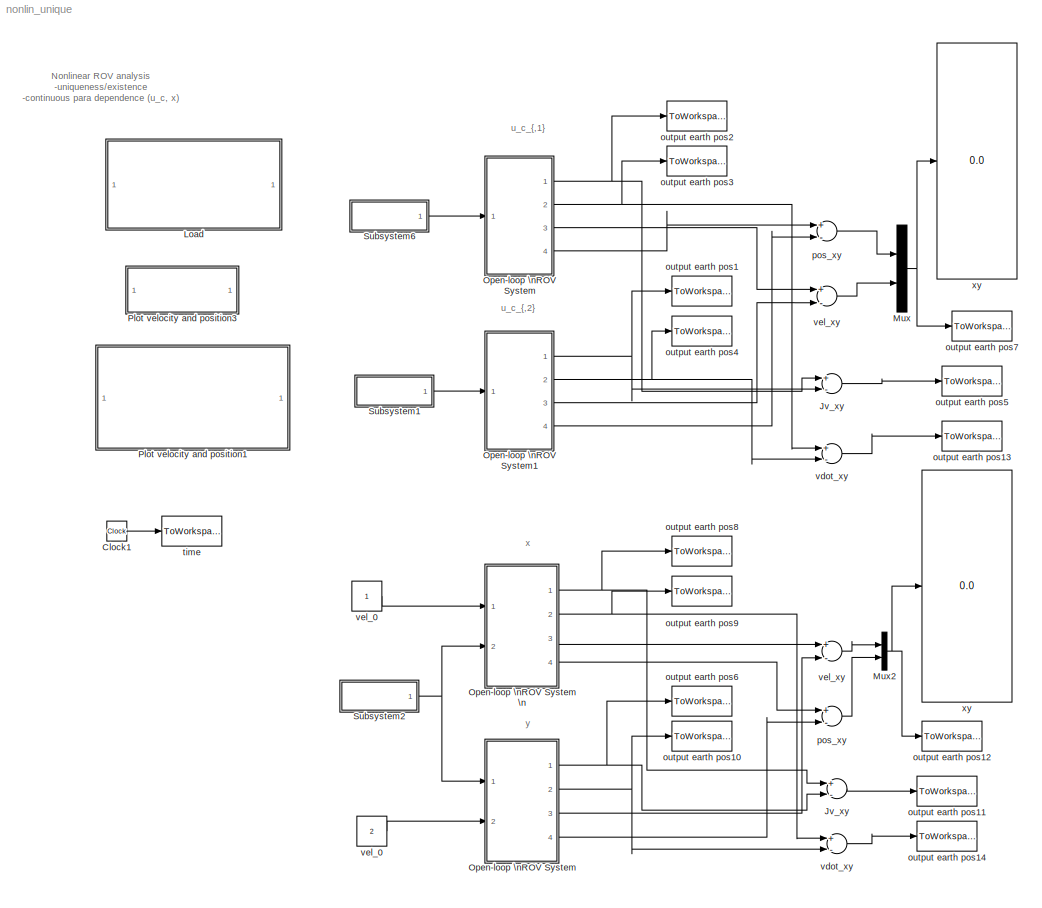
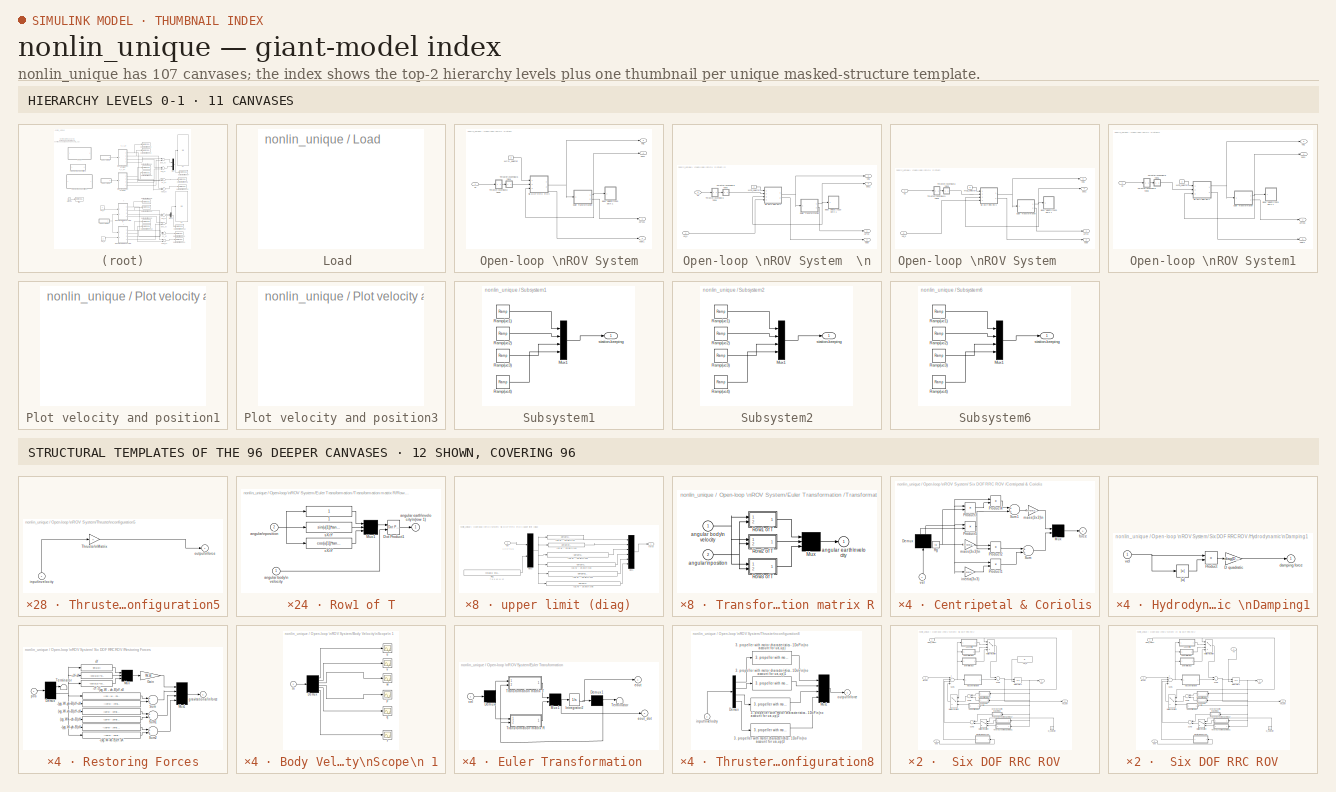
[diagram: thumbnail index - top-2 hierarchy levels (11 canvases) + 12 structural-template representatives of the remaining 96 canvases]
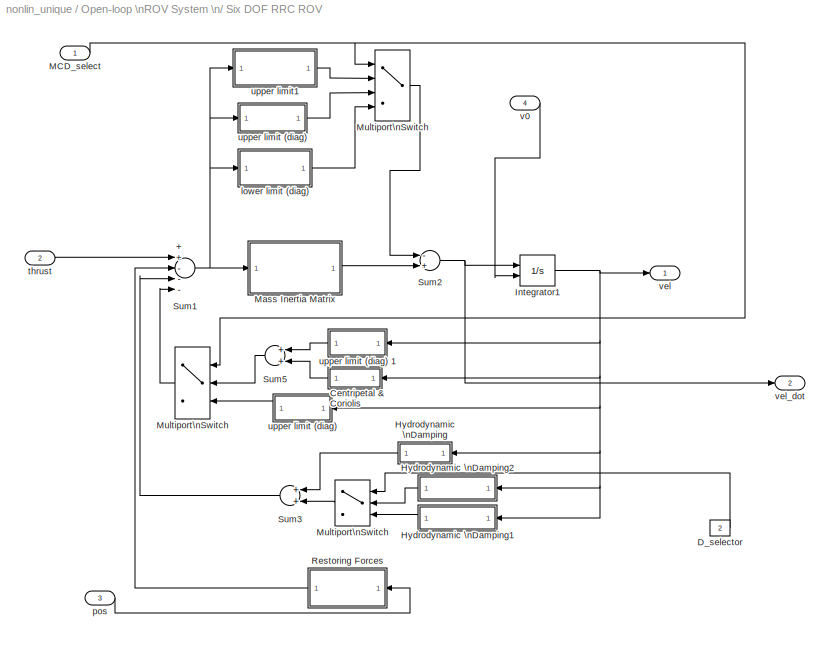
MODEL nonlin_unique
KIND model
BLOCK [SubSystem]  Load  
  AncestorBlock = rov_design_analysis/ROV Controller\nDesign\nApplications/ Load RRCROV2 parameters
  MaskDisplay = disp('Double-click \\n to \\n Load the\\n RRCROV2\\n parameters')
  MaskIconFrame = on
  MaskIconOpaque = on
  MaskIconRotate = none
  MaskIconUnits = autoscale
  MinAlgLoopOccurrences = off
  OpenFcn = clc                                                  \ncd <path> ;\nload rrcrovf;                                        \ncd <path> ;
  Ports = []
  RTWSystemCode = Auto
  TreatAsAtomicUnit = off
BLOCK [Clock] Clock1
  Decimation = 10
BLOCK [Sum] Jv_xy
  Inputs = +-
  Ports = [2, 1]
BLOCK [Sum] Jv_xy 
  Inputs = +-
  Ports = [2, 1]
BLOCK [Mux] Mux
  DisplayOption = bar
  Inputs = 2
  Ports = [2, 1]
BLOCK [Mux] Mux2
  DisplayOption = bar
  Inputs = 2
  Ports = [2, 1]
BLOCK [SubSystem] Open-loop \nROV System
  MinAlgLoopOccurrences = off
  Ports = [1, 4]
  RTWSystemCode = Auto
  TreatAsAtomicUnit = off
BLOCK [SubSystem] Open-loop \nROV System     
  MinAlgLoopOccurrences = off
  Ports = [2, 4]
  RTWSystemCode = Auto
  TreatAsAtomicUnit = off
BLOCK [SubSystem] Open-loop \nROV System     / Six DOF RRC ROV   
  MaskDisplay = disp('ROV')\nimage(imread('/rov_design_analysis/fig/ROVRRC2.jpg'));\ncolor('white');port_label('input',2,'thrust')\ncolor('white');port_label('input',1,'MCD_select')\ncolor('white');port_label('input',3,'pos')\ncolor('white');port_label('output',1,'vel')\ncolor('white');port_label('output',2,'vel_dot')  <repeated x4 — deduplicated; at blocks: Six DOF RRC ROV>
  MaskIconFrame = on
  MaskIconOpaque = off
  MaskIconRotate = none
  MaskIconUnits = autoscale
  MinAlgLoopOccurrences = off
  Ports = [4, 2]
  RTWSystemCode = Auto
  TreatAsAtomicUnit = off
BLOCK [SubSystem] Open-loop \nROV System     / Six DOF RRC ROV   /Centripetal & Coriolis
  AncestorBlock = rov_design_analysis/ROV\nModels/1. Six DOF RRC ROV II/Centripetal & Coriolis
  MaskDisplay = disp('C')
  MaskIconFrame = on
  MaskIconOpaque = on
  MaskIconRotate = none
  MaskIconUnits = autoscale
  MinAlgLoopOccurrences = off
  Ports = [1, 1]
  RTWSystemCode = Auto
  TreatAsAtomicUnit = off
BLOCK [Demux] Open-loop \nROV System     / Six DOF RRC ROV   /Centripetal & Coriolis/Demux
  Outputs = 2
  Ports = [1, 2]
BLOCK [Mux] Open-loop \nROV System     / Six DOF RRC ROV   /Centripetal & Coriolis/Mux
  Inputs = 2
  Ports = [2, 1]
BLOCK [Product] Open-loop \nROV System     / Six DOF RRC ROV   /Centripetal & Coriolis/Product1
  Ports = [2, 1]
BLOCK [Product] Open-loop \nROV System     / Six DOF RRC ROV   /Centripetal & Coriolis/Product2
  Ports = [2, 1]
BLOCK [Product] Open-loop \nROV System     / Six DOF RRC ROV   /Centripetal & Coriolis/Product3
  Ports = [2, 1]
BLOCK [Product] Open-loop \nROV System     / Six DOF RRC ROV   /Centripetal & Coriolis/Product4
  Ports = [2, 1]
BLOCK [Product] Open-loop \nROV System     / Six DOF RRC ROV   /Centripetal & Coriolis/Product5
  Ports = [2, 1]
BLOCK [Constant] Open-loop \nROV System     / Six DOF RRC ROV   /Centripetal & Coriolis/Rg
  Value = rg
BLOCK [Sum] Open-loop \nROV System     / Six DOF RRC ROV   /Centripetal & Coriolis/Sum
  Ports = [2, 1]
BLOCK [Sum] Open-loop \nROV System     / Six DOF RRC ROV   /Centripetal & Coriolis/Sum1
  Ports = [2, 1]
BLOCK [Outport] Open-loop \nROV System     / Six DOF RRC ROV   /Centripetal & Coriolis/force
  BusOutputAsStruct = off
  IconDisplay = Port number
  InitialOutput = 0
BLOCK [Gain] Open-loop \nROV System     / Six DOF RRC ROV   /Centripetal & Coriolis/inertia(3x3)
  Gain = I*eye(3)+[Xudot 0 0;0 Yvdot 0;0 0 Zwdot]
  Multiplication = Matrix(K*u)
BLOCK [Gain] Open-loop \nROV System     / Six DOF RRC ROV   /Centripetal & Coriolis/mass(3x3)\n
  Gain = m*eye(3)+[Xudot 0 0;0 Yvdot 0;0 0 Zwdot]
  Multiplication = Matrix(K*u)
BLOCK [Gain] Open-loop \nROV System     / Six DOF RRC ROV   /Centripetal & Coriolis/mass(3x3)\n  
  Gain = m*eye(3)+[Xudot 0 0;0 Yvdot 0;0 0 Zwdot]
  Multiplication = Matrix(K*u)
BLOCK [Inport] Open-loop \nROV System     / Six DOF RRC ROV   /Centripetal & Coriolis/vel
  IconDisplay = Port number
  LatchInput = off
  Port = 1
BLOCK [Constant] Open-loop \nROV System     / Six DOF RRC ROV   /D_selector
  Value = 2
BLOCK [SubSystem] Open-loop \nROV System     / Six DOF RRC ROV   /Hydrodynamic \nDamping
  MaskDisplay = disp('D')
  MaskIconFrame = on
  MaskIconOpaque = on
  MaskIconRotate = none
  MaskIconUnits = autoscale
  MinAlgLoopOccurrences = off
  Ports = [1, 1]
  RTWSystemCode = Auto
  TreatAsAtomicUnit = off
BLOCK [Gain] Open-loop \nROV System     / Six DOF RRC ROV   /Hydrodynamic \nDamping/D linear
  Gain = -diag(DQL)
BLOCK [Outport] Open-loop \nROV System     / Six DOF RRC ROV   /Hydrodynamic \nDamping/damping force
  BusOutputAsStruct = off
  IconDisplay = Port number
  InitialOutput = 0
BLOCK [Inport] Open-loop \nROV System     / Six DOF RRC ROV   /Hydrodynamic \nDamping/vel
  IconDisplay = Port number
  LatchInput = off
  Port = 1
BLOCK [SubSystem] Open-loop \nROV System     / Six DOF RRC ROV   /Hydrodynamic \nDamping1
  MaskDisplay = disp('perturb \\nDamping')
  MaskIconFrame = on
  MaskIconOpaque = on
  MaskIconRotate = none
  MaskIconUnits = autoscale
  MinAlgLoopOccurrences = off
  Ports = [1, 1]
  RTWSystemCode = Auto
  TreatAsAtomicUnit = off
BLOCK [Gain] Open-loop \nROV System     / Six DOF RRC ROV   /Hydrodynamic \nDamping1/D quadratic
  Gain = -diag(DQ)
BLOCK [Product] Open-loop \nROV System     / Six DOF RRC ROV   /Hydrodynamic \nDamping1/Product
  Ports = [2, 1]
BLOCK [Outport] Open-loop \nROV System     / Six DOF RRC ROV   /Hydrodynamic \nDamping1/damping force
  BusOutputAsStruct = off
  IconDisplay = Port number
  InitialOutput = 0
BLOCK [Inport] Open-loop \nROV System     / Six DOF RRC ROV   /Hydrodynamic \nDamping1/vel
  IconDisplay = Port number
  LatchInput = off
  Port = 1
BLOCK [Abs] Open-loop \nROV System     / Six DOF RRC ROV   /Hydrodynamic \nDamping1/|u|
BLOCK [SubSystem] Open-loop \nROV System     / Six DOF RRC ROV   /Hydrodynamic \nDamping2
  MaskDisplay = disp('Zero Perturb')
  MaskIconFrame = on
  MaskIconOpaque = on
  MaskIconRotate = none
  MaskIconUnits = autoscale
  MinAlgLoopOccurrences = off
  Ports = [1, 1]
  RTWSystemCode = Auto
  TreatAsAtomicUnit = off
BLOCK [Gain] Open-loop \nROV System     / Six DOF RRC ROV   /Hydrodynamic \nDamping2/D quadratic
  Gain = 0
BLOCK [Outport] Open-loop \nROV System     / Six DOF RRC ROV   /Hydrodynamic \nDamping2/damping force
  BusOutputAsStruct = off
  IconDisplay = Port number
  InitialOutput = 0
BLOCK [Inport] Open-loop \nROV System     / Six DOF RRC ROV   /Hydrodynamic \nDamping2/vel
  IconDisplay = Port number
  LatchInput = off
  Port = 1
BLOCK [Integrator] Open-loop \nROV System     / Six DOF RRC ROV   /Integrator1
  InitialConditionSource = external
  Ports = [2, 1]
BLOCK [Inport] Open-loop \nROV System     / Six DOF RRC ROV   /MCD_select
  IconDisplay = Port number
  LatchInput = off
  Port = 1
BLOCK [SubSystem] Open-loop \nROV System     / Six DOF RRC ROV   /Mass Inertia Matrix
  MaskDisplay = disp('inv(MRB+MA)')
  MaskIconFrame = on
  MaskIconOpaque = on
  MaskIconRotate = none
  MaskIconUnits = autoscale
  MinAlgLoopOccurrences = off
  Ports = [1, 1]
  RTWSystemCode = Auto
  TreatAsAtomicUnit = off
BLOCK [Inport] Open-loop \nROV System     / Six DOF RRC ROV   /Mass Inertia Matrix/In
  IconDisplay = Port number
  LatchInput = off
  Port = 1
BLOCK [Outport] Open-loop \nROV System     / Six DOF RRC ROV   /Mass Inertia Matrix/Out
  BusOutputAsStruct = off
  IconDisplay = Port number
BLOCK [Gain] Open-loop \nROV System     / Six DOF RRC ROV   /Mass Inertia Matrix/inverse M
  Gain = inv(M-Ma)
  Multiplication = Matrix(K*u)
BLOCK [MultiPortSwitch] Open-loop \nROV System     / Six DOF RRC ROV   /Multiport\nSwitch
  InputSameDT = off
  Inputs = 3
  Ports = [4, 1]
  SaturateOnIntegerOverflow = off
BLOCK [MultiPortSwitch] Open-loop \nROV System     / Six DOF RRC ROV   /Multiport\nSwitch  
  InputSameDT = off
  Inputs = 2
  Ports = [3, 1]
  SaturateOnIntegerOverflow = off
BLOCK [MultiPortSwitch] Open-loop \nROV System     / Six DOF RRC ROV   /Multiport\nSwitch    
  InputSameDT = off
  Inputs = 2
  Ports = [3, 1]
  SaturateOnIntegerOverflow = off
BLOCK [SubSystem] Open-loop \nROV System     / Six DOF RRC ROV   /Restoring Forces
  MaskDisplay = disp('Restoring\\nForce')
  MaskIconFrame = on
  MaskIconOpaque = on
  MaskIconRotate = none
  MaskIconUnits = autoscale
  MinAlgLoopOccurrences = off
  Ports = [1, 1]
  RTWSystemCode = Auto
  TreatAsAtomicUnit = off
BLOCK [Fcn] Open-loop \nROV System     / Six DOF RRC ROV   /Restoring Forces/(xg.W-xb.B)cY.cX
  Expr = (xg*W - xb*B)*cos(u[2])*cos(u[1])
BLOCK [Fcn] Open-loop \nROV System     / Six DOF RRC ROV   /Restoring Forces/(zg.W - zb.B)cY.sX
  Expr = ((zg * W - zb * B) * cos(u[2])) * sin(u[1])
BLOCK [Fcn] Open-loop \nROV System     / Six DOF RRC ROV   /Restoring Forces/(zg.W - zb.B)sY
  Expr = (zg*W - zb*B)*sin(u[2])
BLOCK [Fcn] Open-loop \nROV System     / Six DOF RRC ROV   /Restoring Forces/-(xg.W-xb.B)cY.sX
  Expr = -(xg*W - xb*B)*cos(u[2])*sin(u[1])
BLOCK [Fcn] Open-loop \nROV System     / Six DOF RRC ROV   /Restoring Forces/-(yg.W-yb.B)cY.cX
  Expr = -(yg*W - yb*B)*cos(u[2])*cos(u[1])
BLOCK [Fcn] Open-loop \nROV System     / Six DOF RRC ROV   /Restoring Forces/-(yg.W-yb.B)sY
  Expr = -(yg*W - yb*B)*sin(u[2])
BLOCK [Fcn] Open-loop \nROV System     / Six DOF RRC ROV   /Restoring Forces/-cY.cX
  Expr = -cos(u[2])*cos(u[1])
BLOCK [Fcn] Open-loop \nROV System     / Six DOF RRC ROV   /Restoring Forces/-cY.sX
  Expr = -cos(u[2])*sin(u[1])
BLOCK [Demux] Open-loop \nROV System     / Six DOF RRC ROV   /Restoring Forces/Demux
  Outputs = 2
  Ports = [1, 2]
BLOCK [Gain] Open-loop \nROV System     / Six DOF RRC ROV   /Restoring Forces/Gain
  Gain = W-B
BLOCK [Mux] Open-loop \nROV System     / Six DOF RRC ROV   /Restoring Forces/Mux
  Inputs = 3
  Ports = [3, 1]
BLOCK [Mux] Open-loop \nROV System     / Six DOF RRC ROV   /Restoring Forces/Mux1
  Ports = [4, 1]
BLOCK [Sum] Open-loop \nROV System     / Six DOF RRC ROV   /Restoring Forces/Sum
  Ports = [2, 1]
BLOCK [Sum] Open-loop \nROV System     / Six DOF RRC ROV   /Restoring Forces/Sum1
  Ports = [2, 1]
BLOCK [Sum] Open-loop \nROV System     / Six DOF RRC ROV   /Restoring Forces/Sum2
  Ports = [2, 1]
BLOCK [Terminator] Open-loop \nROV System     / Six DOF RRC ROV   /Restoring Forces/Terminator
BLOCK [Outport] Open-loop \nROV System     / Six DOF RRC ROV   /Restoring Forces/gravitational\nforce
  BusOutputAsStruct = off
  IconDisplay = Port number
  InitialOutput = 0
BLOCK [Inport] Open-loop \nROV System     / Six DOF RRC ROV   /Restoring Forces/pos
  IconDisplay = Port number
  LatchInput = off
  Port = 1
BLOCK [Fcn] Open-loop \nROV System     / Six DOF RRC ROV   /Restoring Forces/sY
  Expr = sin(u[2])
BLOCK [Sum] Open-loop \nROV System     / Six DOF RRC ROV   /Sum1
  Inputs = ++---
  Ports = [5, 1]
BLOCK [Sum] Open-loop \nROV System     / Six DOF RRC ROV   /Sum2
  Inputs = -+
  Ports = [2, 1]
BLOCK [Sum] Open-loop \nROV System     / Six DOF RRC ROV   /Sum3
  Ports = [2, 1]
BLOCK [Sum] Open-loop \nROV System     / Six DOF RRC ROV   /Sum5
  Ports = [2, 1]
BLOCK [SubSystem] Open-loop \nROV System     / Six DOF RRC ROV   /lower limit (diag)
  MaskDisplay = disp('Perturb MA')
  MaskIconFrame = on
  MaskIconOpaque = on
  MaskIconRotate = none
  MaskIconUnits = autoscale
  MinAlgLoopOccurrences = off
  Ports = [1, 1]
  RTWSystemCode = Auto
  TreatAsAtomicUnit = off
BLOCK [Inport] Open-loop \nROV System     / Six DOF RRC ROV   /lower limit (diag)/In
  IconDisplay = Port number
  LatchInput = off
  Port = 1
BLOCK [Outport] Open-loop \nROV System     / Six DOF RRC ROV   /lower limit (diag)/Out
  BusOutputAsStruct = off
  IconDisplay = Port number
BLOCK [Gain] Open-loop \nROV System     / Six DOF RRC ROV   /lower limit (diag)/inverse M
  Gain = -diag([21.1403-21.0981 51.7012-51.0026 92.451-91.837 3.6191-3.576 2.6427-2.7687 2.3033-2.3493])
  Multiplication = Matrix(K*u)
BLOCK [Inport] Open-loop \nROV System     / Six DOF RRC ROV   /pos 
  IconDisplay = Port number
  LatchInput = off
  Port = 3
BLOCK [Inport] Open-loop \nROV System     / Six DOF RRC ROV   /thrust 
  IconDisplay = Port number
  LatchInput = off
  Port = 2
BLOCK [SubSystem] Open-loop \nROV System     / Six DOF RRC ROV   /upper limit (diag)
  MaskDisplay = disp('Perturb MA')
  MaskIconFrame = on
  MaskIconOpaque = on
  MaskIconRotate = none
  MaskIconUnits = autoscale
  MinAlgLoopOccurrences = off
  Ports = [1, 1]
  RTWSystemCode = Auto
  TreatAsAtomicUnit = off
BLOCK [SubSystem] Open-loop \nROV System     / Six DOF RRC ROV   /upper limit (diag)   
  MaskDisplay = disp('Perturb CA')
  MaskIconFrame = on
  MaskIconOpaque = on
  MaskIconRotate = none
  MaskIconUnits = autoscale
  MinAlgLoopOccurrences = off
  Ports = [1, 1]
  RTWSystemCode = Auto
  TreatAsAtomicUnit = off
BLOCK [Fcn] Open-loop \nROV System     / Six DOF RRC ROV   /upper limit (diag)   /(zg.W - zb.B)cY.sX
  Expr = -u[9]*u[3]*u[5]+u[8]*u[2]*u[6]
BLOCK [Fcn] Open-loop \nROV System     / Six DOF RRC ROV   /upper limit (diag)   /(zg.W - zb.B)cY.sX1
  Expr = u[9]*u[3]*u[4]-u[7]*u[1]*u[6]
BLOCK [Fcn] Open-loop \nROV System     / Six DOF RRC ROV   /upper limit (diag)   /(zg.W - zb.B)cY.sX2
  Expr = -u[8]*u[2]*u[4]+u[7]*u[1]*u[5]
BLOCK [Fcn] Open-loop \nROV System     / Six DOF RRC ROV   /upper limit (diag)   /(zg.W - zb.B)cY.sX3
  Expr = -u[9]*u[3]*u[2]+u[8]*u[2]*u[3]-u[12]*u[6]*u[5]+u[11]*u[5]*u[6]
BLOCK [Fcn] Open-loop \nROV System     / Six DOF RRC ROV   /upper limit (diag)   /(zg.W - zb.B)cY.sX4
  Expr = u[9]*u[3]*u[1]-u[7]*u[1]*u[3]+u[6]*u[12]*u[4]-u[4]*u[10]*u[6]
BLOCK [Fcn] Open-loop \nROV System     / Six DOF RRC ROV   /upper limit (diag)   /(zg.W - zb.B)cY.sX5
  Expr = -u[8]*u[2]*u[1]+u[7]*u[1]*u[2]-u[11]*u[5]*u[4]+u[10]*u[4]*u[5]
BLOCK [Mux] Open-loop \nROV System     / Six DOF RRC ROV   /upper limit (diag)   /Mux1
  Inputs = 6
  Ports = [6, 1]
BLOCK [Mux] Open-loop \nROV System     / Six DOF RRC ROV   /upper limit (diag)   /Mux3
  Inputs = 2
  Ports = [2, 1]
BLOCK [Constant] Open-loop \nROV System     / Six DOF RRC ROV   /upper limit (diag)   /Rg1
  Value = [MaU(1)  MaU(2)  MaU(3)  MaU(4)  MaU(5)  MaU(6) ]'
BLOCK [Outport] Open-loop \nROV System     / Six DOF RRC ROV   /upper limit (diag)   /force
  BusOutputAsStruct = off
  IconDisplay = Port number
BLOCK [Inport] Open-loop \nROV System     / Six DOF RRC ROV   /upper limit (diag)   /vel
  IconDisplay = Port number
  LatchInput = off
  Port = 1
BLOCK [SubSystem] Open-loop \nROV System     / Six DOF RRC ROV   /upper limit (diag)   1
  MaskDisplay = disp('CA')
  MaskIconFrame = on
  MaskIconOpaque = on
  MaskIconRotate = none
  MaskIconUnits = autoscale
  MinAlgLoopOccurrences = off
  Ports = [1, 1]
  RTWSystemCode = Auto
  TreatAsAtomicUnit = off
BLOCK [Fcn] Open-loop \nROV System     / Six DOF RRC ROV   /upper limit (diag)   1/(zg.W - zb.B)cY.sX
  Expr = -u[9]*u[3]*u[5]+u[8]*u[2]*u[6]
BLOCK [Fcn] Open-loop \nROV System     / Six DOF RRC ROV   /upper limit (diag)   1/(zg.W - zb.B)cY.sX1
  Expr = u[9]*u[3]*u[4]-u[7]*u[1]*u[6]
BLOCK [Fcn] Open-loop \nROV System     / Six DOF RRC ROV   /upper limit (diag)   1/(zg.W - zb.B)cY.sX2
  Expr = -u[8]*u[2]*u[4]+u[7]*u[1]*u[5]
BLOCK [Fcn] Open-loop \nROV System     / Six DOF RRC ROV   /upper limit (diag)   1/(zg.W - zb.B)cY.sX3
  Expr = -u[9]*u[3]*u[2]+u[8]*u[2]*u[3]-u[12]*u[6]*u[5]+u[11]*u[5]*u[6]
BLOCK [Fcn] Open-loop \nROV System     / Six DOF RRC ROV   /upper limit (diag)   1/(zg.W - zb.B)cY.sX4
  Expr = u[9]*u[3]*u[1]-u[7]*u[1]*u[3]+u[6]*u[12]*u[4]-u[4]*u[10]*u[6]
BLOCK [Fcn] Open-loop \nROV System     / Six DOF RRC ROV   /upper limit (diag)   1/(zg.W - zb.B)cY.sX5
  Expr = -u[8]*u[2]*u[1]+u[7]*u[1]*u[2]-u[11]*u[5]*u[4]+u[10]*u[4]*u[5]
BLOCK [Mux] Open-loop \nROV System     / Six DOF RRC ROV   /upper limit (diag)   1/Mux1
  Inputs = 6
  Ports = [6, 1]
BLOCK [Mux] Open-loop \nROV System     / Six DOF RRC ROV   /upper limit (diag)   1/Mux3
  Inputs = 2
  Ports = [2, 1]
BLOCK [Constant] Open-loop \nROV System     / Six DOF RRC ROV   /upper limit (diag)   1/Rg1
  Value = [Ma(1)  Ma(2)  Ma(3)  Ma(4)  Ma(5)  Ma(6) ]'
BLOCK [Outport] Open-loop \nROV System     / Six DOF RRC ROV   /upper limit (diag)   1/force
  BusOutputAsStruct = off
  IconDisplay = Port number
BLOCK [Inport] Open-loop \nROV System     / Six DOF RRC ROV   /upper limit (diag)   1/vel
  IconDisplay = Port number
  LatchInput = off
  Port = 1
BLOCK [Inport] Open-loop \nROV System     / Six DOF RRC ROV   /upper limit (diag)/In
  IconDisplay = Port number
  LatchInput = off
  Port = 1
BLOCK [Outport] Open-loop \nROV System     / Six DOF RRC ROV   /upper limit (diag)/Out
  BusOutputAsStruct = off
  IconDisplay = Port number
BLOCK [Gain] Open-loop \nROV System     / Six DOF RRC ROV   /upper limit (diag)/inverse M
  Gain = -diag([21.724-21.1403 51.7013-51.7012 94.3-92.451 4.2176-3.6191 7.1148-2.6427 4.7673-2.3033])
  Multiplication = Matrix(K*u)
BLOCK [SubSystem] Open-loop \nROV System     / Six DOF RRC ROV   /upper limit1
  MaskDisplay = disp('Zero Perturb')
  MaskIconFrame = on
  MaskIconOpaque = on
  MaskIconRotate = none
  MaskIconUnits = autoscale
  MinAlgLoopOccurrences = off
  Ports = [1, 1]
  RTWSystemCode = Auto
  TreatAsAtomicUnit = off
BLOCK [Inport] Open-loop \nROV System     / Six DOF RRC ROV   /upper limit1/In
  IconDisplay = Port number
  LatchInput = off
  Port = 1
BLOCK [Outport] Open-loop \nROV System     / Six DOF RRC ROV   /upper limit1/Out
  BusOutputAsStruct = off
  IconDisplay = Port number
BLOCK [Gain] Open-loop \nROV System     / Six DOF RRC ROV   /upper limit1/inverse M
  Gain = 0
  Multiplication = Matrix(K*u)
BLOCK [Inport] Open-loop \nROV System     / Six DOF RRC ROV   /v0
  IconDisplay = Port number
  LatchInput = off
  Port = 4
BLOCK [Outport] Open-loop \nROV System     / Six DOF RRC ROV   /vel
  BusOutputAsStruct = off
  IconDisplay = Port number
BLOCK [Outport] Open-loop \nROV System     / Six DOF RRC ROV   /vel_dot
  BusOutputAsStruct = off
  IconDisplay = Port number
  Port = 2
BLOCK [SubSystem] Open-loop \nROV System     /Body Velocity\nScope\n 1
  AncestorBlock = rov_design_analysis/Scope\nUtilities/Body Velocity\nScope\n
  MaskDisplay = disp('Body\\nVelocity\\nScope')
  MaskIconFrame = on
  MaskIconOpaque = on
  MaskIconRotate = none
  MaskIconUnits = autoscale
  MinAlgLoopOccurrences = off
  Ports = [1]
  RTWSystemCode = Auto
  TreatAsAtomicUnit = off
BLOCK [Demux] Open-loop \nROV System     /Body Velocity\nScope\n 1/Demux
  Outputs = 6
  Ports = [1, 6]
BLOCK [Inport] Open-loop \nROV System     /Body Velocity\nScope\n 1/In
  IconDisplay = Port number
  LatchInput = off
  Port = 1
BLOCK [Scope] Open-loop \nROV System     /Body Velocity\nScope\n 1/p
  DataFormat = Array
  NumInputPorts = 1
  Ports = [1]
  TickLabels = on
  YMax = 0.2
  YMin = -0.125
BLOCK [Scope] Open-loop \nROV System     /Body Velocity\nScope\n 1/q
  DataFormat = Array
  NumInputPorts = 1
  Ports = [1]
  TickLabels = on
  TimeRange = 200
  YMax = 0.15
  YMin = -0.05
BLOCK [Scope] Open-loop \nROV System     /Body Velocity\nScope\n 1/r
  DataFormat = Array
  NumInputPorts = 1
  Ports = [1]
  TickLabels = on
  TimeRange = 200
  YMax = 0.15
  YMin = -0.05
BLOCK [Scope] Open-loop \nROV System     /Body Velocity\nScope\n 1/u
  DataFormat = Array
  NumInputPorts = 1
  Ports = [1]
  TickLabels = on
  TimeRange = 50
  YMax = 0.375
  YMin = -0.025
BLOCK [Scope] Open-loop \nROV System     /Body Velocity\nScope\n 1/v
  DataFormat = Array
  NumInputPorts = 1
  Ports = [1]
  TickLabels = on
  YMax = 0.1
  YMin = -0.02
BLOCK [Scope] Open-loop \nROV System     /Body Velocity\nScope\n 1/w
  DataFormat = Array
  NumInputPorts = 1
  Ports = [1]
  TickLabels = on
  TimeRange = 50
  YMax = 0.0375
  YMin = -0.0025
  ZoomMode = yonly
BLOCK [SubSystem] Open-loop \nROV System     /Euler Transformation  
  AncestorBlock = rov_design_analysis/Scope\nUtilities/Euler Transformation
  MinAlgLoopOccurrences = off
  Ports = [1, 2]
  RTWSystemCode = Auto
  TreatAsAtomicUnit = off
BLOCK [Demux] Open-loop \nROV System     /Euler Transformation  /Demux
  Outputs = 2
  Ports = [1, 2]
BLOCK [Demux] Open-loop \nROV System     /Euler Transformation  /Demux1
  Outputs = 2
  Ports = [1, 2]
BLOCK [Integrator] Open-loop \nROV System     /Euler Transformation  /Intregrator2
  Ports = [1, 1]
BLOCK [Outport] Open-loop \nROV System     /Euler Transformation  /Ja*va
  BusOutputAsStruct = off
  IconDisplay = Port number
  InitialOutput = 0
  Port = 2
BLOCK [Mux] Open-loop \nROV System     /Euler Transformation  /Mux1
  Inputs = 2
  Ports = [2, 1]
BLOCK [Terminator] Open-loop \nROV System     /Euler Transformation  /Terminator
BLOCK [SubSystem] Open-loop \nROV System     /Euler Transformation  /Transformation matrix R
  MaskDisplay = disp('Transformation R')
  MaskIconFrame = on
  MaskIconOpaque = on
  MaskIconRotate = none
  MaskIconUnits = autoscale
  MinAlgLoopOccurrences = off
  Ports = [2, 1]
  RTWSystemCode = Auto
  TreatAsAtomicUnit = off
BLOCK [Mux] Open-loop \nROV System     /Euler Transformation  /Transformation matrix R/Mux
  Inputs = 3
  Ports = [3, 1]
BLOCK [SubSystem] Open-loop \nROV System     /Euler Transformation  /Transformation matrix R/Row1 of T
  MaskDisplay = disp('Row 1')
  MaskIconFrame = on
  MaskIconOpaque = on
  MaskIconRotate = none
  MaskIconUnits = autoscale
  MinAlgLoopOccurrences = off
  Ports = [2, 1]
  RTWSystemCode = Auto
  TreatAsAtomicUnit = off
BLOCK [Fcn] Open-loop \nROV System     /Euler Transformation  /Transformation matrix R/Row1 of T/1
  Expr = 1
BLOCK [Reference] Open-loop \nROV System     /Euler Transformation  /Transformation matrix R/Row1 of T/Dot Product1  REF=simulink/Math\nOperations/Dot Product
  DoSatur = off
  InputSameDT = on
  LockScale = off
  OutDataType = sfix(16)
  OutScaling = 2^-10
  OutputDataTypeScalingMode = Inherit via internal rule
  Ports = [2, 1]
  RndMeth = Floor
  SourceBlock = simulink/Math\nOperations/Dot Product
  SourceType = Dot Product
BLOCK [Mux] Open-loop \nROV System     /Euler Transformation  /Transformation matrix R/Row1 of T/Mux1
  Inputs = 3
  Ports = [3, 1]
BLOCK [Inport] Open-loop \nROV System     /Euler Transformation  /Transformation matrix R/Row1 of T/angular body\n velocity
  IconDisplay = Port number
  LatchInput = off
  Port = 1
BLOCK [Outport] Open-loop \nROV System     /Euler Transformation  /Transformation matrix R/Row1 of T/angular earth\nvelocity\n(row 1)
  BusOutputAsStruct = off
  IconDisplay = Port number
BLOCK [Inport] Open-loop \nROV System     /Euler Transformation  /Transformation matrix R/Row1 of T/angular\nposition
  IconDisplay = Port number
  LatchInput = off
  Port = 2
BLOCK [Fcn] Open-loop \nROV System     /Euler Transformation  /Transformation matrix R/Row1 of T/cX.tY
  Expr = cos(u[1])*tan(u[2])
BLOCK [Fcn] Open-loop \nROV System     /Euler Transformation  /Transformation matrix R/Row1 of T/sX.tY
  Expr = sin(u[1])*tan(u[2])
BLOCK [SubSystem] Open-loop \nROV System     /Euler Transformation  /Transformation matrix R/Row2 of T
  MaskDisplay = disp('Row 2')
  MaskIconFrame = on
  MaskIconOpaque = on
  MaskIconRotate = none
  MaskIconUnits = autoscale
  MinAlgLoopOccurrences = off
  Ports = [2, 1]
  RTWSystemCode = Auto
  TreatAsAtomicUnit = off
BLOCK [Fcn] Open-loop \nROV System     /Euler Transformation  /Transformation matrix R/Row2 of T/-sX
  Expr = -sin(u[1])
BLOCK [Fcn] Open-loop \nROV System     /Euler Transformation  /Transformation matrix R/Row2 of T/0
  Expr = 0
BLOCK [Reference] Open-loop \nROV System     /Euler Transformation  /Transformation matrix R/Row2 of T/Dot Product1  REF=simulink/Math\nOperations/Dot Product
  DoSatur = off
  InputSameDT = on
  LockScale = off
  OutDataType = sfix(16)
  OutScaling = 2^-10
  OutputDataTypeScalingMode = Inherit via internal rule
  Ports = [2, 1]
  RndMeth = Floor
  SourceBlock = simulink/Math\nOperations/Dot Product
  SourceType = Dot Product
BLOCK [Mux] Open-loop \nROV System     /Euler Transformation  /Transformation matrix R/Row2 of T/Mux1
  Inputs = 3
  Ports = [3, 1]
BLOCK [Inport] Open-loop \nROV System     /Euler Transformation  /Transformation matrix R/Row2 of T/angular body\nvelocity\n
  IconDisplay = Port number
  LatchInput = off
  Port = 1
BLOCK [Outport] Open-loop \nROV System     /Euler Transformation  /Transformation matrix R/Row2 of T/angular earth\nvelocity\n(row 2)
  BusOutputAsStruct = off
  IconDisplay = Port number
BLOCK [Inport] Open-loop \nROV System     /Euler Transformation  /Transformation matrix R/Row2 of T/angular\nposition
  IconDisplay = Port number
  LatchInput = off
  Port = 2
BLOCK [Fcn] Open-loop \nROV System     /Euler Transformation  /Transformation matrix R/Row2 of T/cX
  Expr = cos(u[1])
BLOCK [SubSystem] Open-loop \nROV System     /Euler Transformation  /Transformation matrix R/Row3 of T
  MaskDisplay = disp('Row 3')
  MaskIconFrame = on
  MaskIconOpaque = on
  MaskIconRotate = none
  MaskIconUnits = autoscale
  MinAlgLoopOccurrences = off
  Ports = [2, 1]
  RTWSystemCode = Auto
  TreatAsAtomicUnit = off
BLOCK [Fcn] Open-loop \nROV System     /Euler Transformation  /Transformation matrix R/Row3 of T/1
  Expr = 0
BLOCK [Reference] Open-loop \nROV System     /Euler Transformation  /Transformation matrix R/Row3 of T/Dot Product1  REF=simulink/Math\nOperations/Dot Product
  DoSatur = off
  InputSameDT = on
  LockScale = off
  OutDataType = sfix(16)
  OutScaling = 2^-10
  OutputDataTypeScalingMode = Inherit via internal rule
  Ports = [2, 1]
  RndMeth = Floor
  SourceBlock = simulink/Math\nOperations/Dot Product
  SourceType = Dot Product
BLOCK [Mux] Open-loop \nROV System     /Euler Transformation  /Transformation matrix R/Row3 of T/Mux1
  Inputs = 3
  Ports = [3, 1]
BLOCK [Inport] Open-loop \nROV System     /Euler Transformation  /Transformation matrix R/Row3 of T/angular body\nvelocity\n
  IconDisplay = Port number
  LatchInput = off
  Port = 1
BLOCK [Outport] Open-loop \nROV System     /Euler Transformation  /Transformation matrix R/Row3 of T/angular earth\nvelocity\n(row 3)
  BusOutputAsStruct = off
  IconDisplay = Port number
BLOCK [Inport] Open-loop \nROV System     /Euler Transformation  /Transformation matrix R/Row3 of T/angular\nposition
  IconDisplay = Port number
  LatchInput = off
  Port = 2
BLOCK [Fcn] Open-loop \nROV System     /Euler Transformation  /Transformation matrix R/Row3 of T/cX//cY
  Expr = cos(u[1])/cos(u[2])
BLOCK [Fcn] Open-loop \nROV System     /Euler Transformation  /Transformation matrix R/Row3 of T/sX//cY
  Expr = sin(u[1])/cos(u[2])
BLOCK [Inport] Open-loop \nROV System     /Euler Transformation  /Transformation matrix R/angular body\n velocity
  IconDisplay = Port number
  LatchInput = off
  Port = 1
BLOCK [Outport] Open-loop \nROV System     /Euler Transformation  /Transformation matrix R/angular earth\nvelocity
  BusOutputAsStruct = off
  IconDisplay = Port number
BLOCK [Inport] Open-loop \nROV System     /Euler Transformation  /Transformation matrix R/angular\nposition
  IconDisplay = Port number
  LatchInput = off
  Port = 2
BLOCK [SubSystem] Open-loop \nROV System     /Euler Transformation  /Transformation matrix T
  MaskDisplay = disp('Transformation T')
  MaskIconFrame = on
  MaskIconOpaque = on
  MaskIconRotate = none
  MaskIconUnits = autoscale
  MinAlgLoopOccurrences = off
  Ports = [2, 1]
  RTWSystemCode = Auto
  TreatAsAtomicUnit = off
BLOCK [Mux] Open-loop \nROV System     /Euler Transformation  /Transformation matrix T/Mux
  Inputs = 3
  Ports = [3, 1]
BLOCK [SubSystem] Open-loop \nROV System     /Euler Transformation  /Transformation matrix T/Row1 of R
  MaskDisplay = disp('Row 1')
  MaskIconFrame = on
  MaskIconOpaque = on
  MaskIconRotate = none
  MaskIconUnits = autoscale
  MinAlgLoopOccurrences = off
  Ports = [2, 1]
  RTWSystemCode = Auto
  TreatAsAtomicUnit = off
BLOCK [Fcn] Open-loop \nROV System     /Euler Transformation  /Transformation matrix T/Row1 of R/-sZ.cX+cZ.sY.sX
  Expr = -sin(u[3])*cos(u[1]) + cos(u[3])*sin(u[2])*sin(u[1])
BLOCK [Reference] Open-loop \nROV System     /Euler Transformation  /Transformation matrix T/Row1 of R/Dot Product  REF=simulink/Math\nOperations/Dot Product
  DoSatur = off
  InputSameDT = on
  LockScale = off
  OutDataType = sfix(16)
  OutScaling = 2^-10
  OutputDataTypeScalingMode = Inherit via internal rule
  Ports = [2, 1]
  RndMeth = Floor
  SourceBlock = simulink/Math\nOperations/Dot Product
  SourceType = Dot Product
BLOCK [Mux] Open-loop \nROV System     /Euler Transformation  /Transformation matrix T/Row1 of R/Mux
  Inputs = 3
  Ports = [3, 1]
BLOCK [Inport] Open-loop \nROV System     /Euler Transformation  /Transformation matrix T/Row1 of R/angular\nposition
  IconDisplay = Port number
  LatchInput = off
  Port = 2
BLOCK [Fcn] Open-loop \nROV System     /Euler Transformation  /Transformation matrix T/Row1 of R/cY.cZ
  Expr = cos(u[3]) * cos(u[2])
BLOCK [Fcn] Open-loop \nROV System     /Euler Transformation  /Transformation matrix T/Row1 of R/sZ.sX+cZ.cX.sY
  Expr = sin(u[3])*sin(u[1]) + cos(u[3])*cos(u[1])*sin(u[2])
BLOCK [Inport] Open-loop \nROV System     /Euler Transformation  /Transformation matrix T/Row1 of R/translational\nbody velocity
  IconDisplay = Port number
  LatchInput = off
  Port = 1
BLOCK [Outport] Open-loop \nROV System     /Euler Transformation  /Transformation matrix T/Row1 of R/translational\nearth velocity\n(row 1)
  BusOutputAsStruct = off
  IconDisplay = Port number
BLOCK [SubSystem] Open-loop \nROV System     /Euler Transformation  /Transformation matrix T/Row2 of R
  MaskDisplay = disp('Row 2')
  MaskIconFrame = on
  MaskIconOpaque = on
  MaskIconRotate = none
  MaskIconUnits = autoscale
  MinAlgLoopOccurrences = off
  Ports = [2, 1]
  RTWSystemCode = Auto
  TreatAsAtomicUnit = off
BLOCK [Fcn] Open-loop \nROV System     /Euler Transformation  /Transformation matrix T/Row2 of R/-cZ.sX+sY.sZ.cX
  Expr = -cos(u[3])*sin(u[1]) + sin(u[2])*sin(u[3])*cos(u[1])
BLOCK [Reference] Open-loop \nROV System     /Euler Transformation  /Transformation matrix T/Row2 of R/Dot Product1  REF=simulink/Math\nOperations/Dot Product
  DoSatur = off
  InputSameDT = on
  LockScale = off
  OutDataType = sfix(16)
  OutScaling = 2^-10
  OutputDataTypeScalingMode = Inherit via internal rule
  Ports = [2, 1]
  RndMeth = Floor
  SourceBlock = simulink/Math\nOperations/Dot Product
  SourceType = Dot Product
BLOCK [Mux] Open-loop \nROV System     /Euler Transformation  /Transformation matrix T/Row2 of R/Mux1
  Inputs = 3
  Ports = [3, 1]
BLOCK [Inport] Open-loop \nROV System     /Euler Transformation  /Transformation matrix T/Row2 of R/angular\nposition
  IconDisplay = Port number
  LatchInput = off
  Port = 2
BLOCK [Fcn] Open-loop \nROV System     /Euler Transformation  /Transformation matrix T/Row2 of R/cY.sZ
  Expr = sin(u[3]) * cos(u[2])
BLOCK [Fcn] Open-loop \nROV System     /Euler Transformation  /Transformation matrix T/Row2 of R/cZ.cX+sX.sY.sZ
  Expr = cos(u[3])*cos(u[1]) + sin(u[1])*sin(u[2])*sin(u[3])
BLOCK [Inport] Open-loop \nROV System     /Euler Transformation  /Transformation matrix T/Row2 of R/translational\nbody velocity
  IconDisplay = Port number
  LatchInput = off
  Port = 1
BLOCK [Outport] Open-loop \nROV System     /Euler Transformation  /Transformation matrix T/Row2 of R/translational\nearth velocity\n(row 2)
  BusOutputAsStruct = off
  IconDisplay = Port number
BLOCK [SubSystem] Open-loop \nROV System     /Euler Transformation  /Transformation matrix T/Row3 of R
  MaskDisplay = disp('Row 3')
  MaskIconFrame = on
  MaskIconOpaque = on
  MaskIconRotate = none
  MaskIconUnits = autoscale
  MinAlgLoopOccurrences = off
  Ports = [2, 1]
  RTWSystemCode = Auto
  TreatAsAtomicUnit = off
BLOCK [Fcn] Open-loop \nROV System     /Euler Transformation  /Transformation matrix T/Row3 of R/-sY
  Expr = -sin(u[2])
BLOCK [Reference] Open-loop \nROV System     /Euler Transformation  /Transformation matrix T/Row3 of R/Dot Product1  REF=simulink/Math\nOperations/Dot Product
  DoSatur = off
  InputSameDT = on
  LockScale = off
  OutDataType = sfix(16)
  OutScaling = 2^-10
  OutputDataTypeScalingMode = Inherit via internal rule
  Ports = [2, 1]
  RndMeth = Floor
  SourceBlock = simulink/Math\nOperations/Dot Product
  SourceType = Dot Product
BLOCK [Mux] Open-loop \nROV System     /Euler Transformation  /Transformation matrix T/Row3 of R/Mux1
  Inputs = 3
  Ports = [3, 1]
BLOCK [Inport] Open-loop \nROV System     /Euler Transformation  /Transformation matrix T/Row3 of R/angular\nposition
  IconDisplay = Port number
  LatchInput = off
  Port = 2
BLOCK [Fcn] Open-loop \nROV System     /Euler Transformation  /Transformation matrix T/Row3 of R/cY.cX
  Expr = cos(u[2])*cos(u[1])
BLOCK [Fcn] Open-loop \nROV System     /Euler Transformation  /Transformation matrix T/Row3 of R/cY.sX
  Expr = cos(u[2])*sin(u[1])
BLOCK [Inport] Open-loop \nROV System     /Euler Transformation  /Transformation matrix T/Row3 of R/translational\nbody velocity
  IconDisplay = Port number
  LatchInput = off
  Port = 1
BLOCK [Outport] Open-loop \nROV System     /Euler Transformation  /Transformation matrix T/Row3 of R/translational\nearth velocity\n(row 3)
  BusOutputAsStruct = off
  IconDisplay = Port number
  InitialOutput = 0
BLOCK [Inport] Open-loop \nROV System     /Euler Transformation  /Transformation matrix T/angular\nposition
  IconDisplay = Port number
  LatchInput = off
  Port = 2
BLOCK [Inport] Open-loop \nROV System     /Euler Transformation  /Transformation matrix T/translational\nbody velocity
  IconDisplay = Port number
  LatchInput = off
  Port = 1
BLOCK [Outport] Open-loop \nROV System     /Euler Transformation  /Transformation matrix T/translational\nearth velocity
  BusOutputAsStruct = off
  IconDisplay = Port number
  InitialOutput = 0
BLOCK [Outport] Open-loop \nROV System     /Euler Transformation  /eout
  BusOutputAsStruct = off
  IconDisplay = Port number
  InitialOutput = 0
BLOCK [Inport] Open-loop \nROV System     /Euler Transformation  /vel
  IconDisplay = Port number
  LatchInput = off
  Port = 1
BLOCK [Outport] Open-loop \nROV System     /Ja*va
  BusOutputAsStruct = off
  IconDisplay = Port number
BLOCK [Constant] Open-loop \nROV System     /MCD_selector
  Value = 2
BLOCK [SubSystem] Open-loop \nROV System     /Thruster\nconfiguration5
  MaskDisplay = disp('T')
  MaskIconFrame = on
  MaskIconOpaque = on
  MaskIconRotate = none
  MaskIconUnits = autoscale
  MinAlgLoopOccurrences = off
  Ports = [1, 1]
  RTWSystemCode = Auto
  TreatAsAtomicUnit = off
BLOCK [Gain] Open-loop \nROV System     /Thruster\nconfiguration5/Thruster\nMatrix
  Gain = T
  Multiplication = Matrix(K*u)
BLOCK [Inport] Open-loop \nROV System     /Thruster\nconfiguration5/input\nvelocity
  IconDisplay = Port number
  LatchInput = off
  Port = 1
BLOCK [Outport] Open-loop \nROV System     /Thruster\nconfiguration5/output\nforce
  BusOutputAsStruct = off
  IconDisplay = Port number
  InitialOutput = 0
BLOCK [SubSystem] Open-loop \nROV System     /Thruster\nconfiguration8
  AncestorBlock = rov_design_analysis/ROV Controller\nDesign\nApplications/1. Heading autopilot/Thruster\nconfiguration
  MaskDisplay = disp('F_T')
  MaskIconFrame = on
  MaskIconOpaque = on
  MaskIconRotate = none
  MaskIconUnits = autoscale
  MinAlgLoopOccurrences = off
  Ports = [1, 1]
  RTWSystemCode = Auto
  TreatAsAtomicUnit = off
BLOCK [Reference] Open-loop \nROV System     /Thruster\nconfiguration8/3. propeller with motor characteristics - 1DoF\n(no account for ua,up)  REF=rov_design_analysis/Propeller\nModels/3. propeller with motor characteristics - 1DoF\n(no account for ua,up)
  Ports = [1, 2]
  ShowPortLabels = on
  SourceBlock = rov_design_analysis/Propeller\nModels/3. propeller with motor characteristics - 1DoF\n(no account for ua,up)
  SourceType = Propeller dynamic without considering axial velocity
BLOCK [Reference] Open-loop \nROV System     /Thruster\nconfiguration8/3. propeller with motor characteristics - 1DoF\n(no account for ua,up)1  REF=rov_design_analysis/Propeller\nModels/3. propeller with motor characteristics - 1DoF\n(no account for ua,up)
  Ports = [1, 2]
  ShowPortLabels = on
  SourceBlock = rov_design_analysis/Propeller\nModels/3. propeller with motor characteristics - 1DoF\n(no account for ua,up)
  SourceType = Propeller dynamic without considering axial velocity
BLOCK [Reference] Open-loop \nROV System     /Thruster\nconfiguration8/3. propeller with motor characteristics - 1DoF\n(no account for ua,up)2  REF=rov_design_analysis/Propeller\nModels/3. propeller with motor characteristics - 1DoF\n(no account for ua,up)
  Ports = [1, 2]
  ShowPortLabels = on
  SourceBlock = rov_design_analysis/Propeller\nModels/3. propeller with motor characteristics - 1DoF\n(no account for ua,up)
  SourceType = Propeller dynamic without considering axial velocity
BLOCK [Reference] Open-loop \nROV System     /Thruster\nconfiguration8/3. propeller with motor characteristics - 1DoF\n(no account for ua,up)3  REF=rov_design_analysis/Propeller\nModels/3. propeller with motor characteristics - 1DoF\n(no account for ua,up)
  Ports = [1, 2]
  ShowPortLabels = on
  SourceBlock = rov_design_analysis/Propeller\nModels/3. propeller with motor characteristics - 1DoF\n(no account for ua,up)
  SourceType = Propeller dynamic without considering axial velocity
BLOCK [Demux] Open-loop \nROV System     /Thruster\nconfiguration8/Demux
  DisplayOption = bar
  Ports = [1, 4]
BLOCK [Mux] Open-loop \nROV System     /Thruster\nconfiguration8/Mux1
  Ports = [4, 1]
BLOCK [Inport] Open-loop \nROV System     /Thruster\nconfiguration8/input\nvelocity
  IconDisplay = Port number
  LatchInput = off
  Port = 1
BLOCK [Outport] Open-loop \nROV System     /Thruster\nconfiguration8/output\nforce
  BusOutputAsStruct = off
  IconDisplay = Port number
  InitialOutput = 0
BLOCK [Outport] Open-loop \nROV System     /pos1
  BusOutputAsStruct = off
  IconDisplay = Port number
  Port = 4
BLOCK [Inport] Open-loop \nROV System     /uc
  IconDisplay = Port number
  LatchInput = off
  Port = 1
BLOCK [Outport] Open-loop \nROV System     /vdot
  BusOutputAsStruct = off
  IconDisplay = Port number
  Port = 2
BLOCK [Outport] Open-loop \nROV System     /vel1
  BusOutputAsStruct = off
  IconDisplay = Port number
  Port = 3
BLOCK [Inport] Open-loop \nROV System     /vel_o
  IconDisplay = Port number
  LatchInput = off
  Port = 2
BLOCK [SubSystem] Open-loop \nROV System  \n
  MinAlgLoopOccurrences = off
  Ports = [2, 4]
  RTWSystemCode = Auto
  TreatAsAtomicUnit = off
BLOCK [SubSystem] Open-loop \nROV System  \n/ Six DOF RRC ROV   
  MaskIconFrame = on
  MaskIconOpaque = off
  MaskIconRotate = none
  MaskIconUnits = autoscale
  MinAlgLoopOccurrences = off
  Ports = [4, 2]
  RTWSystemCode = Auto
  TreatAsAtomicUnit = off
BLOCK [SubSystem] Open-loop \nROV System  \n/ Six DOF RRC ROV   /Centripetal & Coriolis
  AncestorBlock = rov_design_analysis/ROV\nModels/1. Six DOF RRC ROV II/Centripetal & Coriolis
  MaskDisplay = disp('C')
  MaskIconFrame = on
  MaskIconOpaque = on
  MaskIconRotate = none
  MaskIconUnits = autoscale
  MinAlgLoopOccurrences = off
  Ports = [1, 1]
  RTWSystemCode = Auto
  TreatAsAtomicUnit = off
BLOCK [Demux] Open-loop \nROV System  \n/ Six DOF RRC ROV   /Centripetal & Coriolis/Demux
  Outputs = 2
  Ports = [1, 2]
BLOCK [Mux] Open-loop \nROV System  \n/ Six DOF RRC ROV   /Centripetal & Coriolis/Mux
  Inputs = 2
  Ports = [2, 1]
BLOCK [Product] Open-loop \nROV System  \n/ Six DOF RRC ROV   /Centripetal & Coriolis/Product1
  Ports = [2, 1]
BLOCK [Product] Open-loop \nROV System  \n/ Six DOF RRC ROV   /Centripetal & Coriolis/Product2
  Ports = [2, 1]
BLOCK [Product] Open-loop \nROV System  \n/ Six DOF RRC ROV   /Centripetal & Coriolis/Product3
  Ports = [2, 1]
BLOCK [Product] Open-loop \nROV System  \n/ Six DOF RRC ROV   /Centripetal & Coriolis/Product4
  Ports = [2, 1]
BLOCK [Product] Open-loop \nROV System  \n/ Six DOF RRC ROV   /Centripetal & Coriolis/Product5
  Ports = [2, 1]
BLOCK [Constant] Open-loop \nROV System  \n/ Six DOF RRC ROV   /Centripetal & Coriolis/Rg
  Value = rg
BLOCK [Sum] Open-loop \nROV System  \n/ Six DOF RRC ROV   /Centripetal & Coriolis/Sum
  Ports = [2, 1]
BLOCK [Sum] Open-loop \nROV System  \n/ Six DOF RRC ROV   /Centripetal & Coriolis/Sum1
  Ports = [2, 1]
BLOCK [Outport] Open-loop \nROV System  \n/ Six DOF RRC ROV   /Centripetal & Coriolis/force
  BusOutputAsStruct = off
  IconDisplay = Port number
  InitialOutput = 0
BLOCK [Gain] Open-loop \nROV System  \n/ Six DOF RRC ROV   /Centripetal & Coriolis/inertia(3x3)
  Gain = I*eye(3)+[Xudot 0 0;0 Yvdot 0;0 0 Zwdot]
  Multiplication = Matrix(K*u)
BLOCK [Gain] Open-loop \nROV System  \n/ Six DOF RRC ROV   /Centripetal & Coriolis/mass(3x3)\n
  Gain = m*eye(3)+[Xudot 0 0;0 Yvdot 0;0 0 Zwdot]
  Multiplication = Matrix(K*u)
BLOCK [Gain] Open-loop \nROV System  \n/ Six DOF RRC ROV   /Centripetal & Coriolis/mass(3x3)\n  
  Gain = m*eye(3)+[Xudot 0 0;0 Yvdot 0;0 0 Zwdot]
  Multiplication = Matrix(K*u)
BLOCK [Inport] Open-loop \nROV System  \n/ Six DOF RRC ROV   /Centripetal & Coriolis/vel
  IconDisplay = Port number
  LatchInput = off
  Port = 1
BLOCK [Constant] Open-loop \nROV System  \n/ Six DOF RRC ROV   /D_selector
  Value = 2
BLOCK [SubSystem] Open-loop \nROV System  \n/ Six DOF RRC ROV   /Hydrodynamic \nDamping
  MaskDisplay = disp('D')
  MaskIconFrame = on
  MaskIconOpaque = on
  MaskIconRotate = none
  MaskIconUnits = autoscale
  MinAlgLoopOccurrences = off
  Ports = [1, 1]
  RTWSystemCode = Auto
  TreatAsAtomicUnit = off
BLOCK [Gain] Open-loop \nROV System  \n/ Six DOF RRC ROV   /Hydrodynamic \nDamping/D linear
  Gain = -diag(DQL)
BLOCK [Outport] Open-loop \nROV System  \n/ Six DOF RRC ROV   /Hydrodynamic \nDamping/damping force
  BusOutputAsStruct = off
  IconDisplay = Port number
  InitialOutput = 0
BLOCK [Inport] Open-loop \nROV System  \n/ Six DOF RRC ROV   /Hydrodynamic \nDamping/vel
  IconDisplay = Port number
  LatchInput = off
  Port = 1
BLOCK [SubSystem] Open-loop \nROV System  \n/ Six DOF RRC ROV   /Hydrodynamic \nDamping1
  MaskDisplay = disp('perturb \\nDamping')
  MaskIconFrame = on
  MaskIconOpaque = on
  MaskIconRotate = none
  MaskIconUnits = autoscale
  MinAlgLoopOccurrences = off
  Ports = [1, 1]
  RTWSystemCode = Auto
  TreatAsAtomicUnit = off
BLOCK [Gain] Open-loop \nROV System  \n/ Six DOF RRC ROV   /Hydrodynamic \nDamping1/D quadratic
  Gain = -diag(DQ)
BLOCK [Product] Open-loop \nROV System  \n/ Six DOF RRC ROV   /Hydrodynamic \nDamping1/Product
  Ports = [2, 1]
BLOCK [Outport] Open-loop \nROV System  \n/ Six DOF RRC ROV   /Hydrodynamic \nDamping1/damping force
  BusOutputAsStruct = off
  IconDisplay = Port number
  InitialOutput = 0
BLOCK [Inport] Open-loop \nROV System  \n/ Six DOF RRC ROV   /Hydrodynamic \nDamping1/vel
  IconDisplay = Port number
  LatchInput = off
  Port = 1
BLOCK [Abs] Open-loop \nROV System  \n/ Six DOF RRC ROV   /Hydrodynamic \nDamping1/|u|
BLOCK [SubSystem] Open-loop \nROV System  \n/ Six DOF RRC ROV   /Hydrodynamic \nDamping2
  MaskDisplay = disp('Zero Perturb')
  MaskIconFrame = on
  MaskIconOpaque = on
  MaskIconRotate = none
  MaskIconUnits = autoscale
  MinAlgLoopOccurrences = off
  Ports = [1, 1]
  RTWSystemCode = Auto
  TreatAsAtomicUnit = off
BLOCK [Gain] Open-loop \nROV System  \n/ Six DOF RRC ROV   /Hydrodynamic \nDamping2/D quadratic
  Gain = 0
BLOCK [Outport] Open-loop \nROV System  \n/ Six DOF RRC ROV   /Hydrodynamic \nDamping2/damping force
  BusOutputAsStruct = off
  IconDisplay = Port number
  InitialOutput = 0
BLOCK [Inport] Open-loop \nROV System  \n/ Six DOF RRC ROV   /Hydrodynamic \nDamping2/vel
  IconDisplay = Port number
  LatchInput = off
  Port = 1
BLOCK [Integrator] Open-loop \nROV System  \n/ Six DOF RRC ROV   /Integrator1
  InitialConditionSource = external
  Ports = [2, 1]
BLOCK [Inport] Open-loop \nROV System  \n/ Six DOF RRC ROV   /MCD_select
  IconDisplay = Port number
  LatchInput = off
  Port = 1
BLOCK [SubSystem] Open-loop \nROV System  \n/ Six DOF RRC ROV   /Mass Inertia Matrix
  MaskDisplay = disp('inv(MRB+MA)')
  MaskIconFrame = on
  MaskIconOpaque = on
  MaskIconRotate = none
  MaskIconUnits = autoscale
  MinAlgLoopOccurrences = off
  Ports = [1, 1]
  RTWSystemCode = Auto
  TreatAsAtomicUnit = off
BLOCK [Inport] Open-loop \nROV System  \n/ Six DOF RRC ROV   /Mass Inertia Matrix/In
  IconDisplay = Port number
  LatchInput = off
  Port = 1
BLOCK [Outport] Open-loop \nROV System  \n/ Six DOF RRC ROV   /Mass Inertia Matrix/Out
  BusOutputAsStruct = off
  IconDisplay = Port number
BLOCK [Gain] Open-loop \nROV System  \n/ Six DOF RRC ROV   /Mass Inertia Matrix/inverse M
  Gain = inv(M-Ma)
  Multiplication = Matrix(K*u)
BLOCK [MultiPortSwitch] Open-loop \nROV System  \n/ Six DOF RRC ROV   /Multiport\nSwitch
  InputSameDT = off
  Inputs = 3
  Ports = [4, 1]
  SaturateOnIntegerOverflow = off
BLOCK [MultiPortSwitch] Open-loop \nROV System  \n/ Six DOF RRC ROV   /Multiport\nSwitch  
  InputSameDT = off
  Inputs = 2
  Ports = [3, 1]
  SaturateOnIntegerOverflow = off
BLOCK [MultiPortSwitch] Open-loop \nROV System  \n/ Six DOF RRC ROV   /Multiport\nSwitch    
  InputSameDT = off
  Inputs = 2
  Ports = [3, 1]
  SaturateOnIntegerOverflow = off
BLOCK [SubSystem] Open-loop \nROV System  \n/ Six DOF RRC ROV   /Restoring Forces
  MaskDisplay = disp('Restoring\\nForce')
  MaskIconFrame = on
  MaskIconOpaque = on
  MaskIconRotate = none
  MaskIconUnits = autoscale
  MinAlgLoopOccurrences = off
  Ports = [1, 1]
  RTWSystemCode = Auto
  TreatAsAtomicUnit = off
BLOCK [Fcn] Open-loop \nROV System  \n/ Six DOF RRC ROV   /Restoring Forces/(xg.W-xb.B)cY.cX
  Expr = (xg*W - xb*B)*cos(u[2])*cos(u[1])
BLOCK [Fcn] Open-loop \nROV System  \n/ Six DOF RRC ROV   /Restoring Forces/(zg.W - zb.B)cY.sX
  Expr = ((zg * W - zb * B) * cos(u[2])) * sin(u[1])
BLOCK [Fcn] Open-loop \nROV System  \n/ Six DOF RRC ROV   /Restoring Forces/(zg.W - zb.B)sY
  Expr = (zg*W - zb*B)*sin(u[2])
BLOCK [Fcn] Open-loop \nROV System  \n/ Six DOF RRC ROV   /Restoring Forces/-(xg.W-xb.B)cY.sX
  Expr = -(xg*W - xb*B)*cos(u[2])*sin(u[1])
BLOCK [Fcn] Open-loop \nROV System  \n/ Six DOF RRC ROV   /Restoring Forces/-(yg.W-yb.B)cY.cX
  Expr = -(yg*W - yb*B)*cos(u[2])*cos(u[1])
BLOCK [Fcn] Open-loop \nROV System  \n/ Six DOF RRC ROV   /Restoring Forces/-(yg.W-yb.B)sY
  Expr = -(yg*W - yb*B)*sin(u[2])
BLOCK [Fcn] Open-loop \nROV System  \n/ Six DOF RRC ROV   /Restoring Forces/-cY.cX
  Expr = -cos(u[2])*cos(u[1])
BLOCK [Fcn] Open-loop \nROV System  \n/ Six DOF RRC ROV   /Restoring Forces/-cY.sX
  Expr = -cos(u[2])*sin(u[1])
BLOCK [Demux] Open-loop \nROV System  \n/ Six DOF RRC ROV   /Restoring Forces/Demux
  Outputs = 2
  Ports = [1, 2]
BLOCK [Gain] Open-loop \nROV System  \n/ Six DOF RRC ROV   /Restoring Forces/Gain
  Gain = W-B
BLOCK [Mux] Open-loop \nROV System  \n/ Six DOF RRC ROV   /Restoring Forces/Mux
  Inputs = 3
  Ports = [3, 1]
BLOCK [Mux] Open-loop \nROV System  \n/ Six DOF RRC ROV   /Restoring Forces/Mux1
  Ports = [4, 1]
BLOCK [Sum] Open-loop \nROV System  \n/ Six DOF RRC ROV   /Restoring Forces/Sum
  Ports = [2, 1]
BLOCK [Sum] Open-loop \nROV System  \n/ Six DOF RRC ROV   /Restoring Forces/Sum1
  Ports = [2, 1]
BLOCK [Sum] Open-loop \nROV System  \n/ Six DOF RRC ROV   /Restoring Forces/Sum2
  Ports = [2, 1]
BLOCK [Terminator] Open-loop \nROV System  \n/ Six DOF RRC ROV   /Restoring Forces/Terminator
BLOCK [Outport] Open-loop \nROV System  \n/ Six DOF RRC ROV   /Restoring Forces/gravitational\nforce
  BusOutputAsStruct = off
  IconDisplay = Port number
  InitialOutput = 0
BLOCK [Inport] Open-loop \nROV System  \n/ Six DOF RRC ROV   /Restoring Forces/pos
  IconDisplay = Port number
  LatchInput = off
  Port = 1
BLOCK [Fcn] Open-loop \nROV System  \n/ Six DOF RRC ROV   /Restoring Forces/sY
  Expr = sin(u[2])
BLOCK [Sum] Open-loop \nROV System  \n/ Six DOF RRC ROV   /Sum1
  Inputs = ++---
  Ports = [5, 1]
BLOCK [Sum] Open-loop \nROV System  \n/ Six DOF RRC ROV   /Sum2
  Inputs = -+
  Ports = [2, 1]
BLOCK [Sum] Open-loop \nROV System  \n/ Six DOF RRC ROV   /Sum3
  Ports = [2, 1]
BLOCK [Sum] Open-loop \nROV System  \n/ Six DOF RRC ROV   /Sum5
  Ports = [2, 1]
BLOCK [SubSystem] Open-loop \nROV System  \n/ Six DOF RRC ROV   /lower limit (diag)
  MaskDisplay = disp('Perturb MA')
  MaskIconFrame = on
  MaskIconOpaque = on
  MaskIconRotate = none
  MaskIconUnits = autoscale
  MinAlgLoopOccurrences = off
  Ports = [1, 1]
  RTWSystemCode = Auto
  TreatAsAtomicUnit = off
BLOCK [Inport] Open-loop \nROV System  \n/ Six DOF RRC ROV   /lower limit (diag)/In
  IconDisplay = Port number
  LatchInput = off
  Port = 1
BLOCK [Outport] Open-loop \nROV System  \n/ Six DOF RRC ROV   /lower limit (diag)/Out
  BusOutputAsStruct = off
  IconDisplay = Port number
BLOCK [Gain] Open-loop \nROV System  \n/ Six DOF RRC ROV   /lower limit (diag)/inverse M
  Gain = -diag([21.1403-21.0981 51.7012-51.0026 92.451-91.837 3.6191-3.576 2.6427-2.7687 2.3033-2.3493])
  Multiplication = Matrix(K*u)
BLOCK [Inport] Open-loop \nROV System  \n/ Six DOF RRC ROV   /pos 
  IconDisplay = Port number
  LatchInput = off
  Port = 3
BLOCK [Inport] Open-loop \nROV System  \n/ Six DOF RRC ROV   /thrust 
  IconDisplay = Port number
  LatchInput = off
  Port = 2
BLOCK [SubSystem] Open-loop \nROV System  \n/ Six DOF RRC ROV   /upper limit (diag)
  MaskDisplay = disp('Perturb MA')
  MaskIconFrame = on
  MaskIconOpaque = on
  MaskIconRotate = none
  MaskIconUnits = autoscale
  MinAlgLoopOccurrences = off
  Ports = [1, 1]
  RTWSystemCode = Auto
  TreatAsAtomicUnit = off
BLOCK [SubSystem] Open-loop \nROV System  \n/ Six DOF RRC ROV   /upper limit (diag)   
  MaskDisplay = disp('Perturb CA')
  MaskIconFrame = on
  MaskIconOpaque = on
  MaskIconRotate = none
  MaskIconUnits = autoscale
  MinAlgLoopOccurrences = off
  Ports = [1, 1]
  RTWSystemCode = Auto
  TreatAsAtomicUnit = off
BLOCK [Fcn] Open-loop \nROV System  \n/ Six DOF RRC ROV   /upper limit (diag)   /(zg.W - zb.B)cY.sX
  Expr = -u[9]*u[3]*u[5]+u[8]*u[2]*u[6]
BLOCK [Fcn] Open-loop \nROV System  \n/ Six DOF RRC ROV   /upper limit (diag)   /(zg.W - zb.B)cY.sX1
  Expr = u[9]*u[3]*u[4]-u[7]*u[1]*u[6]
BLOCK [Fcn] Open-loop \nROV System  \n/ Six DOF RRC ROV   /upper limit (diag)   /(zg.W - zb.B)cY.sX2
  Expr = -u[8]*u[2]*u[4]+u[7]*u[1]*u[5]
BLOCK [Fcn] Open-loop \nROV System  \n/ Six DOF RRC ROV   /upper limit (diag)   /(zg.W - zb.B)cY.sX3
  Expr = -u[9]*u[3]*u[2]+u[8]*u[2]*u[3]-u[12]*u[6]*u[5]+u[11]*u[5]*u[6]
BLOCK [Fcn] Open-loop \nROV System  \n/ Six DOF RRC ROV   /upper limit (diag)   /(zg.W - zb.B)cY.sX4
  Expr = u[9]*u[3]*u[1]-u[7]*u[1]*u[3]+u[6]*u[12]*u[4]-u[4]*u[10]*u[6]
BLOCK [Fcn] Open-loop \nROV System  \n/ Six DOF RRC ROV   /upper limit (diag)   /(zg.W - zb.B)cY.sX5
  Expr = -u[8]*u[2]*u[1]+u[7]*u[1]*u[2]-u[11]*u[5]*u[4]+u[10]*u[4]*u[5]
BLOCK [Mux] Open-loop \nROV System  \n/ Six DOF RRC ROV   /upper limit (diag)   /Mux1
  Inputs = 6
  Ports = [6, 1]
BLOCK [Mux] Open-loop \nROV System  \n/ Six DOF RRC ROV   /upper limit (diag)   /Mux3
  Inputs = 2
  Ports = [2, 1]
BLOCK [Constant] Open-loop \nROV System  \n/ Six DOF RRC ROV   /upper limit (diag)   /Rg1
  Value = [MaU(1)  MaU(2)  MaU(3)  MaU(4)  MaU(5)  MaU(6) ]'
BLOCK [Outport] Open-loop \nROV System  \n/ Six DOF RRC ROV   /upper limit (diag)   /force
  BusOutputAsStruct = off
  IconDisplay = Port number
BLOCK [Inport] Open-loop \nROV System  \n/ Six DOF RRC ROV   /upper limit (diag)   /vel
  IconDisplay = Port number
  LatchInput = off
  Port = 1
BLOCK [SubSystem] Open-loop \nROV System  \n/ Six DOF RRC ROV   /upper limit (diag)   1
  MaskDisplay = disp('CA')
  MaskIconFrame = on
  MaskIconOpaque = on
  MaskIconRotate = none
  MaskIconUnits = autoscale
  MinAlgLoopOccurrences = off
  Ports = [1, 1]
  RTWSystemCode = Auto
  TreatAsAtomicUnit = off
BLOCK [Fcn] Open-loop \nROV System  \n/ Six DOF RRC ROV   /upper limit (diag)   1/(zg.W - zb.B)cY.sX
  Expr = -u[9]*u[3]*u[5]+u[8]*u[2]*u[6]
BLOCK [Fcn] Open-loop \nROV System  \n/ Six DOF RRC ROV   /upper limit (diag)   1/(zg.W - zb.B)cY.sX1
  Expr = u[9]*u[3]*u[4]-u[7]*u[1]*u[6]
BLOCK [Fcn] Open-loop \nROV System  \n/ Six DOF RRC ROV   /upper limit (diag)   1/(zg.W - zb.B)cY.sX2
  Expr = -u[8]*u[2]*u[4]+u[7]*u[1]*u[5]
BLOCK [Fcn] Open-loop \nROV System  \n/ Six DOF RRC ROV   /upper limit (diag)   1/(zg.W - zb.B)cY.sX3
  Expr = -u[9]*u[3]*u[2]+u[8]*u[2]*u[3]-u[12]*u[6]*u[5]+u[11]*u[5]*u[6]
BLOCK [Fcn] Open-loop \nROV System  \n/ Six DOF RRC ROV   /upper limit (diag)   1/(zg.W - zb.B)cY.sX4
  Expr = u[9]*u[3]*u[1]-u[7]*u[1]*u[3]+u[6]*u[12]*u[4]-u[4]*u[10]*u[6]
BLOCK [Fcn] Open-loop \nROV System  \n/ Six DOF RRC ROV   /upper limit (diag)   1/(zg.W - zb.B)cY.sX5
  Expr = -u[8]*u[2]*u[1]+u[7]*u[1]*u[2]-u[11]*u[5]*u[4]+u[10]*u[4]*u[5]
BLOCK [Mux] Open-loop \nROV System  \n/ Six DOF RRC ROV   /upper limit (diag)   1/Mux1
  Inputs = 6
  Ports = [6, 1]
BLOCK [Mux] Open-loop \nROV System  \n/ Six DOF RRC ROV   /upper limit (diag)   1/Mux3
  Inputs = 2
  Ports = [2, 1]
BLOCK [Constant] Open-loop \nROV System  \n/ Six DOF RRC ROV   /upper limit (diag)   1/Rg1
  Value = [Ma(1)  Ma(2)  Ma(3)  Ma(4)  Ma(5)  Ma(6) ]'
BLOCK [Outport] Open-loop \nROV System  \n/ Six DOF RRC ROV   /upper limit (diag)   1/force
  BusOutputAsStruct = off
  IconDisplay = Port number
BLOCK [Inport] Open-loop \nROV System  \n/ Six DOF RRC ROV   /upper limit (diag)   1/vel
  IconDisplay = Port number
  LatchInput = off
  Port = 1
BLOCK [Inport] Open-loop \nROV System  \n/ Six DOF RRC ROV   /upper limit (diag)/In
  IconDisplay = Port number
  LatchInput = off
  Port = 1
BLOCK [Outport] Open-loop \nROV System  \n/ Six DOF RRC ROV   /upper limit (diag)/Out
  BusOutputAsStruct = off
  IconDisplay = Port number
BLOCK [Gain] Open-loop \nROV System  \n/ Six DOF RRC ROV   /upper limit (diag)/inverse M
  Gain = -diag([21.724-21.1403 51.7013-51.7012 94.3-92.451 4.2176-3.6191 7.1148-2.6427 4.7673-2.3033])
  Multiplication = Matrix(K*u)
BLOCK [SubSystem] Open-loop \nROV System  \n/ Six DOF RRC ROV   /upper limit1
  MaskDisplay = disp('Zero Perturb')
  MaskIconFrame = on
  MaskIconOpaque = on
  MaskIconRotate = none
  MaskIconUnits = autoscale
  MinAlgLoopOccurrences = off
  Ports = [1, 1]
  RTWSystemCode = Auto
  TreatAsAtomicUnit = off
BLOCK [Inport] Open-loop \nROV System  \n/ Six DOF RRC ROV   /upper limit1/In
  IconDisplay = Port number
  LatchInput = off
  Port = 1
BLOCK [Outport] Open-loop \nROV System  \n/ Six DOF RRC ROV   /upper limit1/Out
  BusOutputAsStruct = off
  IconDisplay = Port number
BLOCK [Gain] Open-loop \nROV System  \n/ Six DOF RRC ROV   /upper limit1/inverse M
  Gain = 0
  Multiplication = Matrix(K*u)
BLOCK [Inport] Open-loop \nROV System  \n/ Six DOF RRC ROV   /v0
  IconDisplay = Port number
  LatchInput = off
  Port = 4
BLOCK [Outport] Open-loop \nROV System  \n/ Six DOF RRC ROV   /vel
  BusOutputAsStruct = off
  IconDisplay = Port number
BLOCK [Outport] Open-loop \nROV System  \n/ Six DOF RRC ROV   /vel_dot
  BusOutputAsStruct = off
  IconDisplay = Port number
  Port = 2
BLOCK [SubSystem] Open-loop \nROV System  \n/Body Velocity\nScope\n 1
  AncestorBlock = rov_design_analysis/Scope\nUtilities/Body Velocity\nScope\n
  MaskDisplay = disp('Body\\nVelocity\\nScope')
  MaskIconFrame = on
  MaskIconOpaque = on
  MaskIconRotate = none
  MaskIconUnits = autoscale
  MinAlgLoopOccurrences = off
  Ports = [1]
  RTWSystemCode = Auto
  TreatAsAtomicUnit = off
BLOCK [Demux] Open-loop \nROV System  \n/Body Velocity\nScope\n 1/Demux
  Outputs = 6
  Ports = [1, 6]
BLOCK [Inport] Open-loop \nROV System  \n/Body Velocity\nScope\n 1/In
  IconDisplay = Port number
  LatchInput = off
  Port = 1
BLOCK [Scope] Open-loop \nROV System  \n/Body Velocity\nScope\n 1/p
  DataFormat = Array
  NumInputPorts = 1
  Ports = [1]
  TickLabels = on
  YMax = 0.2
  YMin = -0.125
BLOCK [Scope] Open-loop \nROV System  \n/Body Velocity\nScope\n 1/q
  DataFormat = Array
  NumInputPorts = 1
  Ports = [1]
  TickLabels = on
  TimeRange = 200
  YMax = 0.15
  YMin = -0.05
BLOCK [Scope] Open-loop \nROV System  \n/Body Velocity\nScope\n 1/r
  DataFormat = Array
  NumInputPorts = 1
  Ports = [1]
  TickLabels = on
  TimeRange = 200
  YMax = 0.15
  YMin = -0.05
BLOCK [Scope] Open-loop \nROV System  \n/Body Velocity\nScope\n 1/u
  DataFormat = Array
  NumInputPorts = 1
  Ports = [1]
  TickLabels = on
  TimeRange = 50
  YMax = 0.375
  YMin = -0.025
BLOCK [Scope] Open-loop \nROV System  \n/Body Velocity\nScope\n 1/v
  DataFormat = Array
  NumInputPorts = 1
  Ports = [1]
  TickLabels = on
  YMax = 0.1
  YMin = -0.02
BLOCK [Scope] Open-loop \nROV System  \n/Body Velocity\nScope\n 1/w
  DataFormat = Array
  NumInputPorts = 1
  Ports = [1]
  TickLabels = on
  TimeRange = 50
  YMax = 0.0375
  YMin = -0.0025
  ZoomMode = yonly
BLOCK [SubSystem] Open-loop \nROV System  \n/Euler Transformation  
  AncestorBlock = rov_design_analysis/Scope\nUtilities/Euler Transformation
  MinAlgLoopOccurrences = off
  Ports = [1, 2]
  RTWSystemCode = Auto
  TreatAsAtomicUnit = off
BLOCK [Demux] Open-loop \nROV System  \n/Euler Transformation  /Demux
  Outputs = 2
  Ports = [1, 2]
BLOCK [Demux] Open-loop \nROV System  \n/Euler Transformation  /Demux1
  Outputs = 2
  Ports = [1, 2]
BLOCK [Integrator] Open-loop \nROV System  \n/Euler Transformation  /Intregrator2
  Ports = [1, 1]
BLOCK [Outport] Open-loop \nROV System  \n/Euler Transformation  /Ja*va
  BusOutputAsStruct = off
  IconDisplay = Port number
  InitialOutput = 0
  Port = 2
BLOCK [Mux] Open-loop \nROV System  \n/Euler Transformation  /Mux1
  Inputs = 2
  Ports = [2, 1]
BLOCK [Terminator] Open-loop \nROV System  \n/Euler Transformation  /Terminator
BLOCK [SubSystem] Open-loop \nROV System  \n/Euler Transformation  /Transformation matrix R
  MaskDisplay = disp('Transformation R')
  MaskIconFrame = on
  MaskIconOpaque = on
  MaskIconRotate = none
  MaskIconUnits = autoscale
  MinAlgLoopOccurrences = off
  Ports = [2, 1]
  RTWSystemCode = Auto
  TreatAsAtomicUnit = off
BLOCK [Mux] Open-loop \nROV System  \n/Euler Transformation  /Transformation matrix R/Mux
  Inputs = 3
  Ports = [3, 1]
BLOCK [SubSystem] Open-loop \nROV System  \n/Euler Transformation  /Transformation matrix R/Row1 of T
  MaskDisplay = disp('Row 1')
  MaskIconFrame = on
  MaskIconOpaque = on
  MaskIconRotate = none
  MaskIconUnits = autoscale
  MinAlgLoopOccurrences = off
  Ports = [2, 1]
  RTWSystemCode = Auto
  TreatAsAtomicUnit = off
BLOCK [Fcn] Open-loop \nROV System  \n/Euler Transformation  /Transformation matrix R/Row1 of T/1
  Expr = 1
BLOCK [Reference] Open-loop \nROV System  \n/Euler Transformation  /Transformation matrix R/Row1 of T/Dot Product1  REF=simulink/Math\nOperations/Dot Product
  DoSatur = off
  InputSameDT = on
  LockScale = off
  OutDataType = sfix(16)
  OutScaling = 2^-10
  OutputDataTypeScalingMode = Inherit via internal rule
  Ports = [2, 1]
  RndMeth = Floor
  SourceBlock = simulink/Math\nOperations/Dot Product
  SourceType = Dot Product
BLOCK [Mux] Open-loop \nROV System  \n/Euler Transformation  /Transformation matrix R/Row1 of T/Mux1
  Inputs = 3
  Ports = [3, 1]
BLOCK [Inport] Open-loop \nROV System  \n/Euler Transformation  /Transformation matrix R/Row1 of T/angular body\n velocity
  IconDisplay = Port number
  LatchInput = off
  Port = 1
BLOCK [Outport] Open-loop \nROV System  \n/Euler Transformation  /Transformation matrix R/Row1 of T/angular earth\nvelocity\n(row 1)
  BusOutputAsStruct = off
  IconDisplay = Port number
BLOCK [Inport] Open-loop \nROV System  \n/Euler Transformation  /Transformation matrix R/Row1 of T/angular\nposition
  IconDisplay = Port number
  LatchInput = off
  Port = 2
BLOCK [Fcn] Open-loop \nROV System  \n/Euler Transformation  /Transformation matrix R/Row1 of T/cX.tY
  Expr = cos(u[1])*tan(u[2])
BLOCK [Fcn] Open-loop \nROV System  \n/Euler Transformation  /Transformation matrix R/Row1 of T/sX.tY
  Expr = sin(u[1])*tan(u[2])
BLOCK [SubSystem] Open-loop \nROV System  \n/Euler Transformation  /Transformation matrix R/Row2 of T
  MaskDisplay = disp('Row 2')
  MaskIconFrame = on
  MaskIconOpaque = on
  MaskIconRotate = none
  MaskIconUnits = autoscale
  MinAlgLoopOccurrences = off
  Ports = [2, 1]
  RTWSystemCode = Auto
  TreatAsAtomicUnit = off
BLOCK [Fcn] Open-loop \nROV System  \n/Euler Transformation  /Transformation matrix R/Row2 of T/-sX
  Expr = -sin(u[1])
BLOCK [Fcn] Open-loop \nROV System  \n/Euler Transformation  /Transformation matrix R/Row2 of T/0
  Expr = 0
BLOCK [Reference] Open-loop \nROV System  \n/Euler Transformation  /Transformation matrix R/Row2 of T/Dot Product1  REF=simulink/Math\nOperations/Dot Product
  DoSatur = off
  InputSameDT = on
  LockScale = off
  OutDataType = sfix(16)
  OutScaling = 2^-10
  OutputDataTypeScalingMode = Inherit via internal rule
  Ports = [2, 1]
  RndMeth = Floor
  SourceBlock = simulink/Math\nOperations/Dot Product
  SourceType = Dot Product
BLOCK [Mux] Open-loop \nROV System  \n/Euler Transformation  /Transformation matrix R/Row2 of T/Mux1
  Inputs = 3
  Ports = [3, 1]
BLOCK [Inport] Open-loop \nROV System  \n/Euler Transformation  /Transformation matrix R/Row2 of T/angular body\nvelocity\n
  IconDisplay = Port number
  LatchInput = off
  Port = 1
BLOCK [Outport] Open-loop \nROV System  \n/Euler Transformation  /Transformation matrix R/Row2 of T/angular earth\nvelocity\n(row 2)
  BusOutputAsStruct = off
  IconDisplay = Port number
BLOCK [Inport] Open-loop \nROV System  \n/Euler Transformation  /Transformation matrix R/Row2 of T/angular\nposition
  IconDisplay = Port number
  LatchInput = off
  Port = 2
BLOCK [Fcn] Open-loop \nROV System  \n/Euler Transformation  /Transformation matrix R/Row2 of T/cX
  Expr = cos(u[1])
BLOCK [SubSystem] Open-loop \nROV System  \n/Euler Transformation  /Transformation matrix R/Row3 of T
  MaskDisplay = disp('Row 3')
  MaskIconFrame = on
  MaskIconOpaque = on
  MaskIconRotate = none
  MaskIconUnits = autoscale
  MinAlgLoopOccurrences = off
  Ports = [2, 1]
  RTWSystemCode = Auto
  TreatAsAtomicUnit = off
BLOCK [Fcn] Open-loop \nROV System  \n/Euler Transformation  /Transformation matrix R/Row3 of T/1
  Expr = 0
BLOCK [Reference] Open-loop \nROV System  \n/Euler Transformation  /Transformation matrix R/Row3 of T/Dot Product1  REF=simulink/Math\nOperations/Dot Product
  DoSatur = off
  InputSameDT = on
  LockScale = off
  OutDataType = sfix(16)
  OutScaling = 2^-10
  OutputDataTypeScalingMode = Inherit via internal rule
  Ports = [2, 1]
  RndMeth = Floor
  SourceBlock = simulink/Math\nOperations/Dot Product
  SourceType = Dot Product
BLOCK [Mux] Open-loop \nROV System  \n/Euler Transformation  /Transformation matrix R/Row3 of T/Mux1
  Inputs = 3
  Ports = [3, 1]
BLOCK [Inport] Open-loop \nROV System  \n/Euler Transformation  /Transformation matrix R/Row3 of T/angular body\nvelocity\n
  IconDisplay = Port number
  LatchInput = off
  Port = 1
BLOCK [Outport] Open-loop \nROV System  \n/Euler Transformation  /Transformation matrix R/Row3 of T/angular earth\nvelocity\n(row 3)
  BusOutputAsStruct = off
  IconDisplay = Port number
BLOCK [Inport] Open-loop \nROV System  \n/Euler Transformation  /Transformation matrix R/Row3 of T/angular\nposition
  IconDisplay = Port number
  LatchInput = off
  Port = 2
BLOCK [Fcn] Open-loop \nROV System  \n/Euler Transformation  /Transformation matrix R/Row3 of T/cX//cY
  Expr = cos(u[1])/cos(u[2])
BLOCK [Fcn] Open-loop \nROV System  \n/Euler Transformation  /Transformation matrix R/Row3 of T/sX//cY
  Expr = sin(u[1])/cos(u[2])
BLOCK [Inport] Open-loop \nROV System  \n/Euler Transformation  /Transformation matrix R/angular body\n velocity
  IconDisplay = Port number
  LatchInput = off
  Port = 1
BLOCK [Outport] Open-loop \nROV System  \n/Euler Transformation  /Transformation matrix R/angular earth\nvelocity
  BusOutputAsStruct = off
  IconDisplay = Port number
BLOCK [Inport] Open-loop \nROV System  \n/Euler Transformation  /Transformation matrix R/angular\nposition
  IconDisplay = Port number
  LatchInput = off
  Port = 2
BLOCK [SubSystem] Open-loop \nROV System  \n/Euler Transformation  /Transformation matrix T
  MaskDisplay = disp('Transformation T')
  MaskIconFrame = on
  MaskIconOpaque = on
  MaskIconRotate = none
  MaskIconUnits = autoscale
  MinAlgLoopOccurrences = off
  Ports = [2, 1]
  RTWSystemCode = Auto
  TreatAsAtomicUnit = off
BLOCK [Mux] Open-loop \nROV System  \n/Euler Transformation  /Transformation matrix T/Mux
  Inputs = 3
  Ports = [3, 1]
BLOCK [SubSystem] Open-loop \nROV System  \n/Euler Transformation  /Transformation matrix T/Row1 of R
  MaskDisplay = disp('Row 1')
  MaskIconFrame = on
  MaskIconOpaque = on
  MaskIconRotate = none
  MaskIconUnits = autoscale
  MinAlgLoopOccurrences = off
  Ports = [2, 1]
  RTWSystemCode = Auto
  TreatAsAtomicUnit = off
BLOCK [Fcn] Open-loop \nROV System  \n/Euler Transformation  /Transformation matrix T/Row1 of R/-sZ.cX+cZ.sY.sX
  Expr = -sin(u[3])*cos(u[1]) + cos(u[3])*sin(u[2])*sin(u[1])
BLOCK [Reference] Open-loop \nROV System  \n/Euler Transformation  /Transformation matrix T/Row1 of R/Dot Product  REF=simulink/Math\nOperations/Dot Product
  DoSatur = off
  InputSameDT = on
  LockScale = off
  OutDataType = sfix(16)
  OutScaling = 2^-10
  OutputDataTypeScalingMode = Inherit via internal rule
  Ports = [2, 1]
  RndMeth = Floor
  SourceBlock = simulink/Math\nOperations/Dot Product
  SourceType = Dot Product
BLOCK [Mux] Open-loop \nROV System  \n/Euler Transformation  /Transformation matrix T/Row1 of R/Mux
  Inputs = 3
  Ports = [3, 1]
BLOCK [Inport] Open-loop \nROV System  \n/Euler Transformation  /Transformation matrix T/Row1 of R/angular\nposition
  IconDisplay = Port number
  LatchInput = off
  Port = 2
BLOCK [Fcn] Open-loop \nROV System  \n/Euler Transformation  /Transformation matrix T/Row1 of R/cY.cZ
  Expr = cos(u[3]) * cos(u[2])
BLOCK [Fcn] Open-loop \nROV System  \n/Euler Transformation  /Transformation matrix T/Row1 of R/sZ.sX+cZ.cX.sY
  Expr = sin(u[3])*sin(u[1]) + cos(u[3])*cos(u[1])*sin(u[2])
BLOCK [Inport] Open-loop \nROV System  \n/Euler Transformation  /Transformation matrix T/Row1 of R/translational\nbody velocity
  IconDisplay = Port number
  LatchInput = off
  Port = 1
BLOCK [Outport] Open-loop \nROV System  \n/Euler Transformation  /Transformation matrix T/Row1 of R/translational\nearth velocity\n(row 1)
  BusOutputAsStruct = off
  IconDisplay = Port number
BLOCK [SubSystem] Open-loop \nROV System  \n/Euler Transformation  /Transformation matrix T/Row2 of R
  MaskDisplay = disp('Row 2')
  MaskIconFrame = on
  MaskIconOpaque = on
  MaskIconRotate = none
  MaskIconUnits = autoscale
  MinAlgLoopOccurrences = off
  Ports = [2, 1]
  RTWSystemCode = Auto
  TreatAsAtomicUnit = off
BLOCK [Fcn] Open-loop \nROV System  \n/Euler Transformation  /Transformation matrix T/Row2 of R/-cZ.sX+sY.sZ.cX
  Expr = -cos(u[3])*sin(u[1]) + sin(u[2])*sin(u[3])*cos(u[1])
BLOCK [Reference] Open-loop \nROV System  \n/Euler Transformation  /Transformation matrix T/Row2 of R/Dot Product1  REF=simulink/Math\nOperations/Dot Product
  DoSatur = off
  InputSameDT = on
  LockScale = off
  OutDataType = sfix(16)
  OutScaling = 2^-10
  OutputDataTypeScalingMode = Inherit via internal rule
  Ports = [2, 1]
  RndMeth = Floor
  SourceBlock = simulink/Math\nOperations/Dot Product
  SourceType = Dot Product
BLOCK [Mux] Open-loop \nROV System  \n/Euler Transformation  /Transformation matrix T/Row2 of R/Mux1
  Inputs = 3
  Ports = [3, 1]
BLOCK [Inport] Open-loop \nROV System  \n/Euler Transformation  /Transformation matrix T/Row2 of R/angular\nposition
  IconDisplay = Port number
  LatchInput = off
  Port = 2
BLOCK [Fcn] Open-loop \nROV System  \n/Euler Transformation  /Transformation matrix T/Row2 of R/cY.sZ
  Expr = sin(u[3]) * cos(u[2])
BLOCK [Fcn] Open-loop \nROV System  \n/Euler Transformation  /Transformation matrix T/Row2 of R/cZ.cX+sX.sY.sZ
  Expr = cos(u[3])*cos(u[1]) + sin(u[1])*sin(u[2])*sin(u[3])
BLOCK [Inport] Open-loop \nROV System  \n/Euler Transformation  /Transformation matrix T/Row2 of R/translational\nbody velocity
  IconDisplay = Port number
  LatchInput = off
  Port = 1
BLOCK [Outport] Open-loop \nROV System  \n/Euler Transformation  /Transformation matrix T/Row2 of R/translational\nearth velocity\n(row 2)
  BusOutputAsStruct = off
  IconDisplay = Port number
BLOCK [SubSystem] Open-loop \nROV System  \n/Euler Transformation  /Transformation matrix T/Row3 of R
  MaskDisplay = disp('Row 3')
  MaskIconFrame = on
  MaskIconOpaque = on
  MaskIconRotate = none
  MaskIconUnits = autoscale
  MinAlgLoopOccurrences = off
  Ports = [2, 1]
  RTWSystemCode = Auto
  TreatAsAtomicUnit = off
BLOCK [Fcn] Open-loop \nROV System  \n/Euler Transformation  /Transformation matrix T/Row3 of R/-sY
  Expr = -sin(u[2])
BLOCK [Reference] Open-loop \nROV System  \n/Euler Transformation  /Transformation matrix T/Row3 of R/Dot Product1  REF=simulink/Math\nOperations/Dot Product
  DoSatur = off
  InputSameDT = on
  LockScale = off
  OutDataType = sfix(16)
  OutScaling = 2^-10
  OutputDataTypeScalingMode = Inherit via internal rule
  Ports = [2, 1]
  RndMeth = Floor
  SourceBlock = simulink/Math\nOperations/Dot Product
  SourceType = Dot Product
BLOCK [Mux] Open-loop \nROV System  \n/Euler Transformation  /Transformation matrix T/Row3 of R/Mux1
  Inputs = 3
  Ports = [3, 1]
BLOCK [Inport] Open-loop \nROV System  \n/Euler Transformation  /Transformation matrix T/Row3 of R/angular\nposition
  IconDisplay = Port number
  LatchInput = off
  Port = 2
BLOCK [Fcn] Open-loop \nROV System  \n/Euler Transformation  /Transformation matrix T/Row3 of R/cY.cX
  Expr = cos(u[2])*cos(u[1])
BLOCK [Fcn] Open-loop \nROV System  \n/Euler Transformation  /Transformation matrix T/Row3 of R/cY.sX
  Expr = cos(u[2])*sin(u[1])
BLOCK [Inport] Open-loop \nROV System  \n/Euler Transformation  /Transformation matrix T/Row3 of R/translational\nbody velocity
  IconDisplay = Port number
  LatchInput = off
  Port = 1
BLOCK [Outport] Open-loop \nROV System  \n/Euler Transformation  /Transformation matrix T/Row3 of R/translational\nearth velocity\n(row 3)
  BusOutputAsStruct = off
  IconDisplay = Port number
  InitialOutput = 0
BLOCK [Inport] Open-loop \nROV System  \n/Euler Transformation  /Transformation matrix T/angular\nposition
  IconDisplay = Port number
  LatchInput = off
  Port = 2
BLOCK [Inport] Open-loop \nROV System  \n/Euler Transformation  /Transformation matrix T/translational\nbody velocity
  IconDisplay = Port number
  LatchInput = off
  Port = 1
BLOCK [Outport] Open-loop \nROV System  \n/Euler Transformation  /Transformation matrix T/translational\nearth velocity
  BusOutputAsStruct = off
  IconDisplay = Port number
  InitialOutput = 0
BLOCK [Outport] Open-loop \nROV System  \n/Euler Transformation  /eout
  BusOutputAsStruct = off
  IconDisplay = Port number
  InitialOutput = 0
BLOCK [Inport] Open-loop \nROV System  \n/Euler Transformation  /vel
  IconDisplay = Port number
  LatchInput = off
  Port = 1
BLOCK [Outport] Open-loop \nROV System  \n/Ja*va
  BusOutputAsStruct = off
  IconDisplay = Port number
BLOCK [Constant] Open-loop \nROV System  \n/MCD_selector
  Value = 2
BLOCK [SubSystem] Open-loop \nROV System  \n/Thruster\nconfiguration5
  MaskDisplay = disp('T')
  MaskIconFrame = on
  MaskIconOpaque = on
  MaskIconRotate = none
  MaskIconUnits = autoscale
  MinAlgLoopOccurrences = off
  Ports = [1, 1]
  RTWSystemCode = Auto
  TreatAsAtomicUnit = off
BLOCK [Gain] Open-loop \nROV System  \n/Thruster\nconfiguration5/Thruster\nMatrix
  Gain = T
  Multiplication = Matrix(K*u)
BLOCK [Inport] Open-loop \nROV System  \n/Thruster\nconfiguration5/input\nvelocity
  IconDisplay = Port number
  LatchInput = off
  Port = 1
BLOCK [Outport] Open-loop \nROV System  \n/Thruster\nconfiguration5/output\nforce
  BusOutputAsStruct = off
  IconDisplay = Port number
  InitialOutput = 0
BLOCK [SubSystem] Open-loop \nROV System  \n/Thruster\nconfiguration8
  AncestorBlock = rov_design_analysis/ROV Controller\nDesign\nApplications/1. Heading autopilot/Thruster\nconfiguration
  MaskDisplay = disp('F_T')
  MaskIconFrame = on
  MaskIconOpaque = on
  MaskIconRotate = none
  MaskIconUnits = autoscale
  MinAlgLoopOccurrences = off
  Ports = [1, 1]
  RTWSystemCode = Auto
  TreatAsAtomicUnit = off
BLOCK [Reference] Open-loop \nROV System  \n/Thruster\nconfiguration8/3. propeller with motor characteristics - 1DoF\n(no account for ua,up)  REF=rov_design_analysis/Propeller\nModels/3. propeller with motor characteristics - 1DoF\n(no account for ua,up)
  Ports = [1, 2]
  ShowPortLabels = on
  SourceBlock = rov_design_analysis/Propeller\nModels/3. propeller with motor characteristics - 1DoF\n(no account for ua,up)
  SourceType = Propeller dynamic without considering axial velocity
BLOCK [Reference] Open-loop \nROV System  \n/Thruster\nconfiguration8/3. propeller with motor characteristics - 1DoF\n(no account for ua,up)1  REF=rov_design_analysis/Propeller\nModels/3. propeller with motor characteristics - 1DoF\n(no account for ua,up)
  Ports = [1, 2]
  ShowPortLabels = on
  SourceBlock = rov_design_analysis/Propeller\nModels/3. propeller with motor characteristics - 1DoF\n(no account for ua,up)
  SourceType = Propeller dynamic without considering axial velocity
BLOCK [Reference] Open-loop \nROV System  \n/Thruster\nconfiguration8/3. propeller with motor characteristics - 1DoF\n(no account for ua,up)2  REF=rov_design_analysis/Propeller\nModels/3. propeller with motor characteristics - 1DoF\n(no account for ua,up)
  Ports = [1, 2]
  ShowPortLabels = on
  SourceBlock = rov_design_analysis/Propeller\nModels/3. propeller with motor characteristics - 1DoF\n(no account for ua,up)
  SourceType = Propeller dynamic without considering axial velocity
BLOCK [Reference] Open-loop \nROV System  \n/Thruster\nconfiguration8/3. propeller with motor characteristics - 1DoF\n(no account for ua,up)3  REF=rov_design_analysis/Propeller\nModels/3. propeller with motor characteristics - 1DoF\n(no account for ua,up)
  Ports = [1, 2]
  ShowPortLabels = on
  SourceBlock = rov_design_analysis/Propeller\nModels/3. propeller with motor characteristics - 1DoF\n(no account for ua,up)
  SourceType = Propeller dynamic without considering axial velocity
BLOCK [Demux] Open-loop \nROV System  \n/Thruster\nconfiguration8/Demux
  DisplayOption = bar
  Ports = [1, 4]
BLOCK [Mux] Open-loop \nROV System  \n/Thruster\nconfiguration8/Mux1
  Ports = [4, 1]
BLOCK [Inport] Open-loop \nROV System  \n/Thruster\nconfiguration8/input\nvelocity
  IconDisplay = Port number
  LatchInput = off
  Port = 1
BLOCK [Outport] Open-loop \nROV System  \n/Thruster\nconfiguration8/output\nforce
  BusOutputAsStruct = off
  IconDisplay = Port number
  InitialOutput = 0
BLOCK [Outport] Open-loop \nROV System  \n/pos1
  BusOutputAsStruct = off
  IconDisplay = Port number
  Port = 4
BLOCK [Inport] Open-loop \nROV System  \n/uc
  IconDisplay = Port number
  LatchInput = off
  Port = 2
BLOCK [Outport] Open-loop \nROV System  \n/vdot
  BusOutputAsStruct = off
  IconDisplay = Port number
  Port = 2
BLOCK [Outport] Open-loop \nROV System  \n/vel1
  BusOutputAsStruct = off
  IconDisplay = Port number
  Port = 3
BLOCK [Inport] Open-loop \nROV System  \n/vel_o
  IconDisplay = Port number
  LatchInput = off
  Port = 1
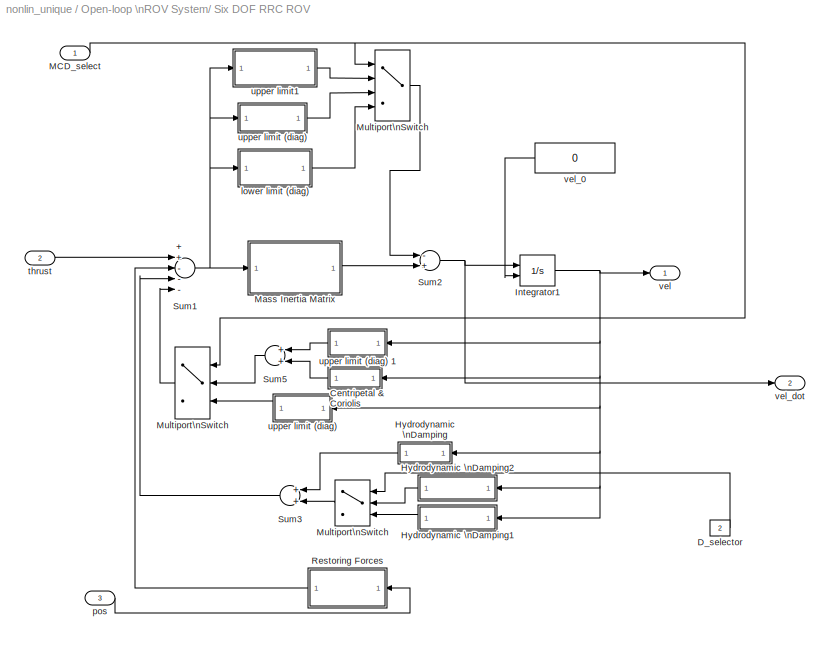
BLOCK [SubSystem] Open-loop \nROV System/ Six DOF RRC ROV   
  MaskIconFrame = on
  MaskIconOpaque = off
  MaskIconRotate = none
  MaskIconUnits = autoscale
  MinAlgLoopOccurrences = off
  Ports = [3, 2]
  RTWSystemCode = Auto
  TreatAsAtomicUnit = off
BLOCK [SubSystem] Open-loop \nROV System/ Six DOF RRC ROV   /Centripetal & Coriolis
  AncestorBlock = rov_design_analysis/ROV\nModels/1. Six DOF RRC ROV II/Centripetal & Coriolis
  MaskDisplay = disp('C')
  MaskIconFrame = on
  MaskIconOpaque = on
  MaskIconRotate = none
  MaskIconUnits = autoscale
  MinAlgLoopOccurrences = off
  Ports = [1, 1]
  RTWSystemCode = Auto
  TreatAsAtomicUnit = off
BLOCK [Demux] Open-loop \nROV System/ Six DOF RRC ROV   /Centripetal & Coriolis/Demux
  Outputs = 2
  Ports = [1, 2]
BLOCK [Mux] Open-loop \nROV System/ Six DOF RRC ROV   /Centripetal & Coriolis/Mux
  Inputs = 2
  Ports = [2, 1]
BLOCK [Product] Open-loop \nROV System/ Six DOF RRC ROV   /Centripetal & Coriolis/Product1
  Ports = [2, 1]
BLOCK [Product] Open-loop \nROV System/ Six DOF RRC ROV   /Centripetal & Coriolis/Product2
  Ports = [2, 1]
BLOCK [Product] Open-loop \nROV System/ Six DOF RRC ROV   /Centripetal & Coriolis/Product3
  Ports = [2, 1]
BLOCK [Product] Open-loop \nROV System/ Six DOF RRC ROV   /Centripetal & Coriolis/Product4
  Ports = [2, 1]
BLOCK [Product] Open-loop \nROV System/ Six DOF RRC ROV   /Centripetal & Coriolis/Product5
  Ports = [2, 1]
BLOCK [Constant] Open-loop \nROV System/ Six DOF RRC ROV   /Centripetal & Coriolis/Rg
  Value = rg
BLOCK [Sum] Open-loop \nROV System/ Six DOF RRC ROV   /Centripetal & Coriolis/Sum
  Ports = [2, 1]
BLOCK [Sum] Open-loop \nROV System/ Six DOF RRC ROV   /Centripetal & Coriolis/Sum1
  Ports = [2, 1]
BLOCK [Outport] Open-loop \nROV System/ Six DOF RRC ROV   /Centripetal & Coriolis/force
  BusOutputAsStruct = off
  IconDisplay = Port number
  InitialOutput = 0
BLOCK [Gain] Open-loop \nROV System/ Six DOF RRC ROV   /Centripetal & Coriolis/inertia(3x3)
  Gain = I*eye(3)+[Xudot 0 0;0 Yvdot 0;0 0 Zwdot]
  Multiplication = Matrix(K*u)
BLOCK [Gain] Open-loop \nROV System/ Six DOF RRC ROV   /Centripetal & Coriolis/mass(3x3)\n
  Gain = m*eye(3)+[Xudot 0 0;0 Yvdot 0;0 0 Zwdot]
  Multiplication = Matrix(K*u)
BLOCK [Gain] Open-loop \nROV System/ Six DOF RRC ROV   /Centripetal & Coriolis/mass(3x3)\n  
  Gain = m*eye(3)+[Xudot 0 0;0 Yvdot 0;0 0 Zwdot]
  Multiplication = Matrix(K*u)
BLOCK [Inport] Open-loop \nROV System/ Six DOF RRC ROV   /Centripetal & Coriolis/vel
  IconDisplay = Port number
  LatchInput = off
  Port = 1
BLOCK [Constant] Open-loop \nROV System/ Six DOF RRC ROV   /D_selector
  Value = 2
BLOCK [SubSystem] Open-loop \nROV System/ Six DOF RRC ROV   /Hydrodynamic \nDamping
  MaskDisplay = disp('D')
  MaskIconFrame = on
  MaskIconOpaque = on
  MaskIconRotate = none
  MaskIconUnits = autoscale
  MinAlgLoopOccurrences = off
  Ports = [1, 1]
  RTWSystemCode = Auto
  TreatAsAtomicUnit = off
BLOCK [Gain] Open-loop \nROV System/ Six DOF RRC ROV   /Hydrodynamic \nDamping/D linear
  Gain = -diag(DQL)
BLOCK [Outport] Open-loop \nROV System/ Six DOF RRC ROV   /Hydrodynamic \nDamping/damping force
  BusOutputAsStruct = off
  IconDisplay = Port number
  InitialOutput = 0
BLOCK [Inport] Open-loop \nROV System/ Six DOF RRC ROV   /Hydrodynamic \nDamping/vel
  IconDisplay = Port number
  LatchInput = off
  Port = 1
BLOCK [SubSystem] Open-loop \nROV System/ Six DOF RRC ROV   /Hydrodynamic \nDamping1
  MaskDisplay = disp('perturb \\nDamping')
  MaskIconFrame = on
  MaskIconOpaque = on
  MaskIconRotate = none
  MaskIconUnits = autoscale
  MinAlgLoopOccurrences = off
  Ports = [1, 1]
  RTWSystemCode = Auto
  TreatAsAtomicUnit = off
BLOCK [Gain] Open-loop \nROV System/ Six DOF RRC ROV   /Hydrodynamic \nDamping1/D quadratic
  Gain = -diag(DQ)
BLOCK [Product] Open-loop \nROV System/ Six DOF RRC ROV   /Hydrodynamic \nDamping1/Product
  Ports = [2, 1]
BLOCK [Outport] Open-loop \nROV System/ Six DOF RRC ROV   /Hydrodynamic \nDamping1/damping force
  BusOutputAsStruct = off
  IconDisplay = Port number
  InitialOutput = 0
BLOCK [Inport] Open-loop \nROV System/ Six DOF RRC ROV   /Hydrodynamic \nDamping1/vel
  IconDisplay = Port number
  LatchInput = off
  Port = 1
BLOCK [Abs] Open-loop \nROV System/ Six DOF RRC ROV   /Hydrodynamic \nDamping1/|u|
BLOCK [SubSystem] Open-loop \nROV System/ Six DOF RRC ROV   /Hydrodynamic \nDamping2
  MaskDisplay = disp('Zero Perturb')
  MaskIconFrame = on
  MaskIconOpaque = on
  MaskIconRotate = none
  MaskIconUnits = autoscale
  MinAlgLoopOccurrences = off
  Ports = [1, 1]
  RTWSystemCode = Auto
  TreatAsAtomicUnit = off
BLOCK [Gain] Open-loop \nROV System/ Six DOF RRC ROV   /Hydrodynamic \nDamping2/D quadratic
  Gain = 0
BLOCK [Outport] Open-loop \nROV System/ Six DOF RRC ROV   /Hydrodynamic \nDamping2/damping force
  BusOutputAsStruct = off
  IconDisplay = Port number
  InitialOutput = 0
BLOCK [Inport] Open-loop \nROV System/ Six DOF RRC ROV   /Hydrodynamic \nDamping2/vel
  IconDisplay = Port number
  LatchInput = off
  Port = 1
BLOCK [Integrator] Open-loop \nROV System/ Six DOF RRC ROV   /Integrator1
  InitialConditionSource = external
  Ports = [2, 1]
BLOCK [Inport] Open-loop \nROV System/ Six DOF RRC ROV   /MCD_select
  IconDisplay = Port number
  LatchInput = off
  Port = 1
BLOCK [SubSystem] Open-loop \nROV System/ Six DOF RRC ROV   /Mass Inertia Matrix
  MaskDisplay = disp('inv(MRB+MA)')
  MaskIconFrame = on
  MaskIconOpaque = on
  MaskIconRotate = none
  MaskIconUnits = autoscale
  MinAlgLoopOccurrences = off
  Ports = [1, 1]
  RTWSystemCode = Auto
  TreatAsAtomicUnit = off
BLOCK [Inport] Open-loop \nROV System/ Six DOF RRC ROV   /Mass Inertia Matrix/In
  IconDisplay = Port number
  LatchInput = off
  Port = 1
BLOCK [Outport] Open-loop \nROV System/ Six DOF RRC ROV   /Mass Inertia Matrix/Out
  BusOutputAsStruct = off
  IconDisplay = Port number
BLOCK [Gain] Open-loop \nROV System/ Six DOF RRC ROV   /Mass Inertia Matrix/inverse M
  Gain = inv(M-Ma)
  Multiplication = Matrix(K*u)
BLOCK [MultiPortSwitch] Open-loop \nROV System/ Six DOF RRC ROV   /Multiport\nSwitch
  InputSameDT = off
  Inputs = 3
  Ports = [4, 1]
  SaturateOnIntegerOverflow = off
BLOCK [MultiPortSwitch] Open-loop \nROV System/ Six DOF RRC ROV   /Multiport\nSwitch  
  InputSameDT = off
  Inputs = 2
  Ports = [3, 1]
  SaturateOnIntegerOverflow = off
BLOCK [MultiPortSwitch] Open-loop \nROV System/ Six DOF RRC ROV   /Multiport\nSwitch    
  InputSameDT = off
  Inputs = 2
  Ports = [3, 1]
  SaturateOnIntegerOverflow = off
BLOCK [SubSystem] Open-loop \nROV System/ Six DOF RRC ROV   /Restoring Forces
  MaskDisplay = disp('Restoring\\nForce')
  MaskIconFrame = on
  MaskIconOpaque = on
  MaskIconRotate = none
  MaskIconUnits = autoscale
  MinAlgLoopOccurrences = off
  Ports = [1, 1]
  RTWSystemCode = Auto
  TreatAsAtomicUnit = off
BLOCK [Fcn] Open-loop \nROV System/ Six DOF RRC ROV   /Restoring Forces/(xg.W-xb.B)cY.cX
  Expr = (xg*W - xb*B)*cos(u[2])*cos(u[1])
BLOCK [Fcn] Open-loop \nROV System/ Six DOF RRC ROV   /Restoring Forces/(zg.W - zb.B)cY.sX
  Expr = ((zg * W - zb * B) * cos(u[2])) * sin(u[1])
BLOCK [Fcn] Open-loop \nROV System/ Six DOF RRC ROV   /Restoring Forces/(zg.W - zb.B)sY
  Expr = (zg*W - zb*B)*sin(u[2])
BLOCK [Fcn] Open-loop \nROV System/ Six DOF RRC ROV   /Restoring Forces/-(xg.W-xb.B)cY.sX
  Expr = -(xg*W - xb*B)*cos(u[2])*sin(u[1])
BLOCK [Fcn] Open-loop \nROV System/ Six DOF RRC ROV   /Restoring Forces/-(yg.W-yb.B)cY.cX
  Expr = -(yg*W - yb*B)*cos(u[2])*cos(u[1])
BLOCK [Fcn] Open-loop \nROV System/ Six DOF RRC ROV   /Restoring Forces/-(yg.W-yb.B)sY
  Expr = -(yg*W - yb*B)*sin(u[2])
BLOCK [Fcn] Open-loop \nROV System/ Six DOF RRC ROV   /Restoring Forces/-cY.cX
  Expr = -cos(u[2])*cos(u[1])
BLOCK [Fcn] Open-loop \nROV System/ Six DOF RRC ROV   /Restoring Forces/-cY.sX
  Expr = -cos(u[2])*sin(u[1])
BLOCK [Demux] Open-loop \nROV System/ Six DOF RRC ROV   /Restoring Forces/Demux
  Outputs = 2
  Ports = [1, 2]
BLOCK [Gain] Open-loop \nROV System/ Six DOF RRC ROV   /Restoring Forces/Gain
  Gain = W-B
BLOCK [Mux] Open-loop \nROV System/ Six DOF RRC ROV   /Restoring Forces/Mux
  Inputs = 3
  Ports = [3, 1]
BLOCK [Mux] Open-loop \nROV System/ Six DOF RRC ROV   /Restoring Forces/Mux1
  Ports = [4, 1]
BLOCK [Sum] Open-loop \nROV System/ Six DOF RRC ROV   /Restoring Forces/Sum
  Ports = [2, 1]
BLOCK [Sum] Open-loop \nROV System/ Six DOF RRC ROV   /Restoring Forces/Sum1
  Ports = [2, 1]
BLOCK [Sum] Open-loop \nROV System/ Six DOF RRC ROV   /Restoring Forces/Sum2
  Ports = [2, 1]
BLOCK [Terminator] Open-loop \nROV System/ Six DOF RRC ROV   /Restoring Forces/Terminator
BLOCK [Outport] Open-loop \nROV System/ Six DOF RRC ROV   /Restoring Forces/gravitational\nforce
  BusOutputAsStruct = off
  IconDisplay = Port number
  InitialOutput = 0
BLOCK [Inport] Open-loop \nROV System/ Six DOF RRC ROV   /Restoring Forces/pos
  IconDisplay = Port number
  LatchInput = off
  Port = 1
BLOCK [Fcn] Open-loop \nROV System/ Six DOF RRC ROV   /Restoring Forces/sY
  Expr = sin(u[2])
BLOCK [Sum] Open-loop \nROV System/ Six DOF RRC ROV   /Sum1
  Inputs = ++---
  Ports = [5, 1]
BLOCK [Sum] Open-loop \nROV System/ Six DOF RRC ROV   /Sum2
  Inputs = -+
  Ports = [2, 1]
BLOCK [Sum] Open-loop \nROV System/ Six DOF RRC ROV   /Sum3
  Ports = [2, 1]
BLOCK [Sum] Open-loop \nROV System/ Six DOF RRC ROV   /Sum5
  Ports = [2, 1]
BLOCK [SubSystem] Open-loop \nROV System/ Six DOF RRC ROV   /lower limit (diag)
  MaskDisplay = disp('Perturb MA')
  MaskIconFrame = on
  MaskIconOpaque = on
  MaskIconRotate = none
  MaskIconUnits = autoscale
  MinAlgLoopOccurrences = off
  Ports = [1, 1]
  RTWSystemCode = Auto
  TreatAsAtomicUnit = off
BLOCK [Inport] Open-loop \nROV System/ Six DOF RRC ROV   /lower limit (diag)/In
  IconDisplay = Port number
  LatchInput = off
  Port = 1
BLOCK [Outport] Open-loop \nROV System/ Six DOF RRC ROV   /lower limit (diag)/Out
  BusOutputAsStruct = off
  IconDisplay = Port number
BLOCK [Gain] Open-loop \nROV System/ Six DOF RRC ROV   /lower limit (diag)/inverse M
  Gain = -diag([21.1403-21.0981 51.7012-51.0026 92.451-91.837 3.6191-3.576 2.6427-2.7687 2.3033-2.3493])
  Multiplication = Matrix(K*u)
BLOCK [Inport] Open-loop \nROV System/ Six DOF RRC ROV   /pos 
  IconDisplay = Port number
  LatchInput = off
  Port = 3
BLOCK [Inport] Open-loop \nROV System/ Six DOF RRC ROV   /thrust 
  IconDisplay = Port number
  LatchInput = off
  Port = 2
BLOCK [SubSystem] Open-loop \nROV System/ Six DOF RRC ROV   /upper limit (diag)
  MaskDisplay = disp('Perturb MA')
  MaskIconFrame = on
  MaskIconOpaque = on
  MaskIconRotate = none
  MaskIconUnits = autoscale
  MinAlgLoopOccurrences = off
  Ports = [1, 1]
  RTWSystemCode = Auto
  TreatAsAtomicUnit = off
BLOCK [SubSystem] Open-loop \nROV System/ Six DOF RRC ROV   /upper limit (diag)   
  MaskDisplay = disp('Perturb CA')
  MaskIconFrame = on
  MaskIconOpaque = on
  MaskIconRotate = none
  MaskIconUnits = autoscale
  MinAlgLoopOccurrences = off
  Ports = [1, 1]
  RTWSystemCode = Auto
  TreatAsAtomicUnit = off
BLOCK [Fcn] Open-loop \nROV System/ Six DOF RRC ROV   /upper limit (diag)   /(zg.W - zb.B)cY.sX
  Expr = -u[9]*u[3]*u[5]+u[8]*u[2]*u[6]
BLOCK [Fcn] Open-loop \nROV System/ Six DOF RRC ROV   /upper limit (diag)   /(zg.W - zb.B)cY.sX1
  Expr = u[9]*u[3]*u[4]-u[7]*u[1]*u[6]
BLOCK [Fcn] Open-loop \nROV System/ Six DOF RRC ROV   /upper limit (diag)   /(zg.W - zb.B)cY.sX2
  Expr = -u[8]*u[2]*u[4]+u[7]*u[1]*u[5]
BLOCK [Fcn] Open-loop \nROV System/ Six DOF RRC ROV   /upper limit (diag)   /(zg.W - zb.B)cY.sX3
  Expr = -u[9]*u[3]*u[2]+u[8]*u[2]*u[3]-u[12]*u[6]*u[5]+u[11]*u[5]*u[6]
BLOCK [Fcn] Open-loop \nROV System/ Six DOF RRC ROV   /upper limit (diag)   /(zg.W - zb.B)cY.sX4
  Expr = u[9]*u[3]*u[1]-u[7]*u[1]*u[3]+u[6]*u[12]*u[4]-u[4]*u[10]*u[6]
BLOCK [Fcn] Open-loop \nROV System/ Six DOF RRC ROV   /upper limit (diag)   /(zg.W - zb.B)cY.sX5
  Expr = -u[8]*u[2]*u[1]+u[7]*u[1]*u[2]-u[11]*u[5]*u[4]+u[10]*u[4]*u[5]
BLOCK [Mux] Open-loop \nROV System/ Six DOF RRC ROV   /upper limit (diag)   /Mux1
  Inputs = 6
  Ports = [6, 1]
BLOCK [Mux] Open-loop \nROV System/ Six DOF RRC ROV   /upper limit (diag)   /Mux3
  Inputs = 2
  Ports = [2, 1]
BLOCK [Constant] Open-loop \nROV System/ Six DOF RRC ROV   /upper limit (diag)   /Rg1
  Value = [MaU(1)  MaU(2)  MaU(3)  MaU(4)  MaU(5)  MaU(6) ]'
BLOCK [Outport] Open-loop \nROV System/ Six DOF RRC ROV   /upper limit (diag)   /force
  BusOutputAsStruct = off
  IconDisplay = Port number
BLOCK [Inport] Open-loop \nROV System/ Six DOF RRC ROV   /upper limit (diag)   /vel
  IconDisplay = Port number
  LatchInput = off
  Port = 1
BLOCK [SubSystem] Open-loop \nROV System/ Six DOF RRC ROV   /upper limit (diag)   1
  MaskDisplay = disp('CA')
  MaskIconFrame = on
  MaskIconOpaque = on
  MaskIconRotate = none
  MaskIconUnits = autoscale
  MinAlgLoopOccurrences = off
  Ports = [1, 1]
  RTWSystemCode = Auto
  TreatAsAtomicUnit = off
BLOCK [Fcn] Open-loop \nROV System/ Six DOF RRC ROV   /upper limit (diag)   1/(zg.W - zb.B)cY.sX
  Expr = -u[9]*u[3]*u[5]+u[8]*u[2]*u[6]
BLOCK [Fcn] Open-loop \nROV System/ Six DOF RRC ROV   /upper limit (diag)   1/(zg.W - zb.B)cY.sX1
  Expr = u[9]*u[3]*u[4]-u[7]*u[1]*u[6]
BLOCK [Fcn] Open-loop \nROV System/ Six DOF RRC ROV   /upper limit (diag)   1/(zg.W - zb.B)cY.sX2
  Expr = -u[8]*u[2]*u[4]+u[7]*u[1]*u[5]
BLOCK [Fcn] Open-loop \nROV System/ Six DOF RRC ROV   /upper limit (diag)   1/(zg.W - zb.B)cY.sX3
  Expr = -u[9]*u[3]*u[2]+u[8]*u[2]*u[3]-u[12]*u[6]*u[5]+u[11]*u[5]*u[6]
BLOCK [Fcn] Open-loop \nROV System/ Six DOF RRC ROV   /upper limit (diag)   1/(zg.W - zb.B)cY.sX4
  Expr = u[9]*u[3]*u[1]-u[7]*u[1]*u[3]+u[6]*u[12]*u[4]-u[4]*u[10]*u[6]
BLOCK [Fcn] Open-loop \nROV System/ Six DOF RRC ROV   /upper limit (diag)   1/(zg.W - zb.B)cY.sX5
  Expr = -u[8]*u[2]*u[1]+u[7]*u[1]*u[2]-u[11]*u[5]*u[4]+u[10]*u[4]*u[5]
BLOCK [Mux] Open-loop \nROV System/ Six DOF RRC ROV   /upper limit (diag)   1/Mux1
  Inputs = 6
  Ports = [6, 1]
BLOCK [Mux] Open-loop \nROV System/ Six DOF RRC ROV   /upper limit (diag)   1/Mux3
  Inputs = 2
  Ports = [2, 1]
BLOCK [Constant] Open-loop \nROV System/ Six DOF RRC ROV   /upper limit (diag)   1/Rg1
  Value = [Ma(1)  Ma(2)  Ma(3)  Ma(4)  Ma(5)  Ma(6) ]'
BLOCK [Outport] Open-loop \nROV System/ Six DOF RRC ROV   /upper limit (diag)   1/force
  BusOutputAsStruct = off
  IconDisplay = Port number
BLOCK [Inport] Open-loop \nROV System/ Six DOF RRC ROV   /upper limit (diag)   1/vel
  IconDisplay = Port number
  LatchInput = off
  Port = 1
BLOCK [Inport] Open-loop \nROV System/ Six DOF RRC ROV   /upper limit (diag)/In
  IconDisplay = Port number
  LatchInput = off
  Port = 1
BLOCK [Outport] Open-loop \nROV System/ Six DOF RRC ROV   /upper limit (diag)/Out
  BusOutputAsStruct = off
  IconDisplay = Port number
BLOCK [Gain] Open-loop \nROV System/ Six DOF RRC ROV   /upper limit (diag)/inverse M
  Gain = -diag([21.724-21.1403 51.7013-51.7012 94.3-92.451 4.2176-3.6191 7.1148-2.6427 4.7673-2.3033])
  Multiplication = Matrix(K*u)
BLOCK [SubSystem] Open-loop \nROV System/ Six DOF RRC ROV   /upper limit1
  MaskDisplay = disp('Zero Perturb')
  MaskIconFrame = on
  MaskIconOpaque = on
  MaskIconRotate = none
  MaskIconUnits = autoscale
  MinAlgLoopOccurrences = off
  Ports = [1, 1]
  RTWSystemCode = Auto
  TreatAsAtomicUnit = off
BLOCK [Inport] Open-loop \nROV System/ Six DOF RRC ROV   /upper limit1/In
  IconDisplay = Port number
  LatchInput = off
  Port = 1
BLOCK [Outport] Open-loop \nROV System/ Six DOF RRC ROV   /upper limit1/Out
  BusOutputAsStruct = off
  IconDisplay = Port number
BLOCK [Gain] Open-loop \nROV System/ Six DOF RRC ROV   /upper limit1/inverse M
  Gain = 0
  Multiplication = Matrix(K*u)
BLOCK [Outport] Open-loop \nROV System/ Six DOF RRC ROV   /vel
  BusOutputAsStruct = off
  IconDisplay = Port number
BLOCK [Constant] Open-loop \nROV System/ Six DOF RRC ROV   /vel_0
  OutDataTypeMode = double
  Value = 0
BLOCK [Outport] Open-loop \nROV System/ Six DOF RRC ROV   /vel_dot
  BusOutputAsStruct = off
  IconDisplay = Port number
  Port = 2
BLOCK [SubSystem] Open-loop \nROV System/Body Velocity\nScope\n 1
  AncestorBlock = rov_design_analysis/Scope\nUtilities/Body Velocity\nScope\n
  MaskDisplay = disp('Body\\nVelocity\\nScope')
  MaskIconFrame = on
  MaskIconOpaque = on
  MaskIconRotate = none
  MaskIconUnits = autoscale
  MinAlgLoopOccurrences = off
  Ports = [1]
  RTWSystemCode = Auto
  TreatAsAtomicUnit = off
BLOCK [Demux] Open-loop \nROV System/Body Velocity\nScope\n 1/Demux
  Outputs = 6
  Ports = [1, 6]
BLOCK [Inport] Open-loop \nROV System/Body Velocity\nScope\n 1/In
  IconDisplay = Port number
  LatchInput = off
  Port = 1
BLOCK [Scope] Open-loop \nROV System/Body Velocity\nScope\n 1/p
  DataFormat = Array
  NumInputPorts = 1
  Ports = [1]
  TickLabels = on
  YMax = 0.2
  YMin = -0.125
BLOCK [Scope] Open-loop \nROV System/Body Velocity\nScope\n 1/q
  DataFormat = Array
  NumInputPorts = 1
  Ports = [1]
  TickLabels = on
  TimeRange = 200
  YMax = 0.15
  YMin = -0.05
BLOCK [Scope] Open-loop \nROV System/Body Velocity\nScope\n 1/r
  DataFormat = Array
  NumInputPorts = 1
  Ports = [1]
  TickLabels = on
  TimeRange = 200
  YMax = 0.15
  YMin = -0.05
BLOCK [Scope] Open-loop \nROV System/Body Velocity\nScope\n 1/u
  DataFormat = Array
  NumInputPorts = 1
  Ports = [1]
  TickLabels = on
  TimeRange = 50
  YMax = 0.375
  YMin = -0.025
BLOCK [Scope] Open-loop \nROV System/Body Velocity\nScope\n 1/v
  DataFormat = Array
  NumInputPorts = 1
  Ports = [1]
  TickLabels = on
  YMax = 0.1
  YMin = -0.02
BLOCK [Scope] Open-loop \nROV System/Body Velocity\nScope\n 1/w
  DataFormat = Array
  NumInputPorts = 1
  Ports = [1]
  TickLabels = on
  TimeRange = 50
  YMax = 0.0375
  YMin = -0.0025
  ZoomMode = yonly
BLOCK [SubSystem] Open-loop \nROV System/Euler Transformation  
  AncestorBlock = rov_design_analysis/Scope\nUtilities/Euler Transformation
  MinAlgLoopOccurrences = off
  Ports = [1, 2]
  RTWSystemCode = Auto
  TreatAsAtomicUnit = off
BLOCK [Demux] Open-loop \nROV System/Euler Transformation  /Demux
  Outputs = 2
  Ports = [1, 2]
BLOCK [Demux] Open-loop \nROV System/Euler Transformation  /Demux1
  Outputs = 2
  Ports = [1, 2]
BLOCK [Integrator] Open-loop \nROV System/Euler Transformation  /Intregrator2
  Ports = [1, 1]
BLOCK [Mux] Open-loop \nROV System/Euler Transformation  /Mux1
  Inputs = 2
  Ports = [2, 1]
BLOCK [Terminator] Open-loop \nROV System/Euler Transformation  /Terminator
BLOCK [SubSystem] Open-loop \nROV System/Euler Transformation  /Transformation matrix R
  MaskDisplay = disp('Transformation R')
  MaskIconFrame = on
  MaskIconOpaque = on
  MaskIconRotate = none
  MaskIconUnits = autoscale
  MinAlgLoopOccurrences = off
  Ports = [2, 1]
  RTWSystemCode = Auto
  TreatAsAtomicUnit = off
BLOCK [Mux] Open-loop \nROV System/Euler Transformation  /Transformation matrix R/Mux
  Inputs = 3
  Ports = [3, 1]
BLOCK [SubSystem] Open-loop \nROV System/Euler Transformation  /Transformation matrix R/Row1 of T
  MaskDisplay = disp('Row 1')
  MaskIconFrame = on
  MaskIconOpaque = on
  MaskIconRotate = none
  MaskIconUnits = autoscale
  MinAlgLoopOccurrences = off
  Ports = [2, 1]
  RTWSystemCode = Auto
  TreatAsAtomicUnit = off
BLOCK [Fcn] Open-loop \nROV System/Euler Transformation  /Transformation matrix R/Row1 of T/1
  Expr = 1
BLOCK [Reference] Open-loop \nROV System/Euler Transformation  /Transformation matrix R/Row1 of T/Dot Product1  REF=simulink/Math\nOperations/Dot Product
  DoSatur = off
  InputSameDT = on
  LockScale = off
  OutDataType = sfix(16)
  OutScaling = 2^-10
  OutputDataTypeScalingMode = Inherit via internal rule
  Ports = [2, 1]
  RndMeth = Floor
  SourceBlock = simulink/Math\nOperations/Dot Product
  SourceType = Dot Product
BLOCK [Mux] Open-loop \nROV System/Euler Transformation  /Transformation matrix R/Row1 of T/Mux1
  Inputs = 3
  Ports = [3, 1]
BLOCK [Inport] Open-loop \nROV System/Euler Transformation  /Transformation matrix R/Row1 of T/angular body\n velocity
  IconDisplay = Port number
  LatchInput = off
  Port = 1
BLOCK [Outport] Open-loop \nROV System/Euler Transformation  /Transformation matrix R/Row1 of T/angular earth\nvelocity\n(row 1)
  BusOutputAsStruct = off
  IconDisplay = Port number
BLOCK [Inport] Open-loop \nROV System/Euler Transformation  /Transformation matrix R/Row1 of T/angular\nposition
  IconDisplay = Port number
  LatchInput = off
  Port = 2
BLOCK [Fcn] Open-loop \nROV System/Euler Transformation  /Transformation matrix R/Row1 of T/cX.tY
  Expr = cos(u[1])*tan(u[2])
BLOCK [Fcn] Open-loop \nROV System/Euler Transformation  /Transformation matrix R/Row1 of T/sX.tY
  Expr = sin(u[1])*tan(u[2])
BLOCK [SubSystem] Open-loop \nROV System/Euler Transformation  /Transformation matrix R/Row2 of T
  MaskDisplay = disp('Row 2')
  MaskIconFrame = on
  MaskIconOpaque = on
  MaskIconRotate = none
  MaskIconUnits = autoscale
  MinAlgLoopOccurrences = off
  Ports = [2, 1]
  RTWSystemCode = Auto
  TreatAsAtomicUnit = off
BLOCK [Fcn] Open-loop \nROV System/Euler Transformation  /Transformation matrix R/Row2 of T/-sX
  Expr = -sin(u[1])
BLOCK [Fcn] Open-loop \nROV System/Euler Transformation  /Transformation matrix R/Row2 of T/0
  Expr = 0
BLOCK [Reference] Open-loop \nROV System/Euler Transformation  /Transformation matrix R/Row2 of T/Dot Product1  REF=simulink/Math\nOperations/Dot Product
  DoSatur = off
  InputSameDT = on
  LockScale = off
  OutDataType = sfix(16)
  OutScaling = 2^-10
  OutputDataTypeScalingMode = Inherit via internal rule
  Ports = [2, 1]
  RndMeth = Floor
  SourceBlock = simulink/Math\nOperations/Dot Product
  SourceType = Dot Product
BLOCK [Mux] Open-loop \nROV System/Euler Transformation  /Transformation matrix R/Row2 of T/Mux1
  Inputs = 3
  Ports = [3, 1]
BLOCK [Inport] Open-loop \nROV System/Euler Transformation  /Transformation matrix R/Row2 of T/angular body\nvelocity\n
  IconDisplay = Port number
  LatchInput = off
  Port = 1
BLOCK [Outport] Open-loop \nROV System/Euler Transformation  /Transformation matrix R/Row2 of T/angular earth\nvelocity\n(row 2)
  BusOutputAsStruct = off
  IconDisplay = Port number
BLOCK [Inport] Open-loop \nROV System/Euler Transformation  /Transformation matrix R/Row2 of T/angular\nposition
  IconDisplay = Port number
  LatchInput = off
  Port = 2
BLOCK [Fcn] Open-loop \nROV System/Euler Transformation  /Transformation matrix R/Row2 of T/cX
  Expr = cos(u[1])
BLOCK [SubSystem] Open-loop \nROV System/Euler Transformation  /Transformation matrix R/Row3 of T
  MaskDisplay = disp('Row 3')
  MaskIconFrame = on
  MaskIconOpaque = on
  MaskIconRotate = none
  MaskIconUnits = autoscale
  MinAlgLoopOccurrences = off
  Ports = [2, 1]
  RTWSystemCode = Auto
  TreatAsAtomicUnit = off
BLOCK [Fcn] Open-loop \nROV System/Euler Transformation  /Transformation matrix R/Row3 of T/1
  Expr = 0
BLOCK [Reference] Open-loop \nROV System/Euler Transformation  /Transformation matrix R/Row3 of T/Dot Product1  REF=simulink/Math\nOperations/Dot Product
  DoSatur = off
  InputSameDT = on
  LockScale = off
  OutDataType = sfix(16)
  OutScaling = 2^-10
  OutputDataTypeScalingMode = Inherit via internal rule
  Ports = [2, 1]
  RndMeth = Floor
  SourceBlock = simulink/Math\nOperations/Dot Product
  SourceType = Dot Product
BLOCK [Mux] Open-loop \nROV System/Euler Transformation  /Transformation matrix R/Row3 of T/Mux1
  Inputs = 3
  Ports = [3, 1]
BLOCK [Inport] Open-loop \nROV System/Euler Transformation  /Transformation matrix R/Row3 of T/angular body\nvelocity\n
  IconDisplay = Port number
  LatchInput = off
  Port = 1
BLOCK [Outport] Open-loop \nROV System/Euler Transformation  /Transformation matrix R/Row3 of T/angular earth\nvelocity\n(row 3)
  BusOutputAsStruct = off
  IconDisplay = Port number
BLOCK [Inport] Open-loop \nROV System/Euler Transformation  /Transformation matrix R/Row3 of T/angular\nposition
  IconDisplay = Port number
  LatchInput = off
  Port = 2
BLOCK [Fcn] Open-loop \nROV System/Euler Transformation  /Transformation matrix R/Row3 of T/cX//cY
  Expr = cos(u[1])/cos(u[2])
BLOCK [Fcn] Open-loop \nROV System/Euler Transformation  /Transformation matrix R/Row3 of T/sX//cY
  Expr = sin(u[1])/cos(u[2])
BLOCK [Inport] Open-loop \nROV System/Euler Transformation  /Transformation matrix R/angular body\n velocity
  IconDisplay = Port number
  LatchInput = off
  Port = 1
BLOCK [Outport] Open-loop \nROV System/Euler Transformation  /Transformation matrix R/angular earth\nvelocity
  BusOutputAsStruct = off
  IconDisplay = Port number
BLOCK [Inport] Open-loop \nROV System/Euler Transformation  /Transformation matrix R/angular\nposition
  IconDisplay = Port number
  LatchInput = off
  Port = 2
BLOCK [SubSystem] Open-loop \nROV System/Euler Transformation  /Transformation matrix T
  MaskDisplay = disp('Transformation T')
  MaskIconFrame = on
  MaskIconOpaque = on
  MaskIconRotate = none
  MaskIconUnits = autoscale
  MinAlgLoopOccurrences = off
  Ports = [2, 1]
  RTWSystemCode = Auto
  TreatAsAtomicUnit = off
BLOCK [Mux] Open-loop \nROV System/Euler Transformation  /Transformation matrix T/Mux
  Inputs = 3
  Ports = [3, 1]
BLOCK [SubSystem] Open-loop \nROV System/Euler Transformation  /Transformation matrix T/Row1 of R
  MaskDisplay = disp('Row 1')
  MaskIconFrame = on
  MaskIconOpaque = on
  MaskIconRotate = none
  MaskIconUnits = autoscale
  MinAlgLoopOccurrences = off
  Ports = [2, 1]
  RTWSystemCode = Auto
  TreatAsAtomicUnit = off
BLOCK [Fcn] Open-loop \nROV System/Euler Transformation  /Transformation matrix T/Row1 of R/-sZ.cX+cZ.sY.sX
  Expr = -sin(u[3])*cos(u[1]) + cos(u[3])*sin(u[2])*sin(u[1])
BLOCK [Reference] Open-loop \nROV System/Euler Transformation  /Transformation matrix T/Row1 of R/Dot Product  REF=simulink/Math\nOperations/Dot Product
  DoSatur = off
  InputSameDT = on
  LockScale = off
  OutDataType = sfix(16)
  OutScaling = 2^-10
  OutputDataTypeScalingMode = Inherit via internal rule
  Ports = [2, 1]
  RndMeth = Floor
  SourceBlock = simulink/Math\nOperations/Dot Product
  SourceType = Dot Product
BLOCK [Mux] Open-loop \nROV System/Euler Transformation  /Transformation matrix T/Row1 of R/Mux
  Inputs = 3
  Ports = [3, 1]
BLOCK [Inport] Open-loop \nROV System/Euler Transformation  /Transformation matrix T/Row1 of R/angular\nposition
  IconDisplay = Port number
  LatchInput = off
  Port = 2
BLOCK [Fcn] Open-loop \nROV System/Euler Transformation  /Transformation matrix T/Row1 of R/cY.cZ
  Expr = cos(u[3]) * cos(u[2])
BLOCK [Fcn] Open-loop \nROV System/Euler Transformation  /Transformation matrix T/Row1 of R/sZ.sX+cZ.cX.sY
  Expr = sin(u[3])*sin(u[1]) + cos(u[3])*cos(u[1])*sin(u[2])
BLOCK [Inport] Open-loop \nROV System/Euler Transformation  /Transformation matrix T/Row1 of R/translational\nbody velocity
  IconDisplay = Port number
  LatchInput = off
  Port = 1
BLOCK [Outport] Open-loop \nROV System/Euler Transformation  /Transformation matrix T/Row1 of R/translational\nearth velocity\n(row 1)
  BusOutputAsStruct = off
  IconDisplay = Port number
BLOCK [SubSystem] Open-loop \nROV System/Euler Transformation  /Transformation matrix T/Row2 of R
  MaskDisplay = disp('Row 2')
  MaskIconFrame = on
  MaskIconOpaque = on
  MaskIconRotate = none
  MaskIconUnits = autoscale
  MinAlgLoopOccurrences = off
  Ports = [2, 1]
  RTWSystemCode = Auto
  TreatAsAtomicUnit = off
BLOCK [Fcn] Open-loop \nROV System/Euler Transformation  /Transformation matrix T/Row2 of R/-cZ.sX+sY.sZ.cX
  Expr = -cos(u[3])*sin(u[1]) + sin(u[2])*sin(u[3])*cos(u[1])
BLOCK [Reference] Open-loop \nROV System/Euler Transformation  /Transformation matrix T/Row2 of R/Dot Product1  REF=simulink/Math\nOperations/Dot Product
  DoSatur = off
  InputSameDT = on
  LockScale = off
  OutDataType = sfix(16)
  OutScaling = 2^-10
  OutputDataTypeScalingMode = Inherit via internal rule
  Ports = [2, 1]
  RndMeth = Floor
  SourceBlock = simulink/Math\nOperations/Dot Product
  SourceType = Dot Product
BLOCK [Mux] Open-loop \nROV System/Euler Transformation  /Transformation matrix T/Row2 of R/Mux1
  Inputs = 3
  Ports = [3, 1]
BLOCK [Inport] Open-loop \nROV System/Euler Transformation  /Transformation matrix T/Row2 of R/angular\nposition
  IconDisplay = Port number
  LatchInput = off
  Port = 2
BLOCK [Fcn] Open-loop \nROV System/Euler Transformation  /Transformation matrix T/Row2 of R/cY.sZ
  Expr = sin(u[3]) * cos(u[2])
BLOCK [Fcn] Open-loop \nROV System/Euler Transformation  /Transformation matrix T/Row2 of R/cZ.cX+sX.sY.sZ
  Expr = cos(u[3])*cos(u[1]) + sin(u[1])*sin(u[2])*sin(u[3])
BLOCK [Inport] Open-loop \nROV System/Euler Transformation  /Transformation matrix T/Row2 of R/translational\nbody velocity
  IconDisplay = Port number
  LatchInput = off
  Port = 1
BLOCK [Outport] Open-loop \nROV System/Euler Transformation  /Transformation matrix T/Row2 of R/translational\nearth velocity\n(row 2)
  BusOutputAsStruct = off
  IconDisplay = Port number
BLOCK [SubSystem] Open-loop \nROV System/Euler Transformation  /Transformation matrix T/Row3 of R
  MaskDisplay = disp('Row 3')
  MaskIconFrame = on
  MaskIconOpaque = on
  MaskIconRotate = none
  MaskIconUnits = autoscale
  MinAlgLoopOccurrences = off
  Ports = [2, 1]
  RTWSystemCode = Auto
  TreatAsAtomicUnit = off
BLOCK [Fcn] Open-loop \nROV System/Euler Transformation  /Transformation matrix T/Row3 of R/-sY
  Expr = -sin(u[2])
BLOCK [Reference] Open-loop \nROV System/Euler Transformation  /Transformation matrix T/Row3 of R/Dot Product1  REF=simulink/Math\nOperations/Dot Product
  DoSatur = off
  InputSameDT = on
  LockScale = off
  OutDataType = sfix(16)
  OutScaling = 2^-10
  OutputDataTypeScalingMode = Inherit via internal rule
  Ports = [2, 1]
  RndMeth = Floor
  SourceBlock = simulink/Math\nOperations/Dot Product
  SourceType = Dot Product
BLOCK [Mux] Open-loop \nROV System/Euler Transformation  /Transformation matrix T/Row3 of R/Mux1
  Inputs = 3
  Ports = [3, 1]
BLOCK [Inport] Open-loop \nROV System/Euler Transformation  /Transformation matrix T/Row3 of R/angular\nposition
  IconDisplay = Port number
  LatchInput = off
  Port = 2
BLOCK [Fcn] Open-loop \nROV System/Euler Transformation  /Transformation matrix T/Row3 of R/cY.cX
  Expr = cos(u[2])*cos(u[1])
BLOCK [Fcn] Open-loop \nROV System/Euler Transformation  /Transformation matrix T/Row3 of R/cY.sX
  Expr = cos(u[2])*sin(u[1])
BLOCK [Inport] Open-loop \nROV System/Euler Transformation  /Transformation matrix T/Row3 of R/translational\nbody velocity
  IconDisplay = Port number
  LatchInput = off
  Port = 1
BLOCK [Outport] Open-loop \nROV System/Euler Transformation  /Transformation matrix T/Row3 of R/translational\nearth velocity\n(row 3)
  BusOutputAsStruct = off
  IconDisplay = Port number
  InitialOutput = 0
BLOCK [Inport] Open-loop \nROV System/Euler Transformation  /Transformation matrix T/angular\nposition
  IconDisplay = Port number
  LatchInput = off
  Port = 2
BLOCK [Inport] Open-loop \nROV System/Euler Transformation  /Transformation matrix T/translational\nbody velocity
  IconDisplay = Port number
  LatchInput = off
  Port = 1
BLOCK [Outport] Open-loop \nROV System/Euler Transformation  /Transformation matrix T/translational\nearth velocity
  BusOutputAsStruct = off
  IconDisplay = Port number
  InitialOutput = 0
BLOCK [Outport] Open-loop \nROV System/Euler Transformation  /eout
  BusOutputAsStruct = off
  IconDisplay = Port number
  InitialOutput = 0
BLOCK [Outport] Open-loop \nROV System/Euler Transformation  /eout_dot
  BusOutputAsStruct = off
  IconDisplay = Port number
  InitialOutput = 0
  Port = 2
BLOCK [Inport] Open-loop \nROV System/Euler Transformation  /vel
  IconDisplay = Port number
  LatchInput = off
  Port = 1
BLOCK [Outport] Open-loop \nROV System/Ja*va1
  BusOutputAsStruct = off
  IconDisplay = Port number
BLOCK [Constant] Open-loop \nROV System/MCD_selector
  Value = 2
BLOCK [SubSystem] Open-loop \nROV System/Thruster\nconfiguration5
  MaskDisplay = disp('T')
  MaskIconFrame = on
  MaskIconOpaque = on
  MaskIconRotate = none
  MaskIconUnits = autoscale
  MinAlgLoopOccurrences = off
  Ports = [1, 1]
  RTWSystemCode = Auto
  TreatAsAtomicUnit = off
BLOCK [Gain] Open-loop \nROV System/Thruster\nconfiguration5/Thruster\nMatrix
  Gain = T
  Multiplication = Matrix(K*u)
BLOCK [Inport] Open-loop \nROV System/Thruster\nconfiguration5/input\nvelocity
  IconDisplay = Port number
  LatchInput = off
  Port = 1
BLOCK [Outport] Open-loop \nROV System/Thruster\nconfiguration5/output\nforce
  BusOutputAsStruct = off
  IconDisplay = Port number
  InitialOutput = 0
BLOCK [SubSystem] Open-loop \nROV System/Thruster\nconfiguration8
  AncestorBlock = rov_design_analysis/ROV Controller\nDesign\nApplications/1. Heading autopilot/Thruster\nconfiguration
  MaskDisplay = disp('F_T')
  MaskIconFrame = on
  MaskIconOpaque = on
  MaskIconRotate = none
  MaskIconUnits = autoscale
  MinAlgLoopOccurrences = off
  Ports = [1, 1]
  RTWSystemCode = Auto
  TreatAsAtomicUnit = off
BLOCK [Reference] Open-loop \nROV System/Thruster\nconfiguration8/3. propeller with motor characteristics - 1DoF\n(no account for ua,up)  REF=rov_design_analysis/Propeller\nModels/3. propeller with motor characteristics - 1DoF\n(no account for ua,up)
  Ports = [1, 2]
  ShowPortLabels = on
  SourceBlock = rov_design_analysis/Propeller\nModels/3. propeller with motor characteristics - 1DoF\n(no account for ua,up)
  SourceType = Propeller dynamic without considering axial velocity
BLOCK [Reference] Open-loop \nROV System/Thruster\nconfiguration8/3. propeller with motor characteristics - 1DoF\n(no account for ua,up)1  REF=rov_design_analysis/Propeller\nModels/3. propeller with motor characteristics - 1DoF\n(no account for ua,up)
  Ports = [1, 2]
  ShowPortLabels = on
  SourceBlock = rov_design_analysis/Propeller\nModels/3. propeller with motor characteristics - 1DoF\n(no account for ua,up)
  SourceType = Propeller dynamic without considering axial velocity
BLOCK [Reference] Open-loop \nROV System/Thruster\nconfiguration8/3. propeller with motor characteristics - 1DoF\n(no account for ua,up)2  REF=rov_design_analysis/Propeller\nModels/3. propeller with motor characteristics - 1DoF\n(no account for ua,up)
  Ports = [1, 2]
  ShowPortLabels = on
  SourceBlock = rov_design_analysis/Propeller\nModels/3. propeller with motor characteristics - 1DoF\n(no account for ua,up)
  SourceType = Propeller dynamic without considering axial velocity
BLOCK [Reference] Open-loop \nROV System/Thruster\nconfiguration8/3. propeller with motor characteristics - 1DoF\n(no account for ua,up)3  REF=rov_design_analysis/Propeller\nModels/3. propeller with motor characteristics - 1DoF\n(no account for ua,up)
  Ports = [1, 2]
  ShowPortLabels = on
  SourceBlock = rov_design_analysis/Propeller\nModels/3. propeller with motor characteristics - 1DoF\n(no account for ua,up)
  SourceType = Propeller dynamic without considering axial velocity
BLOCK [Demux] Open-loop \nROV System/Thruster\nconfiguration8/Demux
  DisplayOption = bar
  Ports = [1, 4]
BLOCK [Mux] Open-loop \nROV System/Thruster\nconfiguration8/Mux1
  Ports = [4, 1]
BLOCK [Inport] Open-loop \nROV System/Thruster\nconfiguration8/input\nvelocity
  IconDisplay = Port number
  LatchInput = off
  Port = 1
BLOCK [Outport] Open-loop \nROV System/Thruster\nconfiguration8/output\nforce
  BusOutputAsStruct = off
  IconDisplay = Port number
  InitialOutput = 0
BLOCK [Outport] Open-loop \nROV System/pos1 
  BusOutputAsStruct = off
  IconDisplay = Port number
  Port = 4
BLOCK [Inport] Open-loop \nROV System/uc
  IconDisplay = Port number
  LatchInput = off
  Port = 1
BLOCK [Outport] Open-loop \nROV System/vdot1
  BusOutputAsStruct = off
  IconDisplay = Port number
  Port = 2
BLOCK [Outport] Open-loop \nROV System/vel1 
  BusOutputAsStruct = off
  IconDisplay = Port number
  Port = 3
BLOCK [SubSystem] Open-loop \nROV System1
  MinAlgLoopOccurrences = off
  Ports = [1, 4]
  RTWSystemCode = Auto
  TreatAsAtomicUnit = off
BLOCK [SubSystem] Open-loop \nROV System1/ Six DOF RRC ROV   
  MaskIconFrame = on
  MaskIconOpaque = off
  MaskIconRotate = none
  MaskIconUnits = autoscale
  MinAlgLoopOccurrences = off
  Ports = [3, 2]
  RTWSystemCode = Auto
  TreatAsAtomicUnit = off
BLOCK [SubSystem] Open-loop \nROV System1/ Six DOF RRC ROV   /Centripetal & Coriolis
  AncestorBlock = rov_design_analysis/ROV\nModels/1. Six DOF RRC ROV II/Centripetal & Coriolis
  MaskDisplay = disp('C')
  MaskIconFrame = on
  MaskIconOpaque = on
  MaskIconRotate = none
  MaskIconUnits = autoscale
  MinAlgLoopOccurrences = off
  Ports = [1, 1]
  RTWSystemCode = Auto
  TreatAsAtomicUnit = off
BLOCK [Demux] Open-loop \nROV System1/ Six DOF RRC ROV   /Centripetal & Coriolis/Demux
  Outputs = 2
  Ports = [1, 2]
BLOCK [Mux] Open-loop \nROV System1/ Six DOF RRC ROV   /Centripetal & Coriolis/Mux
  Inputs = 2
  Ports = [2, 1]
BLOCK [Product] Open-loop \nROV System1/ Six DOF RRC ROV   /Centripetal & Coriolis/Product1
  Ports = [2, 1]
BLOCK [Product] Open-loop \nROV System1/ Six DOF RRC ROV   /Centripetal & Coriolis/Product2
  Ports = [2, 1]
BLOCK [Product] Open-loop \nROV System1/ Six DOF RRC ROV   /Centripetal & Coriolis/Product3
  Ports = [2, 1]
BLOCK [Product] Open-loop \nROV System1/ Six DOF RRC ROV   /Centripetal & Coriolis/Product4
  Ports = [2, 1]
BLOCK [Product] Open-loop \nROV System1/ Six DOF RRC ROV   /Centripetal & Coriolis/Product5
  Ports = [2, 1]
BLOCK [Constant] Open-loop \nROV System1/ Six DOF RRC ROV   /Centripetal & Coriolis/Rg
  Value = rg
BLOCK [Sum] Open-loop \nROV System1/ Six DOF RRC ROV   /Centripetal & Coriolis/Sum
  Ports = [2, 1]
BLOCK [Sum] Open-loop \nROV System1/ Six DOF RRC ROV   /Centripetal & Coriolis/Sum1
  Ports = [2, 1]
BLOCK [Outport] Open-loop \nROV System1/ Six DOF RRC ROV   /Centripetal & Coriolis/force
  BusOutputAsStruct = off
  IconDisplay = Port number
  InitialOutput = 0
BLOCK [Gain] Open-loop \nROV System1/ Six DOF RRC ROV   /Centripetal & Coriolis/inertia(3x3)
  Gain = I*eye(3)+[Xudot 0 0;0 Yvdot 0;0 0 Zwdot]
  Multiplication = Matrix(K*u)
BLOCK [Gain] Open-loop \nROV System1/ Six DOF RRC ROV   /Centripetal & Coriolis/mass(3x3)\n
  Gain = m*eye(3)+[Xudot 0 0;0 Yvdot 0;0 0 Zwdot]
  Multiplication = Matrix(K*u)
BLOCK [Gain] Open-loop \nROV System1/ Six DOF RRC ROV   /Centripetal & Coriolis/mass(3x3)\n  
  Gain = m*eye(3)+[Xudot 0 0;0 Yvdot 0;0 0 Zwdot]
  Multiplication = Matrix(K*u)
BLOCK [Inport] Open-loop \nROV System1/ Six DOF RRC ROV   /Centripetal & Coriolis/vel
  IconDisplay = Port number
  LatchInput = off
  Port = 1
BLOCK [Constant] Open-loop \nROV System1/ Six DOF RRC ROV   /D_selector
  Value = 2
BLOCK [SubSystem] Open-loop \nROV System1/ Six DOF RRC ROV   /Hydrodynamic \nDamping
  MaskDisplay = disp('D')
  MaskIconFrame = on
  MaskIconOpaque = on
  MaskIconRotate = none
  MaskIconUnits = autoscale
  MinAlgLoopOccurrences = off
  Ports = [1, 1]
  RTWSystemCode = Auto
  TreatAsAtomicUnit = off
BLOCK [Gain] Open-loop \nROV System1/ Six DOF RRC ROV   /Hydrodynamic \nDamping/D linear
  Gain = -diag(DQL)
BLOCK [Outport] Open-loop \nROV System1/ Six DOF RRC ROV   /Hydrodynamic \nDamping/damping force
  BusOutputAsStruct = off
  IconDisplay = Port number
  InitialOutput = 0
BLOCK [Inport] Open-loop \nROV System1/ Six DOF RRC ROV   /Hydrodynamic \nDamping/vel
  IconDisplay = Port number
  LatchInput = off
  Port = 1
BLOCK [SubSystem] Open-loop \nROV System1/ Six DOF RRC ROV   /Hydrodynamic \nDamping1
  MaskDisplay = disp('perturb \\nDamping')
  MaskIconFrame = on
  MaskIconOpaque = on
  MaskIconRotate = none
  MaskIconUnits = autoscale
  MinAlgLoopOccurrences = off
  Ports = [1, 1]
  RTWSystemCode = Auto
  TreatAsAtomicUnit = off
BLOCK [Gain] Open-loop \nROV System1/ Six DOF RRC ROV   /Hydrodynamic \nDamping1/D quadratic
  Gain = -diag(DQ)
BLOCK [Product] Open-loop \nROV System1/ Six DOF RRC ROV   /Hydrodynamic \nDamping1/Product
  Ports = [2, 1]
BLOCK [Outport] Open-loop \nROV System1/ Six DOF RRC ROV   /Hydrodynamic \nDamping1/damping force
  BusOutputAsStruct = off
  IconDisplay = Port number
  InitialOutput = 0
BLOCK [Inport] Open-loop \nROV System1/ Six DOF RRC ROV   /Hydrodynamic \nDamping1/vel
  IconDisplay = Port number
  LatchInput = off
  Port = 1
BLOCK [Abs] Open-loop \nROV System1/ Six DOF RRC ROV   /Hydrodynamic \nDamping1/|u|
BLOCK [SubSystem] Open-loop \nROV System1/ Six DOF RRC ROV   /Hydrodynamic \nDamping2
  MaskDisplay = disp('Zero Perturb')
  MaskIconFrame = on
  MaskIconOpaque = on
  MaskIconRotate = none
  MaskIconUnits = autoscale
  MinAlgLoopOccurrences = off
  Ports = [1, 1]
  RTWSystemCode = Auto
  TreatAsAtomicUnit = off
BLOCK [Gain] Open-loop \nROV System1/ Six DOF RRC ROV   /Hydrodynamic \nDamping2/D quadratic
  Gain = 0
BLOCK [Outport] Open-loop \nROV System1/ Six DOF RRC ROV   /Hydrodynamic \nDamping2/damping force
  BusOutputAsStruct = off
  IconDisplay = Port number
  InitialOutput = 0
BLOCK [Inport] Open-loop \nROV System1/ Six DOF RRC ROV   /Hydrodynamic \nDamping2/vel
  IconDisplay = Port number
  LatchInput = off
  Port = 1
BLOCK [Integrator] Open-loop \nROV System1/ Six DOF RRC ROV   /Integrator1
  InitialConditionSource = external
  Ports = [2, 1]
BLOCK [Inport] Open-loop \nROV System1/ Six DOF RRC ROV   /MCD_select
  IconDisplay = Port number
  LatchInput = off
  Port = 1
BLOCK [SubSystem] Open-loop \nROV System1/ Six DOF RRC ROV   /Mass Inertia Matrix
  MaskDisplay = disp('inv(MRB+MA)')
  MaskIconFrame = on
  MaskIconOpaque = on
  MaskIconRotate = none
  MaskIconUnits = autoscale
  MinAlgLoopOccurrences = off
  Ports = [1, 1]
  RTWSystemCode = Auto
  TreatAsAtomicUnit = off
BLOCK [Inport] Open-loop \nROV System1/ Six DOF RRC ROV   /Mass Inertia Matrix/In
  IconDisplay = Port number
  LatchInput = off
  Port = 1
BLOCK [Outport] Open-loop \nROV System1/ Six DOF RRC ROV   /Mass Inertia Matrix/Out
  BusOutputAsStruct = off
  IconDisplay = Port number
BLOCK [Gain] Open-loop \nROV System1/ Six DOF RRC ROV   /Mass Inertia Matrix/inverse M
  Gain = inv(M-Ma)
  Multiplication = Matrix(K*u)
BLOCK [MultiPortSwitch] Open-loop \nROV System1/ Six DOF RRC ROV   /Multiport\nSwitch
  InputSameDT = off
  Inputs = 3
  Ports = [4, 1]
  SaturateOnIntegerOverflow = off
BLOCK [MultiPortSwitch] Open-loop \nROV System1/ Six DOF RRC ROV   /Multiport\nSwitch  
  InputSameDT = off
  Inputs = 2
  Ports = [3, 1]
  SaturateOnIntegerOverflow = off
BLOCK [MultiPortSwitch] Open-loop \nROV System1/ Six DOF RRC ROV   /Multiport\nSwitch    
  InputSameDT = off
  Inputs = 2
  Ports = [3, 1]
  SaturateOnIntegerOverflow = off
BLOCK [SubSystem] Open-loop \nROV System1/ Six DOF RRC ROV   /Restoring Forces
  MaskDisplay = disp('Restoring\\nForce')
  MaskIconFrame = on
  MaskIconOpaque = on
  MaskIconRotate = none
  MaskIconUnits = autoscale
  MinAlgLoopOccurrences = off
  Ports = [1, 1]
  RTWSystemCode = Auto
  TreatAsAtomicUnit = off
BLOCK [Fcn] Open-loop \nROV System1/ Six DOF RRC ROV   /Restoring Forces/(xg.W-xb.B)cY.cX
  Expr = (xg*W - xb*B)*cos(u[2])*cos(u[1])
BLOCK [Fcn] Open-loop \nROV System1/ Six DOF RRC ROV   /Restoring Forces/(zg.W - zb.B)cY.sX
  Expr = ((zg * W - zb * B) * cos(u[2])) * sin(u[1])
BLOCK [Fcn] Open-loop \nROV System1/ Six DOF RRC ROV   /Restoring Forces/(zg.W - zb.B)sY
  Expr = (zg*W - zb*B)*sin(u[2])
BLOCK [Fcn] Open-loop \nROV System1/ Six DOF RRC ROV   /Restoring Forces/-(xg.W-xb.B)cY.sX
  Expr = -(xg*W - xb*B)*cos(u[2])*sin(u[1])
BLOCK [Fcn] Open-loop \nROV System1/ Six DOF RRC ROV   /Restoring Forces/-(yg.W-yb.B)cY.cX
  Expr = -(yg*W - yb*B)*cos(u[2])*cos(u[1])
BLOCK [Fcn] Open-loop \nROV System1/ Six DOF RRC ROV   /Restoring Forces/-(yg.W-yb.B)sY
  Expr = -(yg*W - yb*B)*sin(u[2])
BLOCK [Fcn] Open-loop \nROV System1/ Six DOF RRC ROV   /Restoring Forces/-cY.cX
  Expr = -cos(u[2])*cos(u[1])
BLOCK [Fcn] Open-loop \nROV System1/ Six DOF RRC ROV   /Restoring Forces/-cY.sX
  Expr = -cos(u[2])*sin(u[1])
BLOCK [Demux] Open-loop \nROV System1/ Six DOF RRC ROV   /Restoring Forces/Demux
  Outputs = 2
  Ports = [1, 2]
BLOCK [Gain] Open-loop \nROV System1/ Six DOF RRC ROV   /Restoring Forces/Gain
  Gain = W-B
BLOCK [Mux] Open-loop \nROV System1/ Six DOF RRC ROV   /Restoring Forces/Mux
  Inputs = 3
  Ports = [3, 1]
BLOCK [Mux] Open-loop \nROV System1/ Six DOF RRC ROV   /Restoring Forces/Mux1
  Ports = [4, 1]
BLOCK [Sum] Open-loop \nROV System1/ Six DOF RRC ROV   /Restoring Forces/Sum
  Ports = [2, 1]
BLOCK [Sum] Open-loop \nROV System1/ Six DOF RRC ROV   /Restoring Forces/Sum1
  Ports = [2, 1]
BLOCK [Sum] Open-loop \nROV System1/ Six DOF RRC ROV   /Restoring Forces/Sum2
  Ports = [2, 1]
BLOCK [Terminator] Open-loop \nROV System1/ Six DOF RRC ROV   /Restoring Forces/Terminator
BLOCK [Outport] Open-loop \nROV System1/ Six DOF RRC ROV   /Restoring Forces/gravitational\nforce
  BusOutputAsStruct = off
  IconDisplay = Port number
  InitialOutput = 0
BLOCK [Inport] Open-loop \nROV System1/ Six DOF RRC ROV   /Restoring Forces/pos
  IconDisplay = Port number
  LatchInput = off
  Port = 1
BLOCK [Fcn] Open-loop \nROV System1/ Six DOF RRC ROV   /Restoring Forces/sY
  Expr = sin(u[2])
BLOCK [Sum] Open-loop \nROV System1/ Six DOF RRC ROV   /Sum1
  Inputs = ++---
  Ports = [5, 1]
BLOCK [Sum] Open-loop \nROV System1/ Six DOF RRC ROV   /Sum2
  Inputs = -+
  Ports = [2, 1]
BLOCK [Sum] Open-loop \nROV System1/ Six DOF RRC ROV   /Sum3
  Ports = [2, 1]
BLOCK [Sum] Open-loop \nROV System1/ Six DOF RRC ROV   /Sum5
  Ports = [2, 1]
BLOCK [SubSystem] Open-loop \nROV System1/ Six DOF RRC ROV   /lower limit (diag)
  MaskDisplay = disp('Perturb MA')
  MaskIconFrame = on
  MaskIconOpaque = on
  MaskIconRotate = none
  MaskIconUnits = autoscale
  MinAlgLoopOccurrences = off
  Ports = [1, 1]
  RTWSystemCode = Auto
  TreatAsAtomicUnit = off
BLOCK [Inport] Open-loop \nROV System1/ Six DOF RRC ROV   /lower limit (diag)/In
  IconDisplay = Port number
  LatchInput = off
  Port = 1
BLOCK [Outport] Open-loop \nROV System1/ Six DOF RRC ROV   /lower limit (diag)/Out
  BusOutputAsStruct = off
  IconDisplay = Port number
BLOCK [Gain] Open-loop \nROV System1/ Six DOF RRC ROV   /lower limit (diag)/inverse M
  Gain = -diag([21.1403-21.0981 51.7012-51.0026 92.451-91.837 3.6191-3.576 2.6427-2.7687 2.3033-2.3493])
  Multiplication = Matrix(K*u)
BLOCK [Inport] Open-loop \nROV System1/ Six DOF RRC ROV   /pos 
  IconDisplay = Port number
  LatchInput = off
  Port = 3
BLOCK [Inport] Open-loop \nROV System1/ Six DOF RRC ROV   /thrust 
  IconDisplay = Port number
  LatchInput = off
  Port = 2
BLOCK [SubSystem] Open-loop \nROV System1/ Six DOF RRC ROV   /upper limit (diag)
  MaskDisplay = disp('Perturb MA')
  MaskIconFrame = on
  MaskIconOpaque = on
  MaskIconRotate = none
  MaskIconUnits = autoscale
  MinAlgLoopOccurrences = off
  Ports = [1, 1]
  RTWSystemCode = Auto
  TreatAsAtomicUnit = off
BLOCK [SubSystem] Open-loop \nROV System1/ Six DOF RRC ROV   /upper limit (diag)   
  MaskDisplay = disp('Perturb CA')
  MaskIconFrame = on
  MaskIconOpaque = on
  MaskIconRotate = none
  MaskIconUnits = autoscale
  MinAlgLoopOccurrences = off
  Ports = [1, 1]
  RTWSystemCode = Auto
  TreatAsAtomicUnit = off
BLOCK [Fcn] Open-loop \nROV System1/ Six DOF RRC ROV   /upper limit (diag)   /(zg.W - zb.B)cY.sX
  Expr = -u[9]*u[3]*u[5]+u[8]*u[2]*u[6]
BLOCK [Fcn] Open-loop \nROV System1/ Six DOF RRC ROV   /upper limit (diag)   /(zg.W - zb.B)cY.sX1
  Expr = u[9]*u[3]*u[4]-u[7]*u[1]*u[6]
BLOCK [Fcn] Open-loop \nROV System1/ Six DOF RRC ROV   /upper limit (diag)   /(zg.W - zb.B)cY.sX2
  Expr = -u[8]*u[2]*u[4]+u[7]*u[1]*u[5]
BLOCK [Fcn] Open-loop \nROV System1/ Six DOF RRC ROV   /upper limit (diag)   /(zg.W - zb.B)cY.sX3
  Expr = -u[9]*u[3]*u[2]+u[8]*u[2]*u[3]-u[12]*u[6]*u[5]+u[11]*u[5]*u[6]
BLOCK [Fcn] Open-loop \nROV System1/ Six DOF RRC ROV   /upper limit (diag)   /(zg.W - zb.B)cY.sX4
  Expr = u[9]*u[3]*u[1]-u[7]*u[1]*u[3]+u[6]*u[12]*u[4]-u[4]*u[10]*u[6]
BLOCK [Fcn] Open-loop \nROV System1/ Six DOF RRC ROV   /upper limit (diag)   /(zg.W - zb.B)cY.sX5
  Expr = -u[8]*u[2]*u[1]+u[7]*u[1]*u[2]-u[11]*u[5]*u[4]+u[10]*u[4]*u[5]
BLOCK [Mux] Open-loop \nROV System1/ Six DOF RRC ROV   /upper limit (diag)   /Mux1
  Inputs = 6
  Ports = [6, 1]
BLOCK [Mux] Open-loop \nROV System1/ Six DOF RRC ROV   /upper limit (diag)   /Mux3
  Inputs = 2
  Ports = [2, 1]
BLOCK [Constant] Open-loop \nROV System1/ Six DOF RRC ROV   /upper limit (diag)   /Rg1
  Value = [MaU(1)  MaU(2)  MaU(3)  MaU(4)  MaU(5)  MaU(6) ]'
BLOCK [Outport] Open-loop \nROV System1/ Six DOF RRC ROV   /upper limit (diag)   /force
  BusOutputAsStruct = off
  IconDisplay = Port number
BLOCK [Inport] Open-loop \nROV System1/ Six DOF RRC ROV   /upper limit (diag)   /vel
  IconDisplay = Port number
  LatchInput = off
  Port = 1
BLOCK [SubSystem] Open-loop \nROV System1/ Six DOF RRC ROV   /upper limit (diag)   1
  MaskDisplay = disp('CA')
  MaskIconFrame = on
  MaskIconOpaque = on
  MaskIconRotate = none
  MaskIconUnits = autoscale
  MinAlgLoopOccurrences = off
  Ports = [1, 1]
  RTWSystemCode = Auto
  TreatAsAtomicUnit = off
BLOCK [Fcn] Open-loop \nROV System1/ Six DOF RRC ROV   /upper limit (diag)   1/(zg.W - zb.B)cY.sX
  Expr = -u[9]*u[3]*u[5]+u[8]*u[2]*u[6]
BLOCK [Fcn] Open-loop \nROV System1/ Six DOF RRC ROV   /upper limit (diag)   1/(zg.W - zb.B)cY.sX1
  Expr = u[9]*u[3]*u[4]-u[7]*u[1]*u[6]
BLOCK [Fcn] Open-loop \nROV System1/ Six DOF RRC ROV   /upper limit (diag)   1/(zg.W - zb.B)cY.sX2
  Expr = -u[8]*u[2]*u[4]+u[7]*u[1]*u[5]
BLOCK [Fcn] Open-loop \nROV System1/ Six DOF RRC ROV   /upper limit (diag)   1/(zg.W - zb.B)cY.sX3
  Expr = -u[9]*u[3]*u[2]+u[8]*u[2]*u[3]-u[12]*u[6]*u[5]+u[11]*u[5]*u[6]
BLOCK [Fcn] Open-loop \nROV System1/ Six DOF RRC ROV   /upper limit (diag)   1/(zg.W - zb.B)cY.sX4
  Expr = u[9]*u[3]*u[1]-u[7]*u[1]*u[3]+u[6]*u[12]*u[4]-u[4]*u[10]*u[6]
BLOCK [Fcn] Open-loop \nROV System1/ Six DOF RRC ROV   /upper limit (diag)   1/(zg.W - zb.B)cY.sX5
  Expr = -u[8]*u[2]*u[1]+u[7]*u[1]*u[2]-u[11]*u[5]*u[4]+u[10]*u[4]*u[5]
BLOCK [Mux] Open-loop \nROV System1/ Six DOF RRC ROV   /upper limit (diag)   1/Mux1
  Inputs = 6
  Ports = [6, 1]
BLOCK [Mux] Open-loop \nROV System1/ Six DOF RRC ROV   /upper limit (diag)   1/Mux3
  Inputs = 2
  Ports = [2, 1]
BLOCK [Constant] Open-loop \nROV System1/ Six DOF RRC ROV   /upper limit (diag)   1/Rg1
  Value = [Ma(1)  Ma(2)  Ma(3)  Ma(4)  Ma(5)  Ma(6) ]'
BLOCK [Outport] Open-loop \nROV System1/ Six DOF RRC ROV   /upper limit (diag)   1/force
  BusOutputAsStruct = off
  IconDisplay = Port number
BLOCK [Inport] Open-loop \nROV System1/ Six DOF RRC ROV   /upper limit (diag)   1/vel
  IconDisplay = Port number
  LatchInput = off
  Port = 1
BLOCK [Inport] Open-loop \nROV System1/ Six DOF RRC ROV   /upper limit (diag)/In
  IconDisplay = Port number
  LatchInput = off
  Port = 1
BLOCK [Outport] Open-loop \nROV System1/ Six DOF RRC ROV   /upper limit (diag)/Out
  BusOutputAsStruct = off
  IconDisplay = Port number
BLOCK [Gain] Open-loop \nROV System1/ Six DOF RRC ROV   /upper limit (diag)/inverse M
  Gain = -diag([21.724-21.1403 51.7013-51.7012 94.3-92.451 4.2176-3.6191 7.1148-2.6427 4.7673-2.3033])
  Multiplication = Matrix(K*u)
BLOCK [SubSystem] Open-loop \nROV System1/ Six DOF RRC ROV   /upper limit1
  MaskDisplay = disp('Zero Perturb')
  MaskIconFrame = on
  MaskIconOpaque = on
  MaskIconRotate = none
  MaskIconUnits = autoscale
  MinAlgLoopOccurrences = off
  Ports = [1, 1]
  RTWSystemCode = Auto
  TreatAsAtomicUnit = off
BLOCK [Inport] Open-loop \nROV System1/ Six DOF RRC ROV   /upper limit1/In
  IconDisplay = Port number
  LatchInput = off
  Port = 1
BLOCK [Outport] Open-loop \nROV System1/ Six DOF RRC ROV   /upper limit1/Out
  BusOutputAsStruct = off
  IconDisplay = Port number
BLOCK [Gain] Open-loop \nROV System1/ Six DOF RRC ROV   /upper limit1/inverse M
  Gain = 0
  Multiplication = Matrix(K*u)
BLOCK [Outport] Open-loop \nROV System1/ Six DOF RRC ROV   /vel
  BusOutputAsStruct = off
  IconDisplay = Port number
BLOCK [Constant] Open-loop \nROV System1/ Six DOF RRC ROV   /vel_0
  OutDataTypeMode = double
  Value = 0
BLOCK [Outport] Open-loop \nROV System1/ Six DOF RRC ROV   /vel_dot
  BusOutputAsStruct = off
  IconDisplay = Port number
  Port = 2
BLOCK [SubSystem] Open-loop \nROV System1/Body Velocity\nScope\n 1
  AncestorBlock = rov_design_analysis/Scope\nUtilities/Body Velocity\nScope\n
  MaskDisplay = disp('Body\\nVelocity\\nScope')
  MaskIconFrame = on
  MaskIconOpaque = on
  MaskIconRotate = none
  MaskIconUnits = autoscale
  MinAlgLoopOccurrences = off
  Ports = [1]
  RTWSystemCode = Auto
  TreatAsAtomicUnit = off
BLOCK [Demux] Open-loop \nROV System1/Body Velocity\nScope\n 1/Demux
  Outputs = 6
  Ports = [1, 6]
BLOCK [Inport] Open-loop \nROV System1/Body Velocity\nScope\n 1/In
  IconDisplay = Port number
  LatchInput = off
  Port = 1
BLOCK [Scope] Open-loop \nROV System1/Body Velocity\nScope\n 1/p
  DataFormat = Array
  NumInputPorts = 1
  Ports = [1]
  TickLabels = on
  YMax = 0.2
  YMin = -0.125
BLOCK [Scope] Open-loop \nROV System1/Body Velocity\nScope\n 1/q
  DataFormat = Array
  NumInputPorts = 1
  Ports = [1]
  TickLabels = on
  TimeRange = 200
  YMax = 0.15
  YMin = -0.05
BLOCK [Scope] Open-loop \nROV System1/Body Velocity\nScope\n 1/r
  DataFormat = Array
  NumInputPorts = 1
  Ports = [1]
  TickLabels = on
  TimeRange = 200
  YMax = 0.15
  YMin = -0.05
BLOCK [Scope] Open-loop \nROV System1/Body Velocity\nScope\n 1/u
  DataFormat = Array
  NumInputPorts = 1
  Ports = [1]
  TickLabels = on
  TimeRange = 50
  YMax = 0.375
  YMin = -0.025
BLOCK [Scope] Open-loop \nROV System1/Body Velocity\nScope\n 1/v
  DataFormat = Array
  NumInputPorts = 1
  Ports = [1]
  TickLabels = on
  YMax = 0.1
  YMin = -0.02
BLOCK [Scope] Open-loop \nROV System1/Body Velocity\nScope\n 1/w
  DataFormat = Array
  NumInputPorts = 1
  Ports = [1]
  TickLabels = on
  TimeRange = 50
  YMax = 0.0375
  YMin = -0.0025
  ZoomMode = yonly
BLOCK [SubSystem] Open-loop \nROV System1/Euler Transformation  
  AncestorBlock = rov_design_analysis/Scope\nUtilities/Euler Transformation
  MinAlgLoopOccurrences = off
  Ports = [1, 2]
  RTWSystemCode = Auto
  TreatAsAtomicUnit = off
BLOCK [Demux] Open-loop \nROV System1/Euler Transformation  /Demux
  Outputs = 2
  Ports = [1, 2]
BLOCK [Demux] Open-loop \nROV System1/Euler Transformation  /Demux1
  Outputs = 2
  Ports = [1, 2]
BLOCK [Integrator] Open-loop \nROV System1/Euler Transformation  /Intregrator2
  Ports = [1, 1]
BLOCK [Mux] Open-loop \nROV System1/Euler Transformation  /Mux1
  Inputs = 2
  Ports = [2, 1]
BLOCK [Terminator] Open-loop \nROV System1/Euler Transformation  /Terminator
BLOCK [SubSystem] Open-loop \nROV System1/Euler Transformation  /Transformation matrix R
  MaskDisplay = disp('Transformation R')
  MaskIconFrame = on
  MaskIconOpaque = on
  MaskIconRotate = none
  MaskIconUnits = autoscale
  MinAlgLoopOccurrences = off
  Ports = [2, 1]
  RTWSystemCode = Auto
  TreatAsAtomicUnit = off
BLOCK [Mux] Open-loop \nROV System1/Euler Transformation  /Transformation matrix R/Mux
  Inputs = 3
  Ports = [3, 1]
BLOCK [SubSystem] Open-loop \nROV System1/Euler Transformation  /Transformation matrix R/Row1 of T
  MaskDisplay = disp('Row 1')
  MaskIconFrame = on
  MaskIconOpaque = on
  MaskIconRotate = none
  MaskIconUnits = autoscale
  MinAlgLoopOccurrences = off
  Ports = [2, 1]
  RTWSystemCode = Auto
  TreatAsAtomicUnit = off
BLOCK [Fcn] Open-loop \nROV System1/Euler Transformation  /Transformation matrix R/Row1 of T/1
  Expr = 1
BLOCK [Reference] Open-loop \nROV System1/Euler Transformation  /Transformation matrix R/Row1 of T/Dot Product1  REF=simulink/Math\nOperations/Dot Product
  DoSatur = off
  InputSameDT = on
  LockScale = off
  OutDataType = sfix(16)
  OutScaling = 2^-10
  OutputDataTypeScalingMode = Inherit via internal rule
  Ports = [2, 1]
  RndMeth = Floor
  SourceBlock = simulink/Math\nOperations/Dot Product
  SourceType = Dot Product
BLOCK [Mux] Open-loop \nROV System1/Euler Transformation  /Transformation matrix R/Row1 of T/Mux1
  Inputs = 3
  Ports = [3, 1]
BLOCK [Inport] Open-loop \nROV System1/Euler Transformation  /Transformation matrix R/Row1 of T/angular body\n velocity
  IconDisplay = Port number
  LatchInput = off
  Port = 1
BLOCK [Outport] Open-loop \nROV System1/Euler Transformation  /Transformation matrix R/Row1 of T/angular earth\nvelocity\n(row 1)
  BusOutputAsStruct = off
  IconDisplay = Port number
BLOCK [Inport] Open-loop \nROV System1/Euler Transformation  /Transformation matrix R/Row1 of T/angular\nposition
  IconDisplay = Port number
  LatchInput = off
  Port = 2
BLOCK [Fcn] Open-loop \nROV System1/Euler Transformation  /Transformation matrix R/Row1 of T/cX.tY
  Expr = cos(u[1])*tan(u[2])
BLOCK [Fcn] Open-loop \nROV System1/Euler Transformation  /Transformation matrix R/Row1 of T/sX.tY
  Expr = sin(u[1])*tan(u[2])
BLOCK [SubSystem] Open-loop \nROV System1/Euler Transformation  /Transformation matrix R/Row2 of T
  MaskDisplay = disp('Row 2')
  MaskIconFrame = on
  MaskIconOpaque = on
  MaskIconRotate = none
  MaskIconUnits = autoscale
  MinAlgLoopOccurrences = off
  Ports = [2, 1]
  RTWSystemCode = Auto
  TreatAsAtomicUnit = off
BLOCK [Fcn] Open-loop \nROV System1/Euler Transformation  /Transformation matrix R/Row2 of T/-sX
  Expr = -sin(u[1])
BLOCK [Fcn] Open-loop \nROV System1/Euler Transformation  /Transformation matrix R/Row2 of T/0
  Expr = 0
BLOCK [Reference] Open-loop \nROV System1/Euler Transformation  /Transformation matrix R/Row2 of T/Dot Product1  REF=simulink/Math\nOperations/Dot Product
  DoSatur = off
  InputSameDT = on
  LockScale = off
  OutDataType = sfix(16)
  OutScaling = 2^-10
  OutputDataTypeScalingMode = Inherit via internal rule
  Ports = [2, 1]
  RndMeth = Floor
  SourceBlock = simulink/Math\nOperations/Dot Product
  SourceType = Dot Product
BLOCK [Mux] Open-loop \nROV System1/Euler Transformation  /Transformation matrix R/Row2 of T/Mux1
  Inputs = 3
  Ports = [3, 1]
BLOCK [Inport] Open-loop \nROV System1/Euler Transformation  /Transformation matrix R/Row2 of T/angular body\nvelocity\n
  IconDisplay = Port number
  LatchInput = off
  Port = 1
BLOCK [Outport] Open-loop \nROV System1/Euler Transformation  /Transformation matrix R/Row2 of T/angular earth\nvelocity\n(row 2)
  BusOutputAsStruct = off
  IconDisplay = Port number
BLOCK [Inport] Open-loop \nROV System1/Euler Transformation  /Transformation matrix R/Row2 of T/angular\nposition
  IconDisplay = Port number
  LatchInput = off
  Port = 2
BLOCK [Fcn] Open-loop \nROV System1/Euler Transformation  /Transformation matrix R/Row2 of T/cX
  Expr = cos(u[1])
BLOCK [SubSystem] Open-loop \nROV System1/Euler Transformation  /Transformation matrix R/Row3 of T
  MaskDisplay = disp('Row 3')
  MaskIconFrame = on
  MaskIconOpaque = on
  MaskIconRotate = none
  MaskIconUnits = autoscale
  MinAlgLoopOccurrences = off
  Ports = [2, 1]
  RTWSystemCode = Auto
  TreatAsAtomicUnit = off
BLOCK [Fcn] Open-loop \nROV System1/Euler Transformation  /Transformation matrix R/Row3 of T/1
  Expr = 0
BLOCK [Reference] Open-loop \nROV System1/Euler Transformation  /Transformation matrix R/Row3 of T/Dot Product1  REF=simulink/Math\nOperations/Dot Product
  DoSatur = off
  InputSameDT = on
  LockScale = off
  OutDataType = sfix(16)
  OutScaling = 2^-10
  OutputDataTypeScalingMode = Inherit via internal rule
  Ports = [2, 1]
  RndMeth = Floor
  SourceBlock = simulink/Math\nOperations/Dot Product
  SourceType = Dot Product
BLOCK [Mux] Open-loop \nROV System1/Euler Transformation  /Transformation matrix R/Row3 of T/Mux1
  Inputs = 3
  Ports = [3, 1]
BLOCK [Inport] Open-loop \nROV System1/Euler Transformation  /Transformation matrix R/Row3 of T/angular body\nvelocity\n
  IconDisplay = Port number
  LatchInput = off
  Port = 1
BLOCK [Outport] Open-loop \nROV System1/Euler Transformation  /Transformation matrix R/Row3 of T/angular earth\nvelocity\n(row 3)
  BusOutputAsStruct = off
  IconDisplay = Port number
BLOCK [Inport] Open-loop \nROV System1/Euler Transformation  /Transformation matrix R/Row3 of T/angular\nposition
  IconDisplay = Port number
  LatchInput = off
  Port = 2
BLOCK [Fcn] Open-loop \nROV System1/Euler Transformation  /Transformation matrix R/Row3 of T/cX//cY
  Expr = cos(u[1])/cos(u[2])
BLOCK [Fcn] Open-loop \nROV System1/Euler Transformation  /Transformation matrix R/Row3 of T/sX//cY
  Expr = sin(u[1])/cos(u[2])
BLOCK [Inport] Open-loop \nROV System1/Euler Transformation  /Transformation matrix R/angular body\n velocity
  IconDisplay = Port number
  LatchInput = off
  Port = 1
BLOCK [Outport] Open-loop \nROV System1/Euler Transformation  /Transformation matrix R/angular earth\nvelocity
  BusOutputAsStruct = off
  IconDisplay = Port number
BLOCK [Inport] Open-loop \nROV System1/Euler Transformation  /Transformation matrix R/angular\nposition
  IconDisplay = Port number
  LatchInput = off
  Port = 2
BLOCK [SubSystem] Open-loop \nROV System1/Euler Transformation  /Transformation matrix T
  MaskDisplay = disp('Transformation T')
  MaskIconFrame = on
  MaskIconOpaque = on
  MaskIconRotate = none
  MaskIconUnits = autoscale
  MinAlgLoopOccurrences = off
  Ports = [2, 1]
  RTWSystemCode = Auto
  TreatAsAtomicUnit = off
BLOCK [Mux] Open-loop \nROV System1/Euler Transformation  /Transformation matrix T/Mux
  Inputs = 3
  Ports = [3, 1]
BLOCK [SubSystem] Open-loop \nROV System1/Euler Transformation  /Transformation matrix T/Row1 of R
  MaskDisplay = disp('Row 1')
  MaskIconFrame = on
  MaskIconOpaque = on
  MaskIconRotate = none
  MaskIconUnits = autoscale
  MinAlgLoopOccurrences = off
  Ports = [2, 1]
  RTWSystemCode = Auto
  TreatAsAtomicUnit = off
BLOCK [Fcn] Open-loop \nROV System1/Euler Transformation  /Transformation matrix T/Row1 of R/-sZ.cX+cZ.sY.sX
  Expr = -sin(u[3])*cos(u[1]) + cos(u[3])*sin(u[2])*sin(u[1])
BLOCK [Reference] Open-loop \nROV System1/Euler Transformation  /Transformation matrix T/Row1 of R/Dot Product  REF=simulink/Math\nOperations/Dot Product
  DoSatur = off
  InputSameDT = on
  LockScale = off
  OutDataType = sfix(16)
  OutScaling = 2^-10
  OutputDataTypeScalingMode = Inherit via internal rule
  Ports = [2, 1]
  RndMeth = Floor
  SourceBlock = simulink/Math\nOperations/Dot Product
  SourceType = Dot Product
BLOCK [Mux] Open-loop \nROV System1/Euler Transformation  /Transformation matrix T/Row1 of R/Mux
  Inputs = 3
  Ports = [3, 1]
BLOCK [Inport] Open-loop \nROV System1/Euler Transformation  /Transformation matrix T/Row1 of R/angular\nposition
  IconDisplay = Port number
  LatchInput = off
  Port = 2
BLOCK [Fcn] Open-loop \nROV System1/Euler Transformation  /Transformation matrix T/Row1 of R/cY.cZ
  Expr = cos(u[3]) * cos(u[2])
BLOCK [Fcn] Open-loop \nROV System1/Euler Transformation  /Transformation matrix T/Row1 of R/sZ.sX+cZ.cX.sY
  Expr = sin(u[3])*sin(u[1]) + cos(u[3])*cos(u[1])*sin(u[2])
BLOCK [Inport] Open-loop \nROV System1/Euler Transformation  /Transformation matrix T/Row1 of R/translational\nbody velocity
  IconDisplay = Port number
  LatchInput = off
  Port = 1
BLOCK [Outport] Open-loop \nROV System1/Euler Transformation  /Transformation matrix T/Row1 of R/translational\nearth velocity\n(row 1)
  BusOutputAsStruct = off
  IconDisplay = Port number
BLOCK [SubSystem] Open-loop \nROV System1/Euler Transformation  /Transformation matrix T/Row2 of R
  MaskDisplay = disp('Row 2')
  MaskIconFrame = on
  MaskIconOpaque = on
  MaskIconRotate = none
  MaskIconUnits = autoscale
  MinAlgLoopOccurrences = off
  Ports = [2, 1]
  RTWSystemCode = Auto
  TreatAsAtomicUnit = off
BLOCK [Fcn] Open-loop \nROV System1/Euler Transformation  /Transformation matrix T/Row2 of R/-cZ.sX+sY.sZ.cX
  Expr = -cos(u[3])*sin(u[1]) + sin(u[2])*sin(u[3])*cos(u[1])
BLOCK [Reference] Open-loop \nROV System1/Euler Transformation  /Transformation matrix T/Row2 of R/Dot Product1  REF=simulink/Math\nOperations/Dot Product
  DoSatur = off
  InputSameDT = on
  LockScale = off
  OutDataType = sfix(16)
  OutScaling = 2^-10
  OutputDataTypeScalingMode = Inherit via internal rule
  Ports = [2, 1]
  RndMeth = Floor
  SourceBlock = simulink/Math\nOperations/Dot Product
  SourceType = Dot Product
BLOCK [Mux] Open-loop \nROV System1/Euler Transformation  /Transformation matrix T/Row2 of R/Mux1
  Inputs = 3
  Ports = [3, 1]
BLOCK [Inport] Open-loop \nROV System1/Euler Transformation  /Transformation matrix T/Row2 of R/angular\nposition
  IconDisplay = Port number
  LatchInput = off
  Port = 2
BLOCK [Fcn] Open-loop \nROV System1/Euler Transformation  /Transformation matrix T/Row2 of R/cY.sZ
  Expr = sin(u[3]) * cos(u[2])
BLOCK [Fcn] Open-loop \nROV System1/Euler Transformation  /Transformation matrix T/Row2 of R/cZ.cX+sX.sY.sZ
  Expr = cos(u[3])*cos(u[1]) + sin(u[1])*sin(u[2])*sin(u[3])
BLOCK [Inport] Open-loop \nROV System1/Euler Transformation  /Transformation matrix T/Row2 of R/translational\nbody velocity
  IconDisplay = Port number
  LatchInput = off
  Port = 1
BLOCK [Outport] Open-loop \nROV System1/Euler Transformation  /Transformation matrix T/Row2 of R/translational\nearth velocity\n(row 2)
  BusOutputAsStruct = off
  IconDisplay = Port number
BLOCK [SubSystem] Open-loop \nROV System1/Euler Transformation  /Transformation matrix T/Row3 of R
  MaskDisplay = disp('Row 3')
  MaskIconFrame = on
  MaskIconOpaque = on
  MaskIconRotate = none
  MaskIconUnits = autoscale
  MinAlgLoopOccurrences = off
  Ports = [2, 1]
  RTWSystemCode = Auto
  TreatAsAtomicUnit = off
BLOCK [Fcn] Open-loop \nROV System1/Euler Transformation  /Transformation matrix T/Row3 of R/-sY
  Expr = -sin(u[2])
BLOCK [Reference] Open-loop \nROV System1/Euler Transformation  /Transformation matrix T/Row3 of R/Dot Product1  REF=simulink/Math\nOperations/Dot Product
  DoSatur = off
  InputSameDT = on
  LockScale = off
  OutDataType = sfix(16)
  OutScaling = 2^-10
  OutputDataTypeScalingMode = Inherit via internal rule
  Ports = [2, 1]
  RndMeth = Floor
  SourceBlock = simulink/Math\nOperations/Dot Product
  SourceType = Dot Product
BLOCK [Mux] Open-loop \nROV System1/Euler Transformation  /Transformation matrix T/Row3 of R/Mux1
  Inputs = 3
  Ports = [3, 1]
BLOCK [Inport] Open-loop \nROV System1/Euler Transformation  /Transformation matrix T/Row3 of R/angular\nposition
  IconDisplay = Port number
  LatchInput = off
  Port = 2
BLOCK [Fcn] Open-loop \nROV System1/Euler Transformation  /Transformation matrix T/Row3 of R/cY.cX
  Expr = cos(u[2])*cos(u[1])
BLOCK [Fcn] Open-loop \nROV System1/Euler Transformation  /Transformation matrix T/Row3 of R/cY.sX
  Expr = cos(u[2])*sin(u[1])
BLOCK [Inport] Open-loop \nROV System1/Euler Transformation  /Transformation matrix T/Row3 of R/translational\nbody velocity
  IconDisplay = Port number
  LatchInput = off
  Port = 1
BLOCK [Outport] Open-loop \nROV System1/Euler Transformation  /Transformation matrix T/Row3 of R/translational\nearth velocity\n(row 3)
  BusOutputAsStruct = off
  IconDisplay = Port number
  InitialOutput = 0
BLOCK [Inport] Open-loop \nROV System1/Euler Transformation  /Transformation matrix T/angular\nposition
  IconDisplay = Port number
  LatchInput = off
  Port = 2
BLOCK [Inport] Open-loop \nROV System1/Euler Transformation  /Transformation matrix T/translational\nbody velocity
  IconDisplay = Port number
  LatchInput = off
  Port = 1
BLOCK [Outport] Open-loop \nROV System1/Euler Transformation  /Transformation matrix T/translational\nearth velocity
  BusOutputAsStruct = off
  IconDisplay = Port number
  InitialOutput = 0
BLOCK [Outport] Open-loop \nROV System1/Euler Transformation  /eout
  BusOutputAsStruct = off
  IconDisplay = Port number
  InitialOutput = 0
BLOCK [Outport] Open-loop \nROV System1/Euler Transformation  /eout_dot
  BusOutputAsStruct = off
  IconDisplay = Port number
  InitialOutput = 0
  Port = 2
BLOCK [Inport] Open-loop \nROV System1/Euler Transformation  /vel
  IconDisplay = Port number
  LatchInput = off
  Port = 1
BLOCK [Outport] Open-loop \nROV System1/Ja*va1
  BusOutputAsStruct = off
  IconDisplay = Port number
BLOCK [Constant] Open-loop \nROV System1/MCD_selector
  Value = 2
BLOCK [SubSystem] Open-loop \nROV System1/Thruster\nconfiguration5
  MaskDisplay = disp('T')
  MaskIconFrame = on
  MaskIconOpaque = on
  MaskIconRotate = none
  MaskIconUnits = autoscale
  MinAlgLoopOccurrences = off
  Ports = [1, 1]
  RTWSystemCode = Auto
  TreatAsAtomicUnit = off
BLOCK [Gain] Open-loop \nROV System1/Thruster\nconfiguration5/Thruster\nMatrix
  Gain = T
  Multiplication = Matrix(K*u)
BLOCK [Inport] Open-loop \nROV System1/Thruster\nconfiguration5/input\nvelocity
  IconDisplay = Port number
  LatchInput = off
  Port = 1
BLOCK [Outport] Open-loop \nROV System1/Thruster\nconfiguration5/output\nforce
  BusOutputAsStruct = off
  IconDisplay = Port number
  InitialOutput = 0
BLOCK [SubSystem] Open-loop \nROV System1/Thruster\nconfiguration8
  AncestorBlock = rov_design_analysis/ROV Controller\nDesign\nApplications/1. Heading autopilot/Thruster\nconfiguration
  MaskDisplay = disp('F_T')
  MaskIconFrame = on
  MaskIconOpaque = on
  MaskIconRotate = none
  MaskIconUnits = autoscale
  MinAlgLoopOccurrences = off
  Ports = [1, 1]
  RTWSystemCode = Auto
  TreatAsAtomicUnit = off
BLOCK [Reference] Open-loop \nROV System1/Thruster\nconfiguration8/3. propeller with motor characteristics - 1DoF\n(no account for ua,up)  REF=rov_design_analysis/Propeller\nModels/3. propeller with motor characteristics - 1DoF\n(no account for ua,up)
  Ports = [1, 2]
  ShowPortLabels = on
  SourceBlock = rov_design_analysis/Propeller\nModels/3. propeller with motor characteristics - 1DoF\n(no account for ua,up)
  SourceType = Propeller dynamic without considering axial velocity
BLOCK [Reference] Open-loop \nROV System1/Thruster\nconfiguration8/3. propeller with motor characteristics - 1DoF\n(no account for ua,up)1  REF=rov_design_analysis/Propeller\nModels/3. propeller with motor characteristics - 1DoF\n(no account for ua,up)
  Ports = [1, 2]
  ShowPortLabels = on
  SourceBlock = rov_design_analysis/Propeller\nModels/3. propeller with motor characteristics - 1DoF\n(no account for ua,up)
  SourceType = Propeller dynamic without considering axial velocity
BLOCK [Reference] Open-loop \nROV System1/Thruster\nconfiguration8/3. propeller with motor characteristics - 1DoF\n(no account for ua,up)2  REF=rov_design_analysis/Propeller\nModels/3. propeller with motor characteristics - 1DoF\n(no account for ua,up)
  Ports = [1, 2]
  ShowPortLabels = on
  SourceBlock = rov_design_analysis/Propeller\nModels/3. propeller with motor characteristics - 1DoF\n(no account for ua,up)
  SourceType = Propeller dynamic without considering axial velocity
BLOCK [Reference] Open-loop \nROV System1/Thruster\nconfiguration8/3. propeller with motor characteristics - 1DoF\n(no account for ua,up)3  REF=rov_design_analysis/Propeller\nModels/3. propeller with motor characteristics - 1DoF\n(no account for ua,up)
  Ports = [1, 2]
  ShowPortLabels = on
  SourceBlock = rov_design_analysis/Propeller\nModels/3. propeller with motor characteristics - 1DoF\n(no account for ua,up)
  SourceType = Propeller dynamic without considering axial velocity
BLOCK [Demux] Open-loop \nROV System1/Thruster\nconfiguration8/Demux
  DisplayOption = bar
  Ports = [1, 4]
BLOCK [Mux] Open-loop \nROV System1/Thruster\nconfiguration8/Mux1
  Ports = [4, 1]
BLOCK [Inport] Open-loop \nROV System1/Thruster\nconfiguration8/input\nvelocity
  IconDisplay = Port number
  LatchInput = off
  Port = 1
BLOCK [Outport] Open-loop \nROV System1/Thruster\nconfiguration8/output\nforce
  BusOutputAsStruct = off
  IconDisplay = Port number
  InitialOutput = 0
BLOCK [Outport] Open-loop \nROV System1/pos1 
  BusOutputAsStruct = off
  IconDisplay = Port number
  Port = 4
BLOCK [Inport] Open-loop \nROV System1/uc
  IconDisplay = Port number
  LatchInput = off
  Port = 1
BLOCK [Outport] Open-loop \nROV System1/vdot1
  BusOutputAsStruct = off
  IconDisplay = Port number
  Port = 2
BLOCK [Outport] Open-loop \nROV System1/vel1 
  BusOutputAsStruct = off
  IconDisplay = Port number
  Port = 3
BLOCK [SubSystem] Plot velocity and position1
  AncestorBlock = rov_design_analysis/ROV Controller\nDesign\nApplications/Plot velocity and position
  MaskDisplay = disp('Double-click \\n to \\n check \\n 1. uniqueness/existence \\n 2. continuous  para. dependence\\n (station-keeping)')
  MaskIconFrame = on
  MaskIconOpaque = on
  MaskIconRotate = none
  MaskIconUnits = autoscale
  MinAlgLoopOccurrences = off
  OpenFcn = clc                                                      \ncd <path> unique_analy
  Ports = []
  RTWSystemCode = Auto
  TreatAsAtomicUnit = off
BLOCK [SubSystem] Plot velocity and position3
  AncestorBlock = rov_design_analysis/ROV Controller\nDesign\nApplications/Plot velocity and position
  MaskDisplay = disp('Run  SIMULINK')
  MaskIconFrame = on
  MaskIconOpaque = on
  MaskIconRotate = none
  MaskIconUnits = autoscale
  MinAlgLoopOccurrences = off
  OpenFcn = clc                                             \ncd <path>('nonlin_unique')
  Ports = []
  RTWSystemCode = Auto
  TreatAsAtomicUnit = off
BLOCK [SubSystem] Subsystem1
  MinAlgLoopOccurrences = off
  Ports = [0, 1]
  RTWSystemCode = Auto
  TreatAsAtomicUnit = off
BLOCK [Mux] Subsystem1/Mux1
  Ports = [4, 1]
BLOCK [Reference] Subsystem1/Ramp(uc1)  REF=simulink/Sources/Ramp
  Ports = [0, 1]
  ShowPortLabels = on
  SourceBlock = simulink/Sources/Ramp
  SourceType = Ramp
  VectorParams1D = on
  X0 = 0
  slope = 1
  start = 0
BLOCK [Reference] Subsystem1/Ramp(uc2)  REF=simulink/Sources/Ramp
  Ports = [0, 1]
  ShowPortLabels = on
  SourceBlock = simulink/Sources/Ramp
  SourceType = Ramp
  VectorParams1D = on
  X0 = 0
  slope = 1
  start = 0
BLOCK [Reference] Subsystem1/Ramp(uc3)  REF=simulink/Sources/Ramp
  Ports = [0, 1]
  ShowPortLabels = on
  SourceBlock = simulink/Sources/Ramp
  SourceType = Ramp
  VectorParams1D = on
  X0 = 0
  slope = 1
  start = 0
BLOCK [Reference] Subsystem1/Ramp(uc4)  REF=simulink/Sources/Ramp
  Ports = [0, 1]
  ShowPortLabels = on
  SourceBlock = simulink/Sources/Ramp
  SourceType = Ramp
  VectorParams1D = on
  X0 = 0
  slope = 1
  start = 0
BLOCK [Outport] Subsystem1/station-keeping
  BusOutputAsStruct = off
  IconDisplay = Port number
BLOCK [SubSystem] Subsystem2
  MinAlgLoopOccurrences = off
  Ports = [0, 1]
  RTWSystemCode = Auto
  TreatAsAtomicUnit = off
BLOCK [Mux] Subsystem2/Mux1
  Ports = [4, 1]
BLOCK [Reference] Subsystem2/Ramp(uc1)  REF=simulink/Sources/Ramp
  Ports = [0, 1]
  ShowPortLabels = on
  SourceBlock = simulink/Sources/Ramp
  SourceType = Ramp
  VectorParams1D = on
  X0 = 0
  slope = 1
  start = 0
BLOCK [Reference] Subsystem2/Ramp(uc2)  REF=simulink/Sources/Ramp
  Ports = [0, 1]
  ShowPortLabels = on
  SourceBlock = simulink/Sources/Ramp
  SourceType = Ramp
  VectorParams1D = on
  X0 = 0
  slope = 1
  start = 0
BLOCK [Reference] Subsystem2/Ramp(uc3)  REF=simulink/Sources/Ramp
  Ports = [0, 1]
  ShowPortLabels = on
  SourceBlock = simulink/Sources/Ramp
  SourceType = Ramp
  VectorParams1D = on
  X0 = 0
  slope = 1
  start = 0
BLOCK [Reference] Subsystem2/Ramp(uc4)  REF=simulink/Sources/Ramp
  Ports = [0, 1]
  ShowPortLabels = on
  SourceBlock = simulink/Sources/Ramp
  SourceType = Ramp
  VectorParams1D = on
  X0 = 0
  slope = 1
  start = 0
BLOCK [Outport] Subsystem2/station-keeping
  BusOutputAsStruct = off
  IconDisplay = Port number
BLOCK [SubSystem] Subsystem6
  MinAlgLoopOccurrences = off
  Ports = [0, 1]
  RTWSystemCode = Auto
  TreatAsAtomicUnit = off
BLOCK [Mux] Subsystem6/Mux1
  Ports = [4, 1]
BLOCK [Reference] Subsystem6/Ramp(uc1)  REF=simulink/Sources/Ramp
  Ports = [0, 1]
  ShowPortLabels = on
  SourceBlock = simulink/Sources/Ramp
  SourceType = Ramp
  VectorParams1D = on
  X0 = 0
  slope = 1
  start = 0
BLOCK [Reference] Subsystem6/Ramp(uc2)  REF=simulink/Sources/Ramp
  Ports = [0, 1]
  ShowPortLabels = on
  SourceBlock = simulink/Sources/Ramp
  SourceType = Ramp
  VectorParams1D = on
  X0 = 0
  slope = 1
  start = 0
BLOCK [Reference] Subsystem6/Ramp(uc3)  REF=simulink/Sources/Ramp
  Ports = [0, 1]
  ShowPortLabels = on
  SourceBlock = simulink/Sources/Ramp
  SourceType = Ramp
  VectorParams1D = on
  X0 = 0
  slope = 1
  start = 0
BLOCK [Reference] Subsystem6/Ramp(uc4)  REF=simulink/Sources/Ramp
  Ports = [0, 1]
  ShowPortLabels = on
  SourceBlock = simulink/Sources/Ramp
  SourceType = Ramp
  VectorParams1D = on
  X0 = 0
  slope = 1
  start = 0
BLOCK [Outport] Subsystem6/station-keeping
  BusOutputAsStruct = off
  IconDisplay = Port number
BLOCK [ToWorkspace] output earth pos1
  MaxDataPoints = inf
  SampleTime = 1
  SaveFormat = Array
  VariableName = Jv_y
BLOCK [ToWorkspace] output earth pos10
  MaxDataPoints = inf
  SampleTime = 1
  SaveFormat = Array
  VariableName = vdot_y1
BLOCK [ToWorkspace] output earth pos11
  MaxDataPoints = inf
  SampleTime = 1
  SaveFormat = Array
  VariableName = fx_fy1
BLOCK [ToWorkspace] output earth pos12
  MaxDataPoints = inf
  SampleTime = 1
  SaveFormat = Array
  VariableName = xy
BLOCK [ToWorkspace] output earth pos13
  MaxDataPoints = inf
  SampleTime = 1
  SaveFormat = Array
  VariableName = fx_fy_uc2
BLOCK [ToWorkspace] output earth pos14
  MaxDataPoints = inf
  SampleTime = 1
  SaveFormat = Array
  VariableName = fx_fy2
BLOCK [ToWorkspace] output earth pos2
  MaxDataPoints = inf
  SampleTime = 1
  SaveFormat = Array
  VariableName = Jv_x
BLOCK [ToWorkspace] output earth pos3
  MaxDataPoints = inf
  SampleTime = 1
  SaveFormat = Array
  VariableName = vdot_x
BLOCK [ToWorkspace] output earth pos4
  MaxDataPoints = inf
  SampleTime = 1
  SaveFormat = Array
  VariableName = vdot_y
BLOCK [ToWorkspace] output earth pos5
  MaxDataPoints = inf
  SampleTime = 1
  SaveFormat = Array
  VariableName = fx_fy_uc1
BLOCK [ToWorkspace] output earth pos6
  MaxDataPoints = inf
  SampleTime = 1
  SaveFormat = Array
  VariableName = Jv_y1
BLOCK [ToWorkspace] output earth pos7
  MaxDataPoints = inf
  SampleTime = 1
  SaveFormat = Array
  VariableName = xy_uc
BLOCK [ToWorkspace] output earth pos8
  MaxDataPoints = inf
  SampleTime = 1
  SaveFormat = Array
  VariableName = Jv_x1
BLOCK [ToWorkspace] output earth pos9
  MaxDataPoints = inf
  SampleTime = 1
  SaveFormat = Array
  VariableName = vdot_x1
BLOCK [Sum] pos_xy
  Inputs = +-
  Ports = [2, 1]
BLOCK [Sum] pos_xy 
  Inputs = +-
  Ports = [2, 1]
BLOCK [ToWorkspace] time
  MaxDataPoints = inf
  SampleTime = 1
  SaveFormat = Array
  VariableName = t
BLOCK [Sum] vdot_xy
  Inputs = +-
  Ports = [2, 1]
BLOCK [Sum] vdot_xy 
  Inputs = +-
  Ports = [2, 1]
BLOCK [Constant] vel_0
  Value = 2
BLOCK [Constant] vel_0 
BLOCK [Sum] vel_xy
  Inputs = +-
  Ports = [2, 1]
BLOCK [Sum] vel_xy 
  Inputs = +-
  Ports = [2, 1]
BLOCK [Display] xy
  Decimation = 1
  Ports = [1]
BLOCK [Display] xy  
  Decimation = 1
  Ports = [1]
ANNOTATION (root): Nonlinear ROV analysis\n-uniqueness/existence\n-continuous para dependence (u_c, x)\n
ANNOTATION (root): u_c_{,1}
ANNOTATION (root): u_c_{,2}
ANNOTATION (root): x
ANNOTATION (root): y
ANNOTATION Open-loop \nROV System     / Six DOF RRC ROV   /upper limit (diag)   : 1 2 3 4 5 6
ANNOTATION Open-loop \nROV System     / Six DOF RRC ROV   /upper limit (diag)   : 7 8 9 10 11 12
ANNOTATION Open-loop \nROV System     / Six DOF RRC ROV   /upper limit (diag)   1: 1 2 3 4 5 6
ANNOTATION Open-loop \nROV System     / Six DOF RRC ROV   /upper limit (diag)   1: 7 8 9 10 11 12
ANNOTATION Open-loop \nROV System  \n/ Six DOF RRC ROV   /upper limit (diag)   : 1 2 3 4 5 6
ANNOTATION Open-loop \nROV System  \n/ Six DOF RRC ROV   /upper limit (diag)   : 7 8 9 10 11 12
ANNOTATION Open-loop \nROV System  \n/ Six DOF RRC ROV   /upper limit (diag)   1: 1 2 3 4 5 6
ANNOTATION Open-loop \nROV System  \n/ Six DOF RRC ROV   /upper limit (diag)   1: 7 8 9 10 11 12
ANNOTATION Open-loop \nROV System/ Six DOF RRC ROV   /upper limit (diag)   : 1 2 3 4 5 6
ANNOTATION Open-loop \nROV System/ Six DOF RRC ROV   /upper limit (diag)   : 7 8 9 10 11 12
ANNOTATION Open-loop \nROV System/ Six DOF RRC ROV   /upper limit (diag)   1: 1 2 3 4 5 6
ANNOTATION Open-loop \nROV System/ Six DOF RRC ROV   /upper limit (diag)   1: 7 8 9 10 11 12
ANNOTATION Open-loop \nROV System1/ Six DOF RRC ROV   /upper limit (diag)   : 1 2 3 4 5 6
ANNOTATION Open-loop \nROV System1/ Six DOF RRC ROV   /upper limit (diag)   : 7 8 9 10 11 12
ANNOTATION Open-loop \nROV System1/ Six DOF RRC ROV   /upper limit (diag)   1: 1 2 3 4 5 6
ANNOTATION Open-loop \nROV System1/ Six DOF RRC ROV   /upper limit (diag)   1: 7 8 9 10 11 12
LINE Clock1:1 -> time:1
LINE Jv_xy :1 -> output earth pos11:1
LINE Jv_xy:1 -> output earth pos5:1
NET Mux2:1 -> output earth pos12:1, xy  :1
NET Mux:1 -> output earth pos7:1, xy:1
LINE Open-loop \nROV System     / Six DOF RRC ROV   /Centripetal & Coriolis/Demux:1 -> Open-loop \nROV System     / Six DOF RRC ROV   /Centripetal & Coriolis/Product5:2
NET Open-loop \nROV System     / Six DOF RRC ROV   /Centripetal & Coriolis/Demux:2 -> Open-loop \nROV System     / Six DOF RRC ROV   /Centripetal & Coriolis/Product1:1, Open-loop \nROV System     / Six DOF RRC ROV   /Centripetal & Coriolis/Product3:1, Open-loop \nROV System     / Six DOF RRC ROV   /Centripetal & Coriolis/Product4:1, Open-loop \nROV System     / Six DOF RRC ROV   /Centripetal & Coriolis/Product5:1, Open-loop \nROV System     / Six DOF RRC ROV   /Centripetal & Coriolis/inertia(3x3):1
LINE Open-loop \nROV System     / Six DOF RRC ROV   /Centripetal & Coriolis/Mux:1 -> Open-loop \nROV System     / Six DOF RRC ROV   /Centripetal & Coriolis/force:1
LINE Open-loop \nROV System     / Six DOF RRC ROV   /Centripetal & Coriolis/Product1:1 -> Open-loop \nROV System     / Six DOF RRC ROV   /Centripetal & Coriolis/Sum:2
LINE Open-loop \nROV System     / Six DOF RRC ROV   /Centripetal & Coriolis/Product2:1 -> Open-loop \nROV System     / Six DOF RRC ROV   /Centripetal & Coriolis/Sum:1
LINE Open-loop \nROV System     / Six DOF RRC ROV   /Centripetal & Coriolis/Product3:1 -> Open-loop \nROV System     / Six DOF RRC ROV   /Centripetal & Coriolis/Product4:2
LINE Open-loop \nROV System     / Six DOF RRC ROV   /Centripetal & Coriolis/Product4:1 -> Open-loop \nROV System     / Six DOF RRC ROV   /Centripetal & Coriolis/Sum1:1
NET Open-loop \nROV System     / Six DOF RRC ROV   /Centripetal & Coriolis/Product5:1 -> Open-loop \nROV System     / Six DOF RRC ROV   /Centripetal & Coriolis/Product2:2, Open-loop \nROV System     / Six DOF RRC ROV   /Centripetal & Coriolis/Sum1:2
NET Open-loop \nROV System     / Six DOF RRC ROV   /Centripetal & Coriolis/Rg:1 -> Open-loop \nROV System     / Six DOF RRC ROV   /Centripetal & Coriolis/Product3:2, Open-loop \nROV System     / Six DOF RRC ROV   /Centripetal & Coriolis/mass(3x3)\n  :1
LINE Open-loop \nROV System     / Six DOF RRC ROV   /Centripetal & Coriolis/Sum1:1 -> Open-loop \nROV System     / Six DOF RRC ROV   /Centripetal & Coriolis/mass(3x3)\n:1
LINE Open-loop \nROV System     / Six DOF RRC ROV   /Centripetal & Coriolis/Sum:1 -> Open-loop \nROV System     / Six DOF RRC ROV   /Centripetal & Coriolis/Mux:2
LINE Open-loop \nROV System     / Six DOF RRC ROV   /Centripetal & Coriolis/inertia(3x3):1 -> Open-loop \nROV System     / Six DOF RRC ROV   /Centripetal & Coriolis/Product1:2
LINE Open-loop \nROV System     / Six DOF RRC ROV   /Centripetal & Coriolis/mass(3x3)\n  :1 -> Open-loop \nROV System     / Six DOF RRC ROV   /Centripetal & Coriolis/Product2:1
LINE Open-loop \nROV System     / Six DOF RRC ROV   /Centripetal & Coriolis/mass(3x3)\n:1 -> Open-loop \nROV System     / Six DOF RRC ROV   /Centripetal & Coriolis/Mux:1
LINE Open-loop \nROV System     / Six DOF RRC ROV   /Centripetal & Coriolis/vel:1 -> Open-loop \nROV System     / Six DOF RRC ROV   /Centripetal & Coriolis/Demux:1
LINE Open-loop \nROV System     / Six DOF RRC ROV   /Centripetal & Coriolis:1 -> Open-loop \nROV System     / Six DOF RRC ROV   /Sum5:2
LINE Open-loop \nROV System     / Six DOF RRC ROV   /D_selector:1 -> Open-loop \nROV System     / Six DOF RRC ROV   /Multiport\nSwitch    :1
LINE Open-loop \nROV System     / Six DOF RRC ROV   /Hydrodynamic \nDamping/D linear:1 -> Open-loop \nROV System     / Six DOF RRC ROV   /Hydrodynamic \nDamping/damping force:1
LINE Open-loop \nROV System     / Six DOF RRC ROV   /Hydrodynamic \nDamping/vel:1 -> Open-loop \nROV System     / Six DOF RRC ROV   /Hydrodynamic \nDamping/D linear:1
LINE Open-loop \nROV System     / Six DOF RRC ROV   /Hydrodynamic \nDamping1/D quadratic:1 -> Open-loop \nROV System     / Six DOF RRC ROV   /Hydrodynamic \nDamping1/damping force:1
LINE Open-loop \nROV System     / Six DOF RRC ROV   /Hydrodynamic \nDamping1/Product:1 -> Open-loop \nROV System     / Six DOF RRC ROV   /Hydrodynamic \nDamping1/D quadratic:1
NET Open-loop \nROV System     / Six DOF RRC ROV   /Hydrodynamic \nDamping1/vel:1 -> Open-loop \nROV System     / Six DOF RRC ROV   /Hydrodynamic \nDamping1/Product:1, Open-loop \nROV System     / Six DOF RRC ROV   /Hydrodynamic \nDamping1/|u|:1
LINE Open-loop \nROV System     / Six DOF RRC ROV   /Hydrodynamic \nDamping1/|u|:1 -> Open-loop \nROV System     / Six DOF RRC ROV   /Hydrodynamic \nDamping1/Product:2
LINE Open-loop \nROV System     / Six DOF RRC ROV   /Hydrodynamic \nDamping1:1 -> Open-loop \nROV System     / Six DOF RRC ROV   /Multiport\nSwitch    :3
LINE Open-loop \nROV System     / Six DOF RRC ROV   /Hydrodynamic \nDamping2/D quadratic:1 -> Open-loop \nROV System     / Six DOF RRC ROV   /Hydrodynamic \nDamping2/damping force:1
LINE Open-loop \nROV System     / Six DOF RRC ROV   /Hydrodynamic \nDamping2/vel:1 -> Open-loop \nROV System     / Six DOF RRC ROV   /Hydrodynamic \nDamping2/D quadratic:1
LINE Open-loop \nROV System     / Six DOF RRC ROV   /Hydrodynamic \nDamping2:1 -> Open-loop \nROV System     / Six DOF RRC ROV   /Multiport\nSwitch    :2
LINE Open-loop \nROV System     / Six DOF RRC ROV   /Hydrodynamic \nDamping:1 -> Open-loop \nROV System     / Six DOF RRC ROV   /Sum3:1
NET Open-loop \nROV System     / Six DOF RRC ROV   /Integrator1:1 -> Open-loop \nROV System     / Six DOF RRC ROV   /Centripetal & Coriolis:1, Open-loop \nROV System     / Six DOF RRC ROV   /Hydrodynamic \nDamping1:1, Open-loop \nROV System     / Six DOF RRC ROV   /Hydrodynamic \nDamping2:1, Open-loop \nROV System     / Six DOF RRC ROV   /Hydrodynamic \nDamping:1, Open-loop \nROV System     / Six DOF RRC ROV   /upper limit (diag)   1:1, Open-loop \nROV System     / Six DOF RRC ROV   /upper limit (diag)   :1, Open-loop \nROV System     / Six DOF RRC ROV   /vel:1
NET Open-loop \nROV System     / Six DOF RRC ROV   /MCD_select:1 -> Open-loop \nROV System     / Six DOF RRC ROV   /Multiport\nSwitch  :1, Open-loop \nROV System     / Six DOF RRC ROV   /Multiport\nSwitch:1
LINE Open-loop \nROV System     / Six DOF RRC ROV   /Mass Inertia Matrix/In:1 -> Open-loop \nROV System     / Six DOF RRC ROV   /Mass Inertia Matrix/inverse M:1
LINE Open-loop \nROV System     / Six DOF RRC ROV   /Mass Inertia Matrix/inverse M:1 -> Open-loop \nROV System     / Six DOF RRC ROV   /Mass Inertia Matrix/Out:1
LINE Open-loop \nROV System     / Six DOF RRC ROV   /Mass Inertia Matrix:1 -> Open-loop \nROV System     / Six DOF RRC ROV   /Sum2:2
LINE Open-loop \nROV System     / Six DOF RRC ROV   /Multiport\nSwitch    :1 -> Open-loop \nROV System     / Six DOF RRC ROV   /Sum3:2
LINE Open-loop \nROV System     / Six DOF RRC ROV   /Multiport\nSwitch  :1 -> Open-loop \nROV System     / Six DOF RRC ROV   /Sum1:5
LINE Open-loop \nROV System     / Six DOF RRC ROV   /Multiport\nSwitch:1 -> Open-loop \nROV System     / Six DOF RRC ROV   /Sum2:1
LINE Open-loop \nROV System     / Six DOF RRC ROV   /Restoring Forces/(xg.W-xb.B)cY.cX:1 -> Open-loop \nROV System     / Six DOF RRC ROV   /Restoring Forces/Sum1:1
LINE Open-loop \nROV System     / Six DOF RRC ROV   /Restoring Forces/(zg.W - zb.B)cY.sX:1 -> Open-loop \nROV System     / Six DOF RRC ROV   /Restoring Forces/Sum:1
LINE Open-loop \nROV System     / Six DOF RRC ROV   /Restoring Forces/(zg.W - zb.B)sY:1 -> Open-loop \nROV System     / Six DOF RRC ROV   /Restoring Forces/Sum1:2
LINE Open-loop \nROV System     / Six DOF RRC ROV   /Restoring Forces/-(xg.W-xb.B)cY.sX:1 -> Open-loop \nROV System     / Six DOF RRC ROV   /Restoring Forces/Sum2:2
LINE Open-loop \nROV System     / Six DOF RRC ROV   /Restoring Forces/-(yg.W-yb.B)cY.cX:1 -> Open-loop \nROV System     / Six DOF RRC ROV   /Restoring Forces/Sum:2
LINE Open-loop \nROV System     / Six DOF RRC ROV   /Restoring Forces/-(yg.W-yb.B)sY:1 -> Open-loop \nROV System     / Six DOF RRC ROV   /Restoring Forces/Sum2:1
LINE Open-loop \nROV System     / Six DOF RRC ROV   /Restoring Forces/-cY.cX:1 -> Open-loop \nROV System     / Six DOF RRC ROV   /Restoring Forces/Mux:3
LINE Open-loop \nROV System     / Six DOF RRC ROV   /Restoring Forces/-cY.sX:1 -> Open-loop \nROV System     / Six DOF RRC ROV   /Restoring Forces/Mux:2
LINE Open-loop \nROV System     / Six DOF RRC ROV   /Restoring Forces/Demux:1 -> Open-loop \nROV System     / Six DOF RRC ROV   /Restoring Forces/Terminator:1
NET Open-loop \nROV System     / Six DOF RRC ROV   /Restoring Forces/Demux:2 -> Open-loop \nROV System     / Six DOF RRC ROV   /Restoring Forces/(xg.W-xb.B)cY.cX:1, Open-loop \nROV System     / Six DOF RRC ROV   /Restoring Forces/(zg.W - zb.B)cY.sX:1, Open-loop \nROV System     / Six DOF RRC ROV   /Restoring Forces/(zg.W - zb.B)sY:1, Open-loop \nROV System     / Six DOF RRC ROV   /Restoring Forces/-(xg.W-xb.B)cY.sX:1, Open-loop \nROV System     / Six DOF RRC ROV   /Restoring Forces/-(yg.W-yb.B)cY.cX:1, Open-loop \nROV System     / Six DOF RRC ROV   /Restoring Forces/-(yg.W-yb.B)sY:1, Open-loop \nROV System     / Six DOF RRC ROV   /Restoring Forces/-cY.cX:1, Open-loop \nROV System     / Six DOF RRC ROV   /Restoring Forces/-cY.sX:1, Open-loop \nROV System     / Six DOF RRC ROV   /Restoring Forces/sY:1
LINE Open-loop \nROV System     / Six DOF RRC ROV   /Restoring Forces/Gain:1 -> Open-loop \nROV System     / Six DOF RRC ROV   /Restoring Forces/Mux1:1
LINE Open-loop \nROV System     / Six DOF RRC ROV   /Restoring Forces/Mux1:1 -> Open-loop \nROV System     / Six DOF RRC ROV   /Restoring Forces/gravitational\nforce:1
LINE Open-loop \nROV System     / Six DOF RRC ROV   /Restoring Forces/Mux:1 -> Open-loop \nROV System     / Six DOF RRC ROV   /Restoring Forces/Gain:1
LINE Open-loop \nROV System     / Six DOF RRC ROV   /Restoring Forces/Sum1:1 -> Open-loop \nROV System     / Six DOF RRC ROV   /Restoring Forces/Mux1:3
LINE Open-loop \nROV System     / Six DOF RRC ROV   /Restoring Forces/Sum2:1 -> Open-loop \nROV System     / Six DOF RRC ROV   /Restoring Forces/Mux1:4
LINE Open-loop \nROV System     / Six DOF RRC ROV   /Restoring Forces/Sum:1 -> Open-loop \nROV System     / Six DOF RRC ROV   /Restoring Forces/Mux1:2
LINE Open-loop \nROV System     / Six DOF RRC ROV   /Restoring Forces/pos:1 -> Open-loop \nROV System     / Six DOF RRC ROV   /Restoring Forces/Demux:1
LINE Open-loop \nROV System     / Six DOF RRC ROV   /Restoring Forces/sY:1 -> Open-loop \nROV System     / Six DOF RRC ROV   /Restoring Forces/Mux:1
LINE Open-loop \nROV System     / Six DOF RRC ROV   /Restoring Forces:1 -> Open-loop \nROV System     / Six DOF RRC ROV   /Sum1:3
NET Open-loop \nROV System     / Six DOF RRC ROV   /Sum1:1 -> Open-loop \nROV System     / Six DOF RRC ROV   /Mass Inertia Matrix:1, Open-loop \nROV System     / Six DOF RRC ROV   /lower limit (diag):1, Open-loop \nROV System     / Six DOF RRC ROV   /upper limit (diag):1, Open-loop \nROV System     / Six DOF RRC ROV   /upper limit1:1
NET Open-loop \nROV System     / Six DOF RRC ROV   /Sum2:1 -> Open-loop \nROV System     / Six DOF RRC ROV   /Integrator1:1, Open-loop \nROV System     / Six DOF RRC ROV   /vel_dot:1
LINE Open-loop \nROV System     / Six DOF RRC ROV   /Sum3:1 -> Open-loop \nROV System     / Six DOF RRC ROV   /Sum1:4
LINE Open-loop \nROV System     / Six DOF RRC ROV   /Sum5:1 -> Open-loop \nROV System     / Six DOF RRC ROV   /Multiport\nSwitch  :2
LINE Open-loop \nROV System     / Six DOF RRC ROV   /lower limit (diag)/In:1 -> Open-loop \nROV System     / Six DOF RRC ROV   /lower limit (diag)/inverse M:1
LINE Open-loop \nROV System     / Six DOF RRC ROV   /lower limit (diag)/inverse M:1 -> Open-loop \nROV System     / Six DOF RRC ROV   /lower limit (diag)/Out:1
LINE Open-loop \nROV System     / Six DOF RRC ROV   /lower limit (diag):1 -> Open-loop \nROV System     / Six DOF RRC ROV   /Multiport\nSwitch:4
LINE Open-loop \nROV System     / Six DOF RRC ROV   /pos :1 -> Open-loop \nROV System     / Six DOF RRC ROV   /Restoring Forces:1
LINE Open-loop \nROV System     / Six DOF RRC ROV   /thrust :1 -> Open-loop \nROV System     / Six DOF RRC ROV   /Sum1:2
LINE Open-loop \nROV System     / Six DOF RRC ROV   /upper limit (diag)   /(zg.W - zb.B)cY.sX1:1 -> Open-loop \nROV System     / Six DOF RRC ROV   /upper limit (diag)   /Mux1:2
LINE Open-loop \nROV System     / Six DOF RRC ROV   /upper limit (diag)   /(zg.W - zb.B)cY.sX2:1 -> Open-loop \nROV System     / Six DOF RRC ROV   /upper limit (diag)   /Mux1:3
LINE Open-loop \nROV System     / Six DOF RRC ROV   /upper limit (diag)   /(zg.W - zb.B)cY.sX3:1 -> Open-loop \nROV System     / Six DOF RRC ROV   /upper limit (diag)   /Mux1:4
LINE Open-loop \nROV System     / Six DOF RRC ROV   /upper limit (diag)   /(zg.W - zb.B)cY.sX4:1 -> Open-loop \nROV System     / Six DOF RRC ROV   /upper limit (diag)   /Mux1:5
LINE Open-loop \nROV System     / Six DOF RRC ROV   /upper limit (diag)   /(zg.W - zb.B)cY.sX5:1 -> Open-loop \nROV System     / Six DOF RRC ROV   /upper limit (diag)   /Mux1:6
LINE Open-loop \nROV System     / Six DOF RRC ROV   /upper limit (diag)   /(zg.W - zb.B)cY.sX:1 -> Open-loop \nROV System     / Six DOF RRC ROV   /upper limit (diag)   /Mux1:1
LINE Open-loop \nROV System     / Six DOF RRC ROV   /upper limit (diag)   /Mux1:1 -> Open-loop \nROV System     / Six DOF RRC ROV   /upper limit (diag)   /force:1
NET Open-loop \nROV System     / Six DOF RRC ROV   /upper limit (diag)   /Mux3:1 -> Open-loop \nROV System     / Six DOF RRC ROV   /upper limit (diag)   /(zg.W - zb.B)cY.sX1:1, Open-loop \nROV System     / Six DOF RRC ROV   /upper limit (diag)   /(zg.W - zb.B)cY.sX2:1, Open-loop \nROV System     / Six DOF RRC ROV   /upper limit (diag)   /(zg.W - zb.B)cY.sX3:1, Open-loop \nROV System     / Six DOF RRC ROV   /upper limit (diag)   /(zg.W - zb.B)cY.sX4:1, Open-loop \nROV System     / Six DOF RRC ROV   /upper limit (diag)   /(zg.W - zb.B)cY.sX5:1, Open-loop \nROV System     / Six DOF RRC ROV   /upper limit (diag)   /(zg.W - zb.B)cY.sX:1
LINE Open-loop \nROV System     / Six DOF RRC ROV   /upper limit (diag)   /Rg1:1 -> Open-loop \nROV System     / Six DOF RRC ROV   /upper limit (diag)   /Mux3:2
LINE Open-loop \nROV System     / Six DOF RRC ROV   /upper limit (diag)   /vel:1 -> Open-loop \nROV System     / Six DOF RRC ROV   /upper limit (diag)   /Mux3:1
LINE Open-loop \nROV System     / Six DOF RRC ROV   /upper limit (diag)   1/(zg.W - zb.B)cY.sX1:1 -> Open-loop \nROV System     / Six DOF RRC ROV   /upper limit (diag)   1/Mux1:2
LINE Open-loop \nROV System     / Six DOF RRC ROV   /upper limit (diag)   1/(zg.W - zb.B)cY.sX2:1 -> Open-loop \nROV System     / Six DOF RRC ROV   /upper limit (diag)   1/Mux1:3
LINE Open-loop \nROV System     / Six DOF RRC ROV   /upper limit (diag)   1/(zg.W - zb.B)cY.sX3:1 -> Open-loop \nROV System     / Six DOF RRC ROV   /upper limit (diag)   1/Mux1:4
LINE Open-loop \nROV System     / Six DOF RRC ROV   /upper limit (diag)   1/(zg.W - zb.B)cY.sX4:1 -> Open-loop \nROV System     / Six DOF RRC ROV   /upper limit (diag)   1/Mux1:5
LINE Open-loop \nROV System     / Six DOF RRC ROV   /upper limit (diag)   1/(zg.W - zb.B)cY.sX5:1 -> Open-loop \nROV System     / Six DOF RRC ROV   /upper limit (diag)   1/Mux1:6
LINE Open-loop \nROV System     / Six DOF RRC ROV   /upper limit (diag)   1/(zg.W - zb.B)cY.sX:1 -> Open-loop \nROV System     / Six DOF RRC ROV   /upper limit (diag)   1/Mux1:1
LINE Open-loop \nROV System     / Six DOF RRC ROV   /upper limit (diag)   1/Mux1:1 -> Open-loop \nROV System     / Six DOF RRC ROV   /upper limit (diag)   1/force:1
NET Open-loop \nROV System     / Six DOF RRC ROV   /upper limit (diag)   1/Mux3:1 -> Open-loop \nROV System     / Six DOF RRC ROV   /upper limit (diag)   1/(zg.W - zb.B)cY.sX1:1, Open-loop \nROV System     / Six DOF RRC ROV   /upper limit (diag)   1/(zg.W - zb.B)cY.sX2:1, Open-loop \nROV System     / Six DOF RRC ROV   /upper limit (diag)   1/(zg.W - zb.B)cY.sX3:1, Open-loop \nROV System     / Six DOF RRC ROV   /upper limit (diag)   1/(zg.W - zb.B)cY.sX4:1, Open-loop \nROV System     / Six DOF RRC ROV   /upper limit (diag)   1/(zg.W - zb.B)cY.sX5:1, Open-loop \nROV System     / Six DOF RRC ROV   /upper limit (diag)   1/(zg.W - zb.B)cY.sX:1
LINE Open-loop \nROV System     / Six DOF RRC ROV   /upper limit (diag)   1/Rg1:1 -> Open-loop \nROV System     / Six DOF RRC ROV   /upper limit (diag)   1/Mux3:2
LINE Open-loop \nROV System     / Six DOF RRC ROV   /upper limit (diag)   1/vel:1 -> Open-loop \nROV System     / Six DOF RRC ROV   /upper limit (diag)   1/Mux3:1
LINE Open-loop \nROV System     / Six DOF RRC ROV   /upper limit (diag)   1:1 -> Open-loop \nROV System     / Six DOF RRC ROV   /Sum5:1
LINE Open-loop \nROV System     / Six DOF RRC ROV   /upper limit (diag)   :1 -> Open-loop \nROV System     / Six DOF RRC ROV   /Multiport\nSwitch  :3
LINE Open-loop \nROV System     / Six DOF RRC ROV   /upper limit (diag)/In:1 -> Open-loop \nROV System     / Six DOF RRC ROV   /upper limit (diag)/inverse M:1
LINE Open-loop \nROV System     / Six DOF RRC ROV   /upper limit (diag)/inverse M:1 -> Open-loop \nROV System     / Six DOF RRC ROV   /upper limit (diag)/Out:1
LINE Open-loop \nROV System     / Six DOF RRC ROV   /upper limit (diag):1 -> Open-loop \nROV System     / Six DOF RRC ROV   /Multiport\nSwitch:3
LINE Open-loop \nROV System     / Six DOF RRC ROV   /upper limit1/In:1 -> Open-loop \nROV System     / Six DOF RRC ROV   /upper limit1/inverse M:1
LINE Open-loop \nROV System     / Six DOF RRC ROV   /upper limit1/inverse M:1 -> Open-loop \nROV System     / Six DOF RRC ROV   /upper limit1/Out:1
LINE Open-loop \nROV System     / Six DOF RRC ROV   /upper limit1:1 -> Open-loop \nROV System     / Six DOF RRC ROV   /Multiport\nSwitch:2
LINE Open-loop \nROV System     / Six DOF RRC ROV   /v0:1 -> Open-loop \nROV System     / Six DOF RRC ROV   /Integrator1:2
NET Open-loop \nROV System     / Six DOF RRC ROV   :1 -> Open-loop \nROV System     /Euler Transformation  :1, Open-loop \nROV System     /vel1:1
LINE Open-loop \nROV System     / Six DOF RRC ROV   :2 -> Open-loop \nROV System     /vdot:1
LINE Open-loop \nROV System     /Body Velocity\nScope\n 1/Demux:1 -> Open-loop \nROV System     /Body Velocity\nScope\n 1/u:1
LINE Open-loop \nROV System     /Body Velocity\nScope\n 1/Demux:2 -> Open-loop \nROV System     /Body Velocity\nScope\n 1/v:1
LINE Open-loop \nROV System     /Body Velocity\nScope\n 1/Demux:3 -> Open-loop \nROV System     /Body Velocity\nScope\n 1/w:1
LINE Open-loop \nROV System     /Body Velocity\nScope\n 1/Demux:4 -> Open-loop \nROV System     /Body Velocity\nScope\n 1/p:1
LINE Open-loop \nROV System     /Body Velocity\nScope\n 1/Demux:5 -> Open-loop \nROV System     /Body Velocity\nScope\n 1/q:1
LINE Open-loop \nROV System     /Body Velocity\nScope\n 1/Demux:6 -> Open-loop \nROV System     /Body Velocity\nScope\n 1/r:1
LINE Open-loop \nROV System     /Body Velocity\nScope\n 1/In:1 -> Open-loop \nROV System     /Body Velocity\nScope\n 1/Demux:1
LINE Open-loop \nROV System     /Euler Transformation  /Demux1:1 -> Open-loop \nROV System     /Euler Transformation  /Terminator:1
NET Open-loop \nROV System     /Euler Transformation  /Demux1:2 -> Open-loop \nROV System     /Euler Transformation  /Transformation matrix R:2, Open-loop \nROV System     /Euler Transformation  /Transformation matrix T:2
LINE Open-loop \nROV System     /Euler Transformation  /Demux:1 -> Open-loop \nROV System     /Euler Transformation  /Transformation matrix T:1
LINE Open-loop \nROV System     /Euler Transformation  /Demux:2 -> Open-loop \nROV System     /Euler Transformation  /Transformation matrix R:1
NET Open-loop \nROV System     /Euler Transformation  /Intregrator2:1 -> Open-loop \nROV System     /Euler Transformation  /Demux1:1, Open-loop \nROV System     /Euler Transformation  /eout:1
NET Open-loop \nROV System     /Euler Transformation  /Mux1:1 -> Open-loop \nROV System     /Euler Transformation  /Intregrator2:1, Open-loop \nROV System     /Euler Transformation  /Ja*va:1
LINE Open-loop \nROV System     /Euler Transformation  /Transformation matrix R/Mux:1 -> Open-loop \nROV System     /Euler Transformation  /Transformation matrix R/angular earth\nvelocity:1
LINE Open-loop \nROV System     /Euler Transformation  /Transformation matrix R/Row1 of T/1:1 -> Open-loop \nROV System     /Euler Transformation  /Transformation matrix R/Row1 of T/Mux1:1
LINE Open-loop \nROV System     /Euler Transformation  /Transformation matrix R/Row1 of T/Dot Product1:1 -> Open-loop \nROV System     /Euler Transformation  /Transformation matrix R/Row1 of T/angular earth\nvelocity\n(row 1):1
LINE Open-loop \nROV System     /Euler Transformation  /Transformation matrix R/Row1 of T/Mux1:1 -> Open-loop \nROV System     /Euler Transformation  /Transformation matrix R/Row1 of T/Dot Product1:1
LINE Open-loop \nROV System     /Euler Transformation  /Transformation matrix R/Row1 of T/angular body\n velocity:1 -> Open-loop \nROV System     /Euler Transformation  /Transformation matrix R/Row1 of T/Dot Product1:2
NET Open-loop \nROV System     /Euler Transformation  /Transformation matrix R/Row1 of T/angular\nposition:1 -> Open-loop \nROV System     /Euler Transformation  /Transformation matrix R/Row1 of T/1:1, Open-loop \nROV System     /Euler Transformation  /Transformation matrix R/Row1 of T/cX.tY:1, Open-loop \nROV System     /Euler Transformation  /Transformation matrix R/Row1 of T/sX.tY:1
LINE Open-loop \nROV System     /Euler Transformation  /Transformation matrix R/Row1 of T/cX.tY:1 -> Open-loop \nROV System     /Euler Transformation  /Transformation matrix R/Row1 of T/Mux1:3
LINE Open-loop \nROV System     /Euler Transformation  /Transformation matrix R/Row1 of T/sX.tY:1 -> Open-loop \nROV System     /Euler Transformation  /Transformation matrix R/Row1 of T/Mux1:2
LINE Open-loop \nROV System     /Euler Transformation  /Transformation matrix R/Row1 of T:1 -> Open-loop \nROV System     /Euler Transformation  /Transformation matrix R/Mux:1
LINE Open-loop \nROV System     /Euler Transformation  /Transformation matrix R/Row2 of T/-sX:1 -> Open-loop \nROV System     /Euler Transformation  /Transformation matrix R/Row2 of T/Mux1:3
LINE Open-loop \nROV System     /Euler Transformation  /Transformation matrix R/Row2 of T/0:1 -> Open-loop \nROV System     /Euler Transformation  /Transformation matrix R/Row2 of T/Mux1:1
LINE Open-loop \nROV System     /Euler Transformation  /Transformation matrix R/Row2 of T/Dot Product1:1 -> Open-loop \nROV System     /Euler Transformation  /Transformation matrix R/Row2 of T/angular earth\nvelocity\n(row 2):1
LINE Open-loop \nROV System     /Euler Transformation  /Transformation matrix R/Row2 of T/Mux1:1 -> Open-loop \nROV System     /Euler Transformation  /Transformation matrix R/Row2 of T/Dot Product1:1
LINE Open-loop \nROV System     /Euler Transformation  /Transformation matrix R/Row2 of T/angular body\nvelocity\n:1 -> Open-loop \nROV System     /Euler Transformation  /Transformation matrix R/Row2 of T/Dot Product1:2
NET Open-loop \nROV System     /Euler Transformation  /Transformation matrix R/Row2 of T/angular\nposition:1 -> Open-loop \nROV System     /Euler Transformation  /Transformation matrix R/Row2 of T/-sX:1, Open-loop \nROV System     /Euler Transformation  /Transformation matrix R/Row2 of T/0:1, Open-loop \nROV System     /Euler Transformation  /Transformation matrix R/Row2 of T/cX:1
LINE Open-loop \nROV System     /Euler Transformation  /Transformation matrix R/Row2 of T/cX:1 -> Open-loop \nROV System     /Euler Transformation  /Transformation matrix R/Row2 of T/Mux1:2
LINE Open-loop \nROV System     /Euler Transformation  /Transformation matrix R/Row2 of T:1 -> Open-loop \nROV System     /Euler Transformation  /Transformation matrix R/Mux:2
LINE Open-loop \nROV System     /Euler Transformation  /Transformation matrix R/Row3 of T/1:1 -> Open-loop \nROV System     /Euler Transformation  /Transformation matrix R/Row3 of T/Mux1:1
LINE Open-loop \nROV System     /Euler Transformation  /Transformation matrix R/Row3 of T/Dot Product1:1 -> Open-loop \nROV System     /Euler Transformation  /Transformation matrix R/Row3 of T/angular earth\nvelocity\n(row 3):1
LINE Open-loop \nROV System     /Euler Transformation  /Transformation matrix R/Row3 of T/Mux1:1 -> Open-loop \nROV System     /Euler Transformation  /Transformation matrix R/Row3 of T/Dot Product1:1
LINE Open-loop \nROV System     /Euler Transformation  /Transformation matrix R/Row3 of T/angular body\nvelocity\n:1 -> Open-loop \nROV System     /Euler Transformation  /Transformation matrix R/Row3 of T/Dot Product1:2
NET Open-loop \nROV System     /Euler Transformation  /Transformation matrix R/Row3 of T/angular\nposition:1 -> Open-loop \nROV System     /Euler Transformation  /Transformation matrix R/Row3 of T/1:1, Open-loop \nROV System     /Euler Transformation  /Transformation matrix R/Row3 of T/cX//cY:1, Open-loop \nROV System     /Euler Transformation  /Transformation matrix R/Row3 of T/sX//cY:1
LINE Open-loop \nROV System     /Euler Transformation  /Transformation matrix R/Row3 of T/cX//cY:1 -> Open-loop \nROV System     /Euler Transformation  /Transformation matrix R/Row3 of T/Mux1:3
LINE Open-loop \nROV System     /Euler Transformation  /Transformation matrix R/Row3 of T/sX//cY:1 -> Open-loop \nROV System     /Euler Transformation  /Transformation matrix R/Row3 of T/Mux1:2
LINE Open-loop \nROV System     /Euler Transformation  /Transformation matrix R/Row3 of T:1 -> Open-loop \nROV System     /Euler Transformation  /Transformation matrix R/Mux:3
NET Open-loop \nROV System     /Euler Transformation  /Transformation matrix R/angular body\n velocity:1 -> Open-loop \nROV System     /Euler Transformation  /Transformation matrix R/Row1 of T:1, Open-loop \nROV System     /Euler Transformation  /Transformation matrix R/Row2 of T:1, Open-loop \nROV System     /Euler Transformation  /Transformation matrix R/Row3 of T:1
NET Open-loop \nROV System     /Euler Transformation  /Transformation matrix R/angular\nposition:1 -> Open-loop \nROV System     /Euler Transformation  /Transformation matrix R/Row1 of T:2, Open-loop \nROV System     /Euler Transformation  /Transformation matrix R/Row2 of T:2, Open-loop \nROV System     /Euler Transformation  /Transformation matrix R/Row3 of T:2
LINE Open-loop \nROV System     /Euler Transformation  /Transformation matrix R:1 -> Open-loop \nROV System     /Euler Transformation  /Mux1:2
LINE Open-loop \nROV System     /Euler Transformation  /Transformation matrix T/Mux:1 -> Open-loop \nROV System     /Euler Transformation  /Transformation matrix T/translational\nearth velocity:1
LINE Open-loop \nROV System     /Euler Transformation  /Transformation matrix T/Row1 of R/-sZ.cX+cZ.sY.sX:1 -> Open-loop \nROV System     /Euler Transformation  /Transformation matrix T/Row1 of R/Mux:2
LINE Open-loop \nROV System     /Euler Transformation  /Transformation matrix T/Row1 of R/Dot Product:1 -> Open-loop \nROV System     /Euler Transformation  /Transformation matrix T/Row1 of R/translational\nearth velocity\n(row 1):1
LINE Open-loop \nROV System     /Euler Transformation  /Transformation matrix T/Row1 of R/Mux:1 -> Open-loop \nROV System     /Euler Transformation  /Transformation matrix T/Row1 of R/Dot Product:1
NET Open-loop \nROV System     /Euler Transformation  /Transformation matrix T/Row1 of R/angular\nposition:1 -> Open-loop \nROV System     /Euler Transformation  /Transformation matrix T/Row1 of R/-sZ.cX+cZ.sY.sX:1, Open-loop \nROV System     /Euler Transformation  /Transformation matrix T/Row1 of R/cY.cZ:1, Open-loop \nROV System     /Euler Transformation  /Transformation matrix T/Row1 of R/sZ.sX+cZ.cX.sY:1
LINE Open-loop \nROV System     /Euler Transformation  /Transformation matrix T/Row1 of R/cY.cZ:1 -> Open-loop \nROV System     /Euler Transformation  /Transformation matrix T/Row1 of R/Mux:1
LINE Open-loop \nROV System     /Euler Transformation  /Transformation matrix T/Row1 of R/sZ.sX+cZ.cX.sY:1 -> Open-loop \nROV System     /Euler Transformation  /Transformation matrix T/Row1 of R/Mux:3
LINE Open-loop \nROV System     /Euler Transformation  /Transformation matrix T/Row1 of R/translational\nbody velocity:1 -> Open-loop \nROV System     /Euler Transformation  /Transformation matrix T/Row1 of R/Dot Product:2
LINE Open-loop \nROV System     /Euler Transformation  /Transformation matrix T/Row1 of R:1 -> Open-loop \nROV System     /Euler Transformation  /Transformation matrix T/Mux:1
LINE Open-loop \nROV System     /Euler Transformation  /Transformation matrix T/Row2 of R/-cZ.sX+sY.sZ.cX:1 -> Open-loop \nROV System     /Euler Transformation  /Transformation matrix T/Row2 of R/Mux1:3
LINE Open-loop \nROV System     /Euler Transformation  /Transformation matrix T/Row2 of R/Dot Product1:1 -> Open-loop \nROV System     /Euler Transformation  /Transformation matrix T/Row2 of R/translational\nearth velocity\n(row 2):1
LINE Open-loop \nROV System     /Euler Transformation  /Transformation matrix T/Row2 of R/Mux1:1 -> Open-loop \nROV System     /Euler Transformation  /Transformation matrix T/Row2 of R/Dot Product1:1
NET Open-loop \nROV System     /Euler Transformation  /Transformation matrix T/Row2 of R/angular\nposition:1 -> Open-loop \nROV System     /Euler Transformation  /Transformation matrix T/Row2 of R/-cZ.sX+sY.sZ.cX:1, Open-loop \nROV System     /Euler Transformation  /Transformation matrix T/Row2 of R/cY.sZ:1, Open-loop \nROV System     /Euler Transformation  /Transformation matrix T/Row2 of R/cZ.cX+sX.sY.sZ:1
LINE Open-loop \nROV System     /Euler Transformation  /Transformation matrix T/Row2 of R/cY.sZ:1 -> Open-loop \nROV System     /Euler Transformation  /Transformation matrix T/Row2 of R/Mux1:1
LINE Open-loop \nROV System     /Euler Transformation  /Transformation matrix T/Row2 of R/cZ.cX+sX.sY.sZ:1 -> Open-loop \nROV System     /Euler Transformation  /Transformation matrix T/Row2 of R/Mux1:2
LINE Open-loop \nROV System     /Euler Transformation  /Transformation matrix T/Row2 of R/translational\nbody velocity:1 -> Open-loop \nROV System     /Euler Transformation  /Transformation matrix T/Row2 of R/Dot Product1:2
LINE Open-loop \nROV System     /Euler Transformation  /Transformation matrix T/Row2 of R:1 -> Open-loop \nROV System     /Euler Transformation  /Transformation matrix T/Mux:2
LINE Open-loop \nROV System     /Euler Transformation  /Transformation matrix T/Row3 of R/-sY:1 -> Open-loop \nROV System     /Euler Transformation  /Transformation matrix T/Row3 of R/Mux1:1
LINE Open-loop \nROV System     /Euler Transformation  /Transformation matrix T/Row3 of R/Dot Product1:1 -> Open-loop \nROV System     /Euler Transformation  /Transformation matrix T/Row3 of R/translational\nearth velocity\n(row 3):1
LINE Open-loop \nROV System     /Euler Transformation  /Transformation matrix T/Row3 of R/Mux1:1 -> Open-loop \nROV System     /Euler Transformation  /Transformation matrix T/Row3 of R/Dot Product1:1
NET Open-loop \nROV System     /Euler Transformation  /Transformation matrix T/Row3 of R/angular\nposition:1 -> Open-loop \nROV System     /Euler Transformation  /Transformation matrix T/Row3 of R/-sY:1, Open-loop \nROV System     /Euler Transformation  /Transformation matrix T/Row3 of R/cY.cX:1, Open-loop \nROV System     /Euler Transformation  /Transformation matrix T/Row3 of R/cY.sX:1
LINE Open-loop \nROV System     /Euler Transformation  /Transformation matrix T/Row3 of R/cY.cX:1 -> Open-loop \nROV System     /Euler Transformation  /Transformation matrix T/Row3 of R/Mux1:3
LINE Open-loop \nROV System     /Euler Transformation  /Transformation matrix T/Row3 of R/cY.sX:1 -> Open-loop \nROV System     /Euler Transformation  /Transformation matrix T/Row3 of R/Mux1:2
LINE Open-loop \nROV System     /Euler Transformation  /Transformation matrix T/Row3 of R/translational\nbody velocity:1 -> Open-loop \nROV System     /Euler Transformation  /Transformation matrix T/Row3 of R/Dot Product1:2
LINE Open-loop \nROV System     /Euler Transformation  /Transformation matrix T/Row3 of R:1 -> Open-loop \nROV System     /Euler Transformation  /Transformation matrix T/Mux:3
NET Open-loop \nROV System     /Euler Transformation  /Transformation matrix T/angular\nposition:1 -> Open-loop \nROV System     /Euler Transformation  /Transformation matrix T/Row1 of R:2, Open-loop \nROV System     /Euler Transformation  /Transformation matrix T/Row2 of R:2, Open-loop \nROV System     /Euler Transformation  /Transformation matrix T/Row3 of R:2
NET Open-loop \nROV System     /Euler Transformation  /Transformation matrix T/translational\nbody velocity:1 -> Open-loop \nROV System     /Euler Transformation  /Transformation matrix T/Row1 of R:1, Open-loop \nROV System     /Euler Transformation  /Transformation matrix T/Row2 of R:1, Open-loop \nROV System     /Euler Transformation  /Transformation matrix T/Row3 of R:1
LINE Open-loop \nROV System     /Euler Transformation  /Transformation matrix T:1 -> Open-loop \nROV System     /Euler Transformation  /Mux1:1
LINE Open-loop \nROV System     /Euler Transformation  /vel:1 -> Open-loop \nROV System     /Euler Transformation  /Demux:1
NET Open-loop \nROV System     /Euler Transformation  :1 -> Open-loop \nROV System     / Six DOF RRC ROV   :3, Open-loop \nROV System     /Body Velocity\nScope\n 1:1, Open-loop \nROV System     /pos1:1
LINE Open-loop \nROV System     /Euler Transformation  :2 -> Open-loop \nROV System     /Ja*va:1
LINE Open-loop \nROV System     /MCD_selector:1 -> Open-loop \nROV System     / Six DOF RRC ROV   :1
LINE Open-loop \nROV System     /Thruster\nconfiguration5/Thruster\nMatrix:1 -> Open-loop \nROV System     /Thruster\nconfiguration5/output\nforce:1
LINE Open-loop \nROV System     /Thruster\nconfiguration5/input\nvelocity:1 -> Open-loop \nROV System     /Thruster\nconfiguration5/Thruster\nMatrix:1
LINE Open-loop \nROV System     /Thruster\nconfiguration5:1 -> Open-loop \nROV System     / Six DOF RRC ROV   :2
LINE Open-loop \nROV System     /Thruster\nconfiguration8/3. propeller with motor characteristics - 1DoF\n(no account for ua,up)1:1 -> Open-loop \nROV System     /Thruster\nconfiguration8/Mux1:2
LINE Open-loop \nROV System     /Thruster\nconfiguration8/3. propeller with motor characteristics - 1DoF\n(no account for ua,up)2:1 -> Open-loop \nROV System     /Thruster\nconfiguration8/Mux1:3
LINE Open-loop \nROV System     /Thruster\nconfiguration8/3. propeller with motor characteristics - 1DoF\n(no account for ua,up)3:1 -> Open-loop \nROV System     /Thruster\nconfiguration8/Mux1:4
LINE Open-loop \nROV System     /Thruster\nconfiguration8/3. propeller with motor characteristics - 1DoF\n(no account for ua,up):1 -> Open-loop \nROV System     /Thruster\nconfiguration8/Mux1:1
LINE Open-loop \nROV System     /Thruster\nconfiguration8/Demux:1 -> Open-loop \nROV System     /Thruster\nconfiguration8/3. propeller with motor characteristics - 1DoF\n(no account for ua,up):1
LINE Open-loop \nROV System     /Thruster\nconfiguration8/Demux:2 -> Open-loop \nROV System     /Thruster\nconfiguration8/3. propeller with motor characteristics - 1DoF\n(no account for ua,up)1:1
LINE Open-loop \nROV System     /Thruster\nconfiguration8/Demux:3 -> Open-loop \nROV System     /Thruster\nconfiguration8/3. propeller with motor characteristics - 1DoF\n(no account for ua,up)2:1
LINE Open-loop \nROV System     /Thruster\nconfiguration8/Demux:4 -> Open-loop \nROV System     /Thruster\nconfiguration8/3. propeller with motor characteristics - 1DoF\n(no account for ua,up)3:1
LINE Open-loop \nROV System     /Thruster\nconfiguration8/Mux1:1 -> Open-loop \nROV System     /Thruster\nconfiguration8/output\nforce:1
LINE Open-loop \nROV System     /Thruster\nconfiguration8/input\nvelocity:1 -> Open-loop \nROV System     /Thruster\nconfiguration8/Demux:1
LINE Open-loop \nROV System     /Thruster\nconfiguration8:1 -> Open-loop \nROV System     /Thruster\nconfiguration5:1
LINE Open-loop \nROV System     /uc:1 -> Open-loop \nROV System     /Thruster\nconfiguration8:1
LINE Open-loop \nROV System     /vel_o:1 -> Open-loop \nROV System     / Six DOF RRC ROV   :4
NET Open-loop \nROV System     :1 -> Jv_xy :2, output earth pos6:1
NET Open-loop \nROV System     :2 -> output earth pos10:1, vdot_xy :2
LINE Open-loop \nROV System     :3 -> vel_xy :2
LINE Open-loop \nROV System     :4 -> pos_xy :2
LINE Open-loop \nROV System  \n/ Six DOF RRC ROV   /Centripetal & Coriolis/Demux:1 -> Open-loop \nROV System  \n/ Six DOF RRC ROV   /Centripetal & Coriolis/Product5:2
NET Open-loop \nROV System  \n/ Six DOF RRC ROV   /Centripetal & Coriolis/Demux:2 -> Open-loop \nROV System  \n/ Six DOF RRC ROV   /Centripetal & Coriolis/Product1:1, Open-loop \nROV System  \n/ Six DOF RRC ROV   /Centripetal & Coriolis/Product3:1, Open-loop \nROV System  \n/ Six DOF RRC ROV   /Centripetal & Coriolis/Product4:1, Open-loop \nROV System  \n/ Six DOF RRC ROV   /Centripetal & Coriolis/Product5:1, Open-loop \nROV System  \n/ Six DOF RRC ROV   /Centripetal & Coriolis/inertia(3x3):1
LINE Open-loop \nROV System  \n/ Six DOF RRC ROV   /Centripetal & Coriolis/Mux:1 -> Open-loop \nROV System  \n/ Six DOF RRC ROV   /Centripetal & Coriolis/force:1
LINE Open-loop \nROV System  \n/ Six DOF RRC ROV   /Centripetal & Coriolis/Product1:1 -> Open-loop \nROV System  \n/ Six DOF RRC ROV   /Centripetal & Coriolis/Sum:2
LINE Open-loop \nROV System  \n/ Six DOF RRC ROV   /Centripetal & Coriolis/Product2:1 -> Open-loop \nROV System  \n/ Six DOF RRC ROV   /Centripetal & Coriolis/Sum:1
LINE Open-loop \nROV System  \n/ Six DOF RRC ROV   /Centripetal & Coriolis/Product3:1 -> Open-loop \nROV System  \n/ Six DOF RRC ROV   /Centripetal & Coriolis/Product4:2
LINE Open-loop \nROV System  \n/ Six DOF RRC ROV   /Centripetal & Coriolis/Product4:1 -> Open-loop \nROV System  \n/ Six DOF RRC ROV   /Centripetal & Coriolis/Sum1:1
NET Open-loop \nROV System  \n/ Six DOF RRC ROV   /Centripetal & Coriolis/Product5:1 -> Open-loop \nROV System  \n/ Six DOF RRC ROV   /Centripetal & Coriolis/Product2:2, Open-loop \nROV System  \n/ Six DOF RRC ROV   /Centripetal & Coriolis/Sum1:2
NET Open-loop \nROV System  \n/ Six DOF RRC ROV   /Centripetal & Coriolis/Rg:1 -> Open-loop \nROV System  \n/ Six DOF RRC ROV   /Centripetal & Coriolis/Product3:2, Open-loop \nROV System  \n/ Six DOF RRC ROV   /Centripetal & Coriolis/mass(3x3)\n  :1
LINE Open-loop \nROV System  \n/ Six DOF RRC ROV   /Centripetal & Coriolis/Sum1:1 -> Open-loop \nROV System  \n/ Six DOF RRC ROV   /Centripetal & Coriolis/mass(3x3)\n:1
LINE Open-loop \nROV System  \n/ Six DOF RRC ROV   /Centripetal & Coriolis/Sum:1 -> Open-loop \nROV System  \n/ Six DOF RRC ROV   /Centripetal & Coriolis/Mux:2
LINE Open-loop \nROV System  \n/ Six DOF RRC ROV   /Centripetal & Coriolis/inertia(3x3):1 -> Open-loop \nROV System  \n/ Six DOF RRC ROV   /Centripetal & Coriolis/Product1:2
LINE Open-loop \nROV System  \n/ Six DOF RRC ROV   /Centripetal & Coriolis/mass(3x3)\n  :1 -> Open-loop \nROV System  \n/ Six DOF RRC ROV   /Centripetal & Coriolis/Product2:1
LINE Open-loop \nROV System  \n/ Six DOF RRC ROV   /Centripetal & Coriolis/mass(3x3)\n:1 -> Open-loop \nROV System  \n/ Six DOF RRC ROV   /Centripetal & Coriolis/Mux:1
LINE Open-loop \nROV System  \n/ Six DOF RRC ROV   /Centripetal & Coriolis/vel:1 -> Open-loop \nROV System  \n/ Six DOF RRC ROV   /Centripetal & Coriolis/Demux:1
LINE Open-loop \nROV System  \n/ Six DOF RRC ROV   /Centripetal & Coriolis:1 -> Open-loop \nROV System  \n/ Six DOF RRC ROV   /Sum5:2
LINE Open-loop \nROV System  \n/ Six DOF RRC ROV   /D_selector:1 -> Open-loop \nROV System  \n/ Six DOF RRC ROV   /Multiport\nSwitch    :1
LINE Open-loop \nROV System  \n/ Six DOF RRC ROV   /Hydrodynamic \nDamping/D linear:1 -> Open-loop \nROV System  \n/ Six DOF RRC ROV   /Hydrodynamic \nDamping/damping force:1
LINE Open-loop \nROV System  \n/ Six DOF RRC ROV   /Hydrodynamic \nDamping/vel:1 -> Open-loop \nROV System  \n/ Six DOF RRC ROV   /Hydrodynamic \nDamping/D linear:1
LINE Open-loop \nROV System  \n/ Six DOF RRC ROV   /Hydrodynamic \nDamping1/D quadratic:1 -> Open-loop \nROV System  \n/ Six DOF RRC ROV   /Hydrodynamic \nDamping1/damping force:1
LINE Open-loop \nROV System  \n/ Six DOF RRC ROV   /Hydrodynamic \nDamping1/Product:1 -> Open-loop \nROV System  \n/ Six DOF RRC ROV   /Hydrodynamic \nDamping1/D quadratic:1
NET Open-loop \nROV System  \n/ Six DOF RRC ROV   /Hydrodynamic \nDamping1/vel:1 -> Open-loop \nROV System  \n/ Six DOF RRC ROV   /Hydrodynamic \nDamping1/Product:1, Open-loop \nROV System  \n/ Six DOF RRC ROV   /Hydrodynamic \nDamping1/|u|:1
LINE Open-loop \nROV System  \n/ Six DOF RRC ROV   /Hydrodynamic \nDamping1/|u|:1 -> Open-loop \nROV System  \n/ Six DOF RRC ROV   /Hydrodynamic \nDamping1/Product:2
LINE Open-loop \nROV System  \n/ Six DOF RRC ROV   /Hydrodynamic \nDamping1:1 -> Open-loop \nROV System  \n/ Six DOF RRC ROV   /Multiport\nSwitch    :3
LINE Open-loop \nROV System  \n/ Six DOF RRC ROV   /Hydrodynamic \nDamping2/D quadratic:1 -> Open-loop \nROV System  \n/ Six DOF RRC ROV   /Hydrodynamic \nDamping2/damping force:1
LINE Open-loop \nROV System  \n/ Six DOF RRC ROV   /Hydrodynamic \nDamping2/vel:1 -> Open-loop \nROV System  \n/ Six DOF RRC ROV   /Hydrodynamic \nDamping2/D quadratic:1
LINE Open-loop \nROV System  \n/ Six DOF RRC ROV   /Hydrodynamic \nDamping2:1 -> Open-loop \nROV System  \n/ Six DOF RRC ROV   /Multiport\nSwitch    :2
LINE Open-loop \nROV System  \n/ Six DOF RRC ROV   /Hydrodynamic \nDamping:1 -> Open-loop \nROV System  \n/ Six DOF RRC ROV   /Sum3:1
NET Open-loop \nROV System  \n/ Six DOF RRC ROV   /Integrator1:1 -> Open-loop \nROV System  \n/ Six DOF RRC ROV   /Centripetal & Coriolis:1, Open-loop \nROV System  \n/ Six DOF RRC ROV   /Hydrodynamic \nDamping1:1, Open-loop \nROV System  \n/ Six DOF RRC ROV   /Hydrodynamic \nDamping2:1, Open-loop \nROV System  \n/ Six DOF RRC ROV   /Hydrodynamic \nDamping:1, Open-loop \nROV System  \n/ Six DOF RRC ROV   /upper limit (diag)   1:1, Open-loop \nROV System  \n/ Six DOF RRC ROV   /upper limit (diag)   :1, Open-loop \nROV System  \n/ Six DOF RRC ROV   /vel:1
NET Open-loop \nROV System  \n/ Six DOF RRC ROV   /MCD_select:1 -> Open-loop \nROV System  \n/ Six DOF RRC ROV   /Multiport\nSwitch  :1, Open-loop \nROV System  \n/ Six DOF RRC ROV   /Multiport\nSwitch:1
LINE Open-loop \nROV System  \n/ Six DOF RRC ROV   /Mass Inertia Matrix/In:1 -> Open-loop \nROV System  \n/ Six DOF RRC ROV   /Mass Inertia Matrix/inverse M:1
LINE Open-loop \nROV System  \n/ Six DOF RRC ROV   /Mass Inertia Matrix/inverse M:1 -> Open-loop \nROV System  \n/ Six DOF RRC ROV   /Mass Inertia Matrix/Out:1
LINE Open-loop \nROV System  \n/ Six DOF RRC ROV   /Mass Inertia Matrix:1 -> Open-loop \nROV System  \n/ Six DOF RRC ROV   /Sum2:2
LINE Open-loop \nROV System  \n/ Six DOF RRC ROV   /Multiport\nSwitch    :1 -> Open-loop \nROV System  \n/ Six DOF RRC ROV   /Sum3:2
LINE Open-loop \nROV System  \n/ Six DOF RRC ROV   /Multiport\nSwitch  :1 -> Open-loop \nROV System  \n/ Six DOF RRC ROV   /Sum1:5
LINE Open-loop \nROV System  \n/ Six DOF RRC ROV   /Multiport\nSwitch:1 -> Open-loop \nROV System  \n/ Six DOF RRC ROV   /Sum2:1
LINE Open-loop \nROV System  \n/ Six DOF RRC ROV   /Restoring Forces/(xg.W-xb.B)cY.cX:1 -> Open-loop \nROV System  \n/ Six DOF RRC ROV   /Restoring Forces/Sum1:1
LINE Open-loop \nROV System  \n/ Six DOF RRC ROV   /Restoring Forces/(zg.W - zb.B)cY.sX:1 -> Open-loop \nROV System  \n/ Six DOF RRC ROV   /Restoring Forces/Sum:1
LINE Open-loop \nROV System  \n/ Six DOF RRC ROV   /Restoring Forces/(zg.W - zb.B)sY:1 -> Open-loop \nROV System  \n/ Six DOF RRC ROV   /Restoring Forces/Sum1:2
LINE Open-loop \nROV System  \n/ Six DOF RRC ROV   /Restoring Forces/-(xg.W-xb.B)cY.sX:1 -> Open-loop \nROV System  \n/ Six DOF RRC ROV   /Restoring Forces/Sum2:2
LINE Open-loop \nROV System  \n/ Six DOF RRC ROV   /Restoring Forces/-(yg.W-yb.B)cY.cX:1 -> Open-loop \nROV System  \n/ Six DOF RRC ROV   /Restoring Forces/Sum:2
LINE Open-loop \nROV System  \n/ Six DOF RRC ROV   /Restoring Forces/-(yg.W-yb.B)sY:1 -> Open-loop \nROV System  \n/ Six DOF RRC ROV   /Restoring Forces/Sum2:1
LINE Open-loop \nROV System  \n/ Six DOF RRC ROV   /Restoring Forces/-cY.cX:1 -> Open-loop \nROV System  \n/ Six DOF RRC ROV   /Restoring Forces/Mux:3
LINE Open-loop \nROV System  \n/ Six DOF RRC ROV   /Restoring Forces/-cY.sX:1 -> Open-loop \nROV System  \n/ Six DOF RRC ROV   /Restoring Forces/Mux:2
LINE Open-loop \nROV System  \n/ Six DOF RRC ROV   /Restoring Forces/Demux:1 -> Open-loop \nROV System  \n/ Six DOF RRC ROV   /Restoring Forces/Terminator:1
NET Open-loop \nROV System  \n/ Six DOF RRC ROV   /Restoring Forces/Demux:2 -> Open-loop \nROV System  \n/ Six DOF RRC ROV   /Restoring Forces/(xg.W-xb.B)cY.cX:1, Open-loop \nROV System  \n/ Six DOF RRC ROV   /Restoring Forces/(zg.W - zb.B)cY.sX:1, Open-loop \nROV System  \n/ Six DOF RRC ROV   /Restoring Forces/(zg.W - zb.B)sY:1, Open-loop \nROV System  \n/ Six DOF RRC ROV   /Restoring Forces/-(xg.W-xb.B)cY.sX:1, Open-loop \nROV System  \n/ Six DOF RRC ROV   /Restoring Forces/-(yg.W-yb.B)cY.cX:1, Open-loop \nROV System  \n/ Six DOF RRC ROV   /Restoring Forces/-(yg.W-yb.B)sY:1, Open-loop \nROV System  \n/ Six DOF RRC ROV   /Restoring Forces/-cY.cX:1, Open-loop \nROV System  \n/ Six DOF RRC ROV   /Restoring Forces/-cY.sX:1, Open-loop \nROV System  \n/ Six DOF RRC ROV   /Restoring Forces/sY:1
LINE Open-loop \nROV System  \n/ Six DOF RRC ROV   /Restoring Forces/Gain:1 -> Open-loop \nROV System  \n/ Six DOF RRC ROV   /Restoring Forces/Mux1:1
LINE Open-loop \nROV System  \n/ Six DOF RRC ROV   /Restoring Forces/Mux1:1 -> Open-loop \nROV System  \n/ Six DOF RRC ROV   /Restoring Forces/gravitational\nforce:1
LINE Open-loop \nROV System  \n/ Six DOF RRC ROV   /Restoring Forces/Mux:1 -> Open-loop \nROV System  \n/ Six DOF RRC ROV   /Restoring Forces/Gain:1
LINE Open-loop \nROV System  \n/ Six DOF RRC ROV   /Restoring Forces/Sum1:1 -> Open-loop \nROV System  \n/ Six DOF RRC ROV   /Restoring Forces/Mux1:3
LINE Open-loop \nROV System  \n/ Six DOF RRC ROV   /Restoring Forces/Sum2:1 -> Open-loop \nROV System  \n/ Six DOF RRC ROV   /Restoring Forces/Mux1:4
LINE Open-loop \nROV System  \n/ Six DOF RRC ROV   /Restoring Forces/Sum:1 -> Open-loop \nROV System  \n/ Six DOF RRC ROV   /Restoring Forces/Mux1:2
LINE Open-loop \nROV System  \n/ Six DOF RRC ROV   /Restoring Forces/pos:1 -> Open-loop \nROV System  \n/ Six DOF RRC ROV   /Restoring Forces/Demux:1
LINE Open-loop \nROV System  \n/ Six DOF RRC ROV   /Restoring Forces/sY:1 -> Open-loop \nROV System  \n/ Six DOF RRC ROV   /Restoring Forces/Mux:1
LINE Open-loop \nROV System  \n/ Six DOF RRC ROV   /Restoring Forces:1 -> Open-loop \nROV System  \n/ Six DOF RRC ROV   /Sum1:3
NET Open-loop \nROV System  \n/ Six DOF RRC ROV   /Sum1:1 -> Open-loop \nROV System  \n/ Six DOF RRC ROV   /Mass Inertia Matrix:1, Open-loop \nROV System  \n/ Six DOF RRC ROV   /lower limit (diag):1, Open-loop \nROV System  \n/ Six DOF RRC ROV   /upper limit (diag):1, Open-loop \nROV System  \n/ Six DOF RRC ROV   /upper limit1:1
NET Open-loop \nROV System  \n/ Six DOF RRC ROV   /Sum2:1 -> Open-loop \nROV System  \n/ Six DOF RRC ROV   /Integrator1:1, Open-loop \nROV System  \n/ Six DOF RRC ROV   /vel_dot:1
LINE Open-loop \nROV System  \n/ Six DOF RRC ROV   /Sum3:1 -> Open-loop \nROV System  \n/ Six DOF RRC ROV   /Sum1:4
LINE Open-loop \nROV System  \n/ Six DOF RRC ROV   /Sum5:1 -> Open-loop \nROV System  \n/ Six DOF RRC ROV   /Multiport\nSwitch  :2
LINE Open-loop \nROV System  \n/ Six DOF RRC ROV   /lower limit (diag)/In:1 -> Open-loop \nROV System  \n/ Six DOF RRC ROV   /lower limit (diag)/inverse M:1
LINE Open-loop \nROV System  \n/ Six DOF RRC ROV   /lower limit (diag)/inverse M:1 -> Open-loop \nROV System  \n/ Six DOF RRC ROV   /lower limit (diag)/Out:1
LINE Open-loop \nROV System  \n/ Six DOF RRC ROV   /lower limit (diag):1 -> Open-loop \nROV System  \n/ Six DOF RRC ROV   /Multiport\nSwitch:4
LINE Open-loop \nROV System  \n/ Six DOF RRC ROV   /pos :1 -> Open-loop \nROV System  \n/ Six DOF RRC ROV   /Restoring Forces:1
LINE Open-loop \nROV System  \n/ Six DOF RRC ROV   /thrust :1 -> Open-loop \nROV System  \n/ Six DOF RRC ROV   /Sum1:2
LINE Open-loop \nROV System  \n/ Six DOF RRC ROV   /upper limit (diag)   /(zg.W - zb.B)cY.sX1:1 -> Open-loop \nROV System  \n/ Six DOF RRC ROV   /upper limit (diag)   /Mux1:2
LINE Open-loop \nROV System  \n/ Six DOF RRC ROV   /upper limit (diag)   /(zg.W - zb.B)cY.sX2:1 -> Open-loop \nROV System  \n/ Six DOF RRC ROV   /upper limit (diag)   /Mux1:3
LINE Open-loop \nROV System  \n/ Six DOF RRC ROV   /upper limit (diag)   /(zg.W - zb.B)cY.sX3:1 -> Open-loop \nROV System  \n/ Six DOF RRC ROV   /upper limit (diag)   /Mux1:4
LINE Open-loop \nROV System  \n/ Six DOF RRC ROV   /upper limit (diag)   /(zg.W - zb.B)cY.sX4:1 -> Open-loop \nROV System  \n/ Six DOF RRC ROV   /upper limit (diag)   /Mux1:5
LINE Open-loop \nROV System  \n/ Six DOF RRC ROV   /upper limit (diag)   /(zg.W - zb.B)cY.sX5:1 -> Open-loop \nROV System  \n/ Six DOF RRC ROV   /upper limit (diag)   /Mux1:6
LINE Open-loop \nROV System  \n/ Six DOF RRC ROV   /upper limit (diag)   /(zg.W - zb.B)cY.sX:1 -> Open-loop \nROV System  \n/ Six DOF RRC ROV   /upper limit (diag)   /Mux1:1
LINE Open-loop \nROV System  \n/ Six DOF RRC ROV   /upper limit (diag)   /Mux1:1 -> Open-loop \nROV System  \n/ Six DOF RRC ROV   /upper limit (diag)   /force:1
NET Open-loop \nROV System  \n/ Six DOF RRC ROV   /upper limit (diag)   /Mux3:1 -> Open-loop \nROV System  \n/ Six DOF RRC ROV   /upper limit (diag)   /(zg.W - zb.B)cY.sX1:1, Open-loop \nROV System  \n/ Six DOF RRC ROV   /upper limit (diag)   /(zg.W - zb.B)cY.sX2:1, Open-loop \nROV System  \n/ Six DOF RRC ROV   /upper limit (diag)   /(zg.W - zb.B)cY.sX3:1, Open-loop \nROV System  \n/ Six DOF RRC ROV   /upper limit (diag)   /(zg.W - zb.B)cY.sX4:1, Open-loop \nROV System  \n/ Six DOF RRC ROV   /upper limit (diag)   /(zg.W - zb.B)cY.sX5:1, Open-loop \nROV System  \n/ Six DOF RRC ROV   /upper limit (diag)   /(zg.W - zb.B)cY.sX:1
LINE Open-loop \nROV System  \n/ Six DOF RRC ROV   /upper limit (diag)   /Rg1:1 -> Open-loop \nROV System  \n/ Six DOF RRC ROV   /upper limit (diag)   /Mux3:2
LINE Open-loop \nROV System  \n/ Six DOF RRC ROV   /upper limit (diag)   /vel:1 -> Open-loop \nROV System  \n/ Six DOF RRC ROV   /upper limit (diag)   /Mux3:1
LINE Open-loop \nROV System  \n/ Six DOF RRC ROV   /upper limit (diag)   1/(zg.W - zb.B)cY.sX1:1 -> Open-loop \nROV System  \n/ Six DOF RRC ROV   /upper limit (diag)   1/Mux1:2
LINE Open-loop \nROV System  \n/ Six DOF RRC ROV   /upper limit (diag)   1/(zg.W - zb.B)cY.sX2:1 -> Open-loop \nROV System  \n/ Six DOF RRC ROV   /upper limit (diag)   1/Mux1:3
LINE Open-loop \nROV System  \n/ Six DOF RRC ROV   /upper limit (diag)   1/(zg.W - zb.B)cY.sX3:1 -> Open-loop \nROV System  \n/ Six DOF RRC ROV   /upper limit (diag)   1/Mux1:4
LINE Open-loop \nROV System  \n/ Six DOF RRC ROV   /upper limit (diag)   1/(zg.W - zb.B)cY.sX4:1 -> Open-loop \nROV System  \n/ Six DOF RRC ROV   /upper limit (diag)   1/Mux1:5
LINE Open-loop \nROV System  \n/ Six DOF RRC ROV   /upper limit (diag)   1/(zg.W - zb.B)cY.sX5:1 -> Open-loop \nROV System  \n/ Six DOF RRC ROV   /upper limit (diag)   1/Mux1:6
LINE Open-loop \nROV System  \n/ Six DOF RRC ROV   /upper limit (diag)   1/(zg.W - zb.B)cY.sX:1 -> Open-loop \nROV System  \n/ Six DOF RRC ROV   /upper limit (diag)   1/Mux1:1
LINE Open-loop \nROV System  \n/ Six DOF RRC ROV   /upper limit (diag)   1/Mux1:1 -> Open-loop \nROV System  \n/ Six DOF RRC ROV   /upper limit (diag)   1/force:1
NET Open-loop \nROV System  \n/ Six DOF RRC ROV   /upper limit (diag)   1/Mux3:1 -> Open-loop \nROV System  \n/ Six DOF RRC ROV   /upper limit (diag)   1/(zg.W - zb.B)cY.sX1:1, Open-loop \nROV System  \n/ Six DOF RRC ROV   /upper limit (diag)   1/(zg.W - zb.B)cY.sX2:1, Open-loop \nROV System  \n/ Six DOF RRC ROV   /upper limit (diag)   1/(zg.W - zb.B)cY.sX3:1, Open-loop \nROV System  \n/ Six DOF RRC ROV   /upper limit (diag)   1/(zg.W - zb.B)cY.sX4:1, Open-loop \nROV System  \n/ Six DOF RRC ROV   /upper limit (diag)   1/(zg.W - zb.B)cY.sX5:1, Open-loop \nROV System  \n/ Six DOF RRC ROV   /upper limit (diag)   1/(zg.W - zb.B)cY.sX:1
LINE Open-loop \nROV System  \n/ Six DOF RRC ROV   /upper limit (diag)   1/Rg1:1 -> Open-loop \nROV System  \n/ Six DOF RRC ROV   /upper limit (diag)   1/Mux3:2
LINE Open-loop \nROV System  \n/ Six DOF RRC ROV   /upper limit (diag)   1/vel:1 -> Open-loop \nROV System  \n/ Six DOF RRC ROV   /upper limit (diag)   1/Mux3:1
LINE Open-loop \nROV System  \n/ Six DOF RRC ROV   /upper limit (diag)   1:1 -> Open-loop \nROV System  \n/ Six DOF RRC ROV   /Sum5:1
LINE Open-loop \nROV System  \n/ Six DOF RRC ROV   /upper limit (diag)   :1 -> Open-loop \nROV System  \n/ Six DOF RRC ROV   /Multiport\nSwitch  :3
LINE Open-loop \nROV System  \n/ Six DOF RRC ROV   /upper limit (diag)/In:1 -> Open-loop \nROV System  \n/ Six DOF RRC ROV   /upper limit (diag)/inverse M:1
LINE Open-loop \nROV System  \n/ Six DOF RRC ROV   /upper limit (diag)/inverse M:1 -> Open-loop \nROV System  \n/ Six DOF RRC ROV   /upper limit (diag)/Out:1
LINE Open-loop \nROV System  \n/ Six DOF RRC ROV   /upper limit (diag):1 -> Open-loop \nROV System  \n/ Six DOF RRC ROV   /Multiport\nSwitch:3
LINE Open-loop \nROV System  \n/ Six DOF RRC ROV   /upper limit1/In:1 -> Open-loop \nROV System  \n/ Six DOF RRC ROV   /upper limit1/inverse M:1
LINE Open-loop \nROV System  \n/ Six DOF RRC ROV   /upper limit1/inverse M:1 -> Open-loop \nROV System  \n/ Six DOF RRC ROV   /upper limit1/Out:1
LINE Open-loop \nROV System  \n/ Six DOF RRC ROV   /upper limit1:1 -> Open-loop \nROV System  \n/ Six DOF RRC ROV   /Multiport\nSwitch:2
LINE Open-loop \nROV System  \n/ Six DOF RRC ROV   /v0:1 -> Open-loop \nROV System  \n/ Six DOF RRC ROV   /Integrator1:2
NET Open-loop \nROV System  \n/ Six DOF RRC ROV   :1 -> Open-loop \nROV System  \n/Euler Transformation  :1, Open-loop \nROV System  \n/vel1:1
LINE Open-loop \nROV System  \n/ Six DOF RRC ROV   :2 -> Open-loop \nROV System  \n/vdot:1
LINE Open-loop \nROV System  \n/Body Velocity\nScope\n 1/Demux:1 -> Open-loop \nROV System  \n/Body Velocity\nScope\n 1/u:1
LINE Open-loop \nROV System  \n/Body Velocity\nScope\n 1/Demux:2 -> Open-loop \nROV System  \n/Body Velocity\nScope\n 1/v:1
LINE Open-loop \nROV System  \n/Body Velocity\nScope\n 1/Demux:3 -> Open-loop \nROV System  \n/Body Velocity\nScope\n 1/w:1
LINE Open-loop \nROV System  \n/Body Velocity\nScope\n 1/Demux:4 -> Open-loop \nROV System  \n/Body Velocity\nScope\n 1/p:1
LINE Open-loop \nROV System  \n/Body Velocity\nScope\n 1/Demux:5 -> Open-loop \nROV System  \n/Body Velocity\nScope\n 1/q:1
LINE Open-loop \nROV System  \n/Body Velocity\nScope\n 1/Demux:6 -> Open-loop \nROV System  \n/Body Velocity\nScope\n 1/r:1
LINE Open-loop \nROV System  \n/Body Velocity\nScope\n 1/In:1 -> Open-loop \nROV System  \n/Body Velocity\nScope\n 1/Demux:1
LINE Open-loop \nROV System  \n/Euler Transformation  /Demux1:1 -> Open-loop \nROV System  \n/Euler Transformation  /Terminator:1
NET Open-loop \nROV System  \n/Euler Transformation  /Demux1:2 -> Open-loop \nROV System  \n/Euler Transformation  /Transformation matrix R:2, Open-loop \nROV System  \n/Euler Transformation  /Transformation matrix T:2
LINE Open-loop \nROV System  \n/Euler Transformation  /Demux:1 -> Open-loop \nROV System  \n/Euler Transformation  /Transformation matrix T:1
LINE Open-loop \nROV System  \n/Euler Transformation  /Demux:2 -> Open-loop \nROV System  \n/Euler Transformation  /Transformation matrix R:1
NET Open-loop \nROV System  \n/Euler Transformation  /Intregrator2:1 -> Open-loop \nROV System  \n/Euler Transformation  /Demux1:1, Open-loop \nROV System  \n/Euler Transformation  /eout:1
NET Open-loop \nROV System  \n/Euler Transformation  /Mux1:1 -> Open-loop \nROV System  \n/Euler Transformation  /Intregrator2:1, Open-loop \nROV System  \n/Euler Transformation  /Ja*va:1
LINE Open-loop \nROV System  \n/Euler Transformation  /Transformation matrix R/Mux:1 -> Open-loop \nROV System  \n/Euler Transformation  /Transformation matrix R/angular earth\nvelocity:1
LINE Open-loop \nROV System  \n/Euler Transformation  /Transformation matrix R/Row1 of T/1:1 -> Open-loop \nROV System  \n/Euler Transformation  /Transformation matrix R/Row1 of T/Mux1:1
LINE Open-loop \nROV System  \n/Euler Transformation  /Transformation matrix R/Row1 of T/Dot Product1:1 -> Open-loop \nROV System  \n/Euler Transformation  /Transformation matrix R/Row1 of T/angular earth\nvelocity\n(row 1):1
LINE Open-loop \nROV System  \n/Euler Transformation  /Transformation matrix R/Row1 of T/Mux1:1 -> Open-loop \nROV System  \n/Euler Transformation  /Transformation matrix R/Row1 of T/Dot Product1:1
LINE Open-loop \nROV System  \n/Euler Transformation  /Transformation matrix R/Row1 of T/angular body\n velocity:1 -> Open-loop \nROV System  \n/Euler Transformation  /Transformation matrix R/Row1 of T/Dot Product1:2
NET Open-loop \nROV System  \n/Euler Transformation  /Transformation matrix R/Row1 of T/angular\nposition:1 -> Open-loop \nROV System  \n/Euler Transformation  /Transformation matrix R/Row1 of T/1:1, Open-loop \nROV System  \n/Euler Transformation  /Transformation matrix R/Row1 of T/cX.tY:1, Open-loop \nROV System  \n/Euler Transformation  /Transformation matrix R/Row1 of T/sX.tY:1
LINE Open-loop \nROV System  \n/Euler Transformation  /Transformation matrix R/Row1 of T/cX.tY:1 -> Open-loop \nROV System  \n/Euler Transformation  /Transformation matrix R/Row1 of T/Mux1:3
LINE Open-loop \nROV System  \n/Euler Transformation  /Transformation matrix R/Row1 of T/sX.tY:1 -> Open-loop \nROV System  \n/Euler Transformation  /Transformation matrix R/Row1 of T/Mux1:2
LINE Open-loop \nROV System  \n/Euler Transformation  /Transformation matrix R/Row1 of T:1 -> Open-loop \nROV System  \n/Euler Transformation  /Transformation matrix R/Mux:1
LINE Open-loop \nROV System  \n/Euler Transformation  /Transformation matrix R/Row2 of T/-sX:1 -> Open-loop \nROV System  \n/Euler Transformation  /Transformation matrix R/Row2 of T/Mux1:3
LINE Open-loop \nROV System  \n/Euler Transformation  /Transformation matrix R/Row2 of T/0:1 -> Open-loop \nROV System  \n/Euler Transformation  /Transformation matrix R/Row2 of T/Mux1:1
LINE Open-loop \nROV System  \n/Euler Transformation  /Transformation matrix R/Row2 of T/Dot Product1:1 -> Open-loop \nROV System  \n/Euler Transformation  /Transformation matrix R/Row2 of T/angular earth\nvelocity\n(row 2):1
LINE Open-loop \nROV System  \n/Euler Transformation  /Transformation matrix R/Row2 of T/Mux1:1 -> Open-loop \nROV System  \n/Euler Transformation  /Transformation matrix R/Row2 of T/Dot Product1:1
LINE Open-loop \nROV System  \n/Euler Transformation  /Transformation matrix R/Row2 of T/angular body\nvelocity\n:1 -> Open-loop \nROV System  \n/Euler Transformation  /Transformation matrix R/Row2 of T/Dot Product1:2
NET Open-loop \nROV System  \n/Euler Transformation  /Transformation matrix R/Row2 of T/angular\nposition:1 -> Open-loop \nROV System  \n/Euler Transformation  /Transformation matrix R/Row2 of T/-sX:1, Open-loop \nROV System  \n/Euler Transformation  /Transformation matrix R/Row2 of T/0:1, Open-loop \nROV System  \n/Euler Transformation  /Transformation matrix R/Row2 of T/cX:1
LINE Open-loop \nROV System  \n/Euler Transformation  /Transformation matrix R/Row2 of T/cX:1 -> Open-loop \nROV System  \n/Euler Transformation  /Transformation matrix R/Row2 of T/Mux1:2
LINE Open-loop \nROV System  \n/Euler Transformation  /Transformation matrix R/Row2 of T:1 -> Open-loop \nROV System  \n/Euler Transformation  /Transformation matrix R/Mux:2
LINE Open-loop \nROV System  \n/Euler Transformation  /Transformation matrix R/Row3 of T/1:1 -> Open-loop \nROV System  \n/Euler Transformation  /Transformation matrix R/Row3 of T/Mux1:1
LINE Open-loop \nROV System  \n/Euler Transformation  /Transformation matrix R/Row3 of T/Dot Product1:1 -> Open-loop \nROV System  \n/Euler Transformation  /Transformation matrix R/Row3 of T/angular earth\nvelocity\n(row 3):1
LINE Open-loop \nROV System  \n/Euler Transformation  /Transformation matrix R/Row3 of T/Mux1:1 -> Open-loop \nROV System  \n/Euler Transformation  /Transformation matrix R/Row3 of T/Dot Product1:1
LINE Open-loop \nROV System  \n/Euler Transformation  /Transformation matrix R/Row3 of T/angular body\nvelocity\n:1 -> Open-loop \nROV System  \n/Euler Transformation  /Transformation matrix R/Row3 of T/Dot Product1:2
NET Open-loop \nROV System  \n/Euler Transformation  /Transformation matrix R/Row3 of T/angular\nposition:1 -> Open-loop \nROV System  \n/Euler Transformation  /Transformation matrix R/Row3 of T/1:1, Open-loop \nROV System  \n/Euler Transformation  /Transformation matrix R/Row3 of T/cX//cY:1, Open-loop \nROV System  \n/Euler Transformation  /Transformation matrix R/Row3 of T/sX//cY:1
LINE Open-loop \nROV System  \n/Euler Transformation  /Transformation matrix R/Row3 of T/cX//cY:1 -> Open-loop \nROV System  \n/Euler Transformation  /Transformation matrix R/Row3 of T/Mux1:3
LINE Open-loop \nROV System  \n/Euler Transformation  /Transformation matrix R/Row3 of T/sX//cY:1 -> Open-loop \nROV System  \n/Euler Transformation  /Transformation matrix R/Row3 of T/Mux1:2
LINE Open-loop \nROV System  \n/Euler Transformation  /Transformation matrix R/Row3 of T:1 -> Open-loop \nROV System  \n/Euler Transformation  /Transformation matrix R/Mux:3
NET Open-loop \nROV System  \n/Euler Transformation  /Transformation matrix R/angular body\n velocity:1 -> Open-loop \nROV System  \n/Euler Transformation  /Transformation matrix R/Row1 of T:1, Open-loop \nROV System  \n/Euler Transformation  /Transformation matrix R/Row2 of T:1, Open-loop \nROV System  \n/Euler Transformation  /Transformation matrix R/Row3 of T:1
NET Open-loop \nROV System  \n/Euler Transformation  /Transformation matrix R/angular\nposition:1 -> Open-loop \nROV System  \n/Euler Transformation  /Transformation matrix R/Row1 of T:2, Open-loop \nROV System  \n/Euler Transformation  /Transformation matrix R/Row2 of T:2, Open-loop \nROV System  \n/Euler Transformation  /Transformation matrix R/Row3 of T:2
LINE Open-loop \nROV System  \n/Euler Transformation  /Transformation matrix R:1 -> Open-loop \nROV System  \n/Euler Transformation  /Mux1:2
LINE Open-loop \nROV System  \n/Euler Transformation  /Transformation matrix T/Mux:1 -> Open-loop \nROV System  \n/Euler Transformation  /Transformation matrix T/translational\nearth velocity:1
LINE Open-loop \nROV System  \n/Euler Transformation  /Transformation matrix T/Row1 of R/-sZ.cX+cZ.sY.sX:1 -> Open-loop \nROV System  \n/Euler Transformation  /Transformation matrix T/Row1 of R/Mux:2
LINE Open-loop \nROV System  \n/Euler Transformation  /Transformation matrix T/Row1 of R/Dot Product:1 -> Open-loop \nROV System  \n/Euler Transformation  /Transformation matrix T/Row1 of R/translational\nearth velocity\n(row 1):1
LINE Open-loop \nROV System  \n/Euler Transformation  /Transformation matrix T/Row1 of R/Mux:1 -> Open-loop \nROV System  \n/Euler Transformation  /Transformation matrix T/Row1 of R/Dot Product:1
NET Open-loop \nROV System  \n/Euler Transformation  /Transformation matrix T/Row1 of R/angular\nposition:1 -> Open-loop \nROV System  \n/Euler Transformation  /Transformation matrix T/Row1 of R/-sZ.cX+cZ.sY.sX:1, Open-loop \nROV System  \n/Euler Transformation  /Transformation matrix T/Row1 of R/cY.cZ:1, Open-loop \nROV System  \n/Euler Transformation  /Transformation matrix T/Row1 of R/sZ.sX+cZ.cX.sY:1
LINE Open-loop \nROV System  \n/Euler Transformation  /Transformation matrix T/Row1 of R/cY.cZ:1 -> Open-loop \nROV System  \n/Euler Transformation  /Transformation matrix T/Row1 of R/Mux:1
LINE Open-loop \nROV System  \n/Euler Transformation  /Transformation matrix T/Row1 of R/sZ.sX+cZ.cX.sY:1 -> Open-loop \nROV System  \n/Euler Transformation  /Transformation matrix T/Row1 of R/Mux:3
LINE Open-loop \nROV System  \n/Euler Transformation  /Transformation matrix T/Row1 of R/translational\nbody velocity:1 -> Open-loop \nROV System  \n/Euler Transformation  /Transformation matrix T/Row1 of R/Dot Product:2
LINE Open-loop \nROV System  \n/Euler Transformation  /Transformation matrix T/Row1 of R:1 -> Open-loop \nROV System  \n/Euler Transformation  /Transformation matrix T/Mux:1
LINE Open-loop \nROV System  \n/Euler Transformation  /Transformation matrix T/Row2 of R/-cZ.sX+sY.sZ.cX:1 -> Open-loop \nROV System  \n/Euler Transformation  /Transformation matrix T/Row2 of R/Mux1:3
LINE Open-loop \nROV System  \n/Euler Transformation  /Transformation matrix T/Row2 of R/Dot Product1:1 -> Open-loop \nROV System  \n/Euler Transformation  /Transformation matrix T/Row2 of R/translational\nearth velocity\n(row 2):1
LINE Open-loop \nROV System  \n/Euler Transformation  /Transformation matrix T/Row2 of R/Mux1:1 -> Open-loop \nROV System  \n/Euler Transformation  /Transformation matrix T/Row2 of R/Dot Product1:1
NET Open-loop \nROV System  \n/Euler Transformation  /Transformation matrix T/Row2 of R/angular\nposition:1 -> Open-loop \nROV System  \n/Euler Transformation  /Transformation matrix T/Row2 of R/-cZ.sX+sY.sZ.cX:1, Open-loop \nROV System  \n/Euler Transformation  /Transformation matrix T/Row2 of R/cY.sZ:1, Open-loop \nROV System  \n/Euler Transformation  /Transformation matrix T/Row2 of R/cZ.cX+sX.sY.sZ:1
LINE Open-loop \nROV System  \n/Euler Transformation  /Transformation matrix T/Row2 of R/cY.sZ:1 -> Open-loop \nROV System  \n/Euler Transformation  /Transformation matrix T/Row2 of R/Mux1:1
LINE Open-loop \nROV System  \n/Euler Transformation  /Transformation matrix T/Row2 of R/cZ.cX+sX.sY.sZ:1 -> Open-loop \nROV System  \n/Euler Transformation  /Transformation matrix T/Row2 of R/Mux1:2
LINE Open-loop \nROV System  \n/Euler Transformation  /Transformation matrix T/Row2 of R/translational\nbody velocity:1 -> Open-loop \nROV System  \n/Euler Transformation  /Transformation matrix T/Row2 of R/Dot Product1:2
LINE Open-loop \nROV System  \n/Euler Transformation  /Transformation matrix T/Row2 of R:1 -> Open-loop \nROV System  \n/Euler Transformation  /Transformation matrix T/Mux:2
LINE Open-loop \nROV System  \n/Euler Transformation  /Transformation matrix T/Row3 of R/-sY:1 -> Open-loop \nROV System  \n/Euler Transformation  /Transformation matrix T/Row3 of R/Mux1:1
LINE Open-loop \nROV System  \n/Euler Transformation  /Transformation matrix T/Row3 of R/Dot Product1:1 -> Open-loop \nROV System  \n/Euler Transformation  /Transformation matrix T/Row3 of R/translational\nearth velocity\n(row 3):1
LINE Open-loop \nROV System  \n/Euler Transformation  /Transformation matrix T/Row3 of R/Mux1:1 -> Open-loop \nROV System  \n/Euler Transformation  /Transformation matrix T/Row3 of R/Dot Product1:1
NET Open-loop \nROV System  \n/Euler Transformation  /Transformation matrix T/Row3 of R/angular\nposition:1 -> Open-loop \nROV System  \n/Euler Transformation  /Transformation matrix T/Row3 of R/-sY:1, Open-loop \nROV System  \n/Euler Transformation  /Transformation matrix T/Row3 of R/cY.cX:1, Open-loop \nROV System  \n/Euler Transformation  /Transformation matrix T/Row3 of R/cY.sX:1
LINE Open-loop \nROV System  \n/Euler Transformation  /Transformation matrix T/Row3 of R/cY.cX:1 -> Open-loop \nROV System  \n/Euler Transformation  /Transformation matrix T/Row3 of R/Mux1:3
LINE Open-loop \nROV System  \n/Euler Transformation  /Transformation matrix T/Row3 of R/cY.sX:1 -> Open-loop \nROV System  \n/Euler Transformation  /Transformation matrix T/Row3 of R/Mux1:2
LINE Open-loop \nROV System  \n/Euler Transformation  /Transformation matrix T/Row3 of R/translational\nbody velocity:1 -> Open-loop \nROV System  \n/Euler Transformation  /Transformation matrix T/Row3 of R/Dot Product1:2
LINE Open-loop \nROV System  \n/Euler Transformation  /Transformation matrix T/Row3 of R:1 -> Open-loop \nROV System  \n/Euler Transformation  /Transformation matrix T/Mux:3
NET Open-loop \nROV System  \n/Euler Transformation  /Transformation matrix T/angular\nposition:1 -> Open-loop \nROV System  \n/Euler Transformation  /Transformation matrix T/Row1 of R:2, Open-loop \nROV System  \n/Euler Transformation  /Transformation matrix T/Row2 of R:2, Open-loop \nROV System  \n/Euler Transformation  /Transformation matrix T/Row3 of R:2
NET Open-loop \nROV System  \n/Euler Transformation  /Transformation matrix T/translational\nbody velocity:1 -> Open-loop \nROV System  \n/Euler Transformation  /Transformation matrix T/Row1 of R:1, Open-loop \nROV System  \n/Euler Transformation  /Transformation matrix T/Row2 of R:1, Open-loop \nROV System  \n/Euler Transformation  /Transformation matrix T/Row3 of R:1
LINE Open-loop \nROV System  \n/Euler Transformation  /Transformation matrix T:1 -> Open-loop \nROV System  \n/Euler Transformation  /Mux1:1
LINE Open-loop \nROV System  \n/Euler Transformation  /vel:1 -> Open-loop \nROV System  \n/Euler Transformation  /Demux:1
NET Open-loop \nROV System  \n/Euler Transformation  :1 -> Open-loop \nROV System  \n/ Six DOF RRC ROV   :3, Open-loop \nROV System  \n/Body Velocity\nScope\n 1:1, Open-loop \nROV System  \n/pos1:1
LINE Open-loop \nROV System  \n/Euler Transformation  :2 -> Open-loop \nROV System  \n/Ja*va:1
LINE Open-loop \nROV System  \n/MCD_selector:1 -> Open-loop \nROV System  \n/ Six DOF RRC ROV   :1
LINE Open-loop \nROV System  \n/Thruster\nconfiguration5/Thruster\nMatrix:1 -> Open-loop \nROV System  \n/Thruster\nconfiguration5/output\nforce:1
LINE Open-loop \nROV System  \n/Thruster\nconfiguration5/input\nvelocity:1 -> Open-loop \nROV System  \n/Thruster\nconfiguration5/Thruster\nMatrix:1
LINE Open-loop \nROV System  \n/Thruster\nconfiguration5:1 -> Open-loop \nROV System  \n/ Six DOF RRC ROV   :2
LINE Open-loop \nROV System  \n/Thruster\nconfiguration8/3. propeller with motor characteristics - 1DoF\n(no account for ua,up)1:1 -> Open-loop \nROV System  \n/Thruster\nconfiguration8/Mux1:2
LINE Open-loop \nROV System  \n/Thruster\nconfiguration8/3. propeller with motor characteristics - 1DoF\n(no account for ua,up)2:1 -> Open-loop \nROV System  \n/Thruster\nconfiguration8/Mux1:3
LINE Open-loop \nROV System  \n/Thruster\nconfiguration8/3. propeller with motor characteristics - 1DoF\n(no account for ua,up)3:1 -> Open-loop \nROV System  \n/Thruster\nconfiguration8/Mux1:4
LINE Open-loop \nROV System  \n/Thruster\nconfiguration8/3. propeller with motor characteristics - 1DoF\n(no account for ua,up):1 -> Open-loop \nROV System  \n/Thruster\nconfiguration8/Mux1:1
LINE Open-loop \nROV System  \n/Thruster\nconfiguration8/Demux:1 -> Open-loop \nROV System  \n/Thruster\nconfiguration8/3. propeller with motor characteristics - 1DoF\n(no account for ua,up):1
LINE Open-loop \nROV System  \n/Thruster\nconfiguration8/Demux:2 -> Open-loop \nROV System  \n/Thruster\nconfiguration8/3. propeller with motor characteristics - 1DoF\n(no account for ua,up)1:1
LINE Open-loop \nROV System  \n/Thruster\nconfiguration8/Demux:3 -> Open-loop \nROV System  \n/Thruster\nconfiguration8/3. propeller with motor characteristics - 1DoF\n(no account for ua,up)2:1
LINE Open-loop \nROV System  \n/Thruster\nconfiguration8/Demux:4 -> Open-loop \nROV System  \n/Thruster\nconfiguration8/3. propeller with motor characteristics - 1DoF\n(no account for ua,up)3:1
LINE Open-loop \nROV System  \n/Thruster\nconfiguration8/Mux1:1 -> Open-loop \nROV System  \n/Thruster\nconfiguration8/output\nforce:1
LINE Open-loop \nROV System  \n/Thruster\nconfiguration8/input\nvelocity:1 -> Open-loop \nROV System  \n/Thruster\nconfiguration8/Demux:1
LINE Open-loop \nROV System  \n/Thruster\nconfiguration8:1 -> Open-loop \nROV System  \n/Thruster\nconfiguration5:1
LINE Open-loop \nROV System  \n/uc:1 -> Open-loop \nROV System  \n/Thruster\nconfiguration8:1
LINE Open-loop \nROV System  \n/vel_o:1 -> Open-loop \nROV System  \n/ Six DOF RRC ROV   :4
NET Open-loop \nROV System  \n:1 -> Jv_xy :1, output earth pos8:1
NET Open-loop \nROV System  \n:2 -> output earth pos9:1, vdot_xy :1
LINE Open-loop \nROV System  \n:3 -> vel_xy :1
LINE Open-loop \nROV System  \n:4 -> pos_xy :1
LINE Open-loop \nROV System/ Six DOF RRC ROV   /Centripetal & Coriolis/Demux:1 -> Open-loop \nROV System/ Six DOF RRC ROV   /Centripetal & Coriolis/Product5:2
NET Open-loop \nROV System/ Six DOF RRC ROV   /Centripetal & Coriolis/Demux:2 -> Open-loop \nROV System/ Six DOF RRC ROV   /Centripetal & Coriolis/Product1:1, Open-loop \nROV System/ Six DOF RRC ROV   /Centripetal & Coriolis/Product3:1, Open-loop \nROV System/ Six DOF RRC ROV   /Centripetal & Coriolis/Product4:1, Open-loop \nROV System/ Six DOF RRC ROV   /Centripetal & Coriolis/Product5:1, Open-loop \nROV System/ Six DOF RRC ROV   /Centripetal & Coriolis/inertia(3x3):1
LINE Open-loop \nROV System/ Six DOF RRC ROV   /Centripetal & Coriolis/Mux:1 -> Open-loop \nROV System/ Six DOF RRC ROV   /Centripetal & Coriolis/force:1
LINE Open-loop \nROV System/ Six DOF RRC ROV   /Centripetal & Coriolis/Product1:1 -> Open-loop \nROV System/ Six DOF RRC ROV   /Centripetal & Coriolis/Sum:2
LINE Open-loop \nROV System/ Six DOF RRC ROV   /Centripetal & Coriolis/Product2:1 -> Open-loop \nROV System/ Six DOF RRC ROV   /Centripetal & Coriolis/Sum:1
LINE Open-loop \nROV System/ Six DOF RRC ROV   /Centripetal & Coriolis/Product3:1 -> Open-loop \nROV System/ Six DOF RRC ROV   /Centripetal & Coriolis/Product4:2
LINE Open-loop \nROV System/ Six DOF RRC ROV   /Centripetal & Coriolis/Product4:1 -> Open-loop \nROV System/ Six DOF RRC ROV   /Centripetal & Coriolis/Sum1:1
NET Open-loop \nROV System/ Six DOF RRC ROV   /Centripetal & Coriolis/Product5:1 -> Open-loop \nROV System/ Six DOF RRC ROV   /Centripetal & Coriolis/Product2:2, Open-loop \nROV System/ Six DOF RRC ROV   /Centripetal & Coriolis/Sum1:2
NET Open-loop \nROV System/ Six DOF RRC ROV   /Centripetal & Coriolis/Rg:1 -> Open-loop \nROV System/ Six DOF RRC ROV   /Centripetal & Coriolis/Product3:2, Open-loop \nROV System/ Six DOF RRC ROV   /Centripetal & Coriolis/mass(3x3)\n  :1
LINE Open-loop \nROV System/ Six DOF RRC ROV   /Centripetal & Coriolis/Sum1:1 -> Open-loop \nROV System/ Six DOF RRC ROV   /Centripetal & Coriolis/mass(3x3)\n:1
LINE Open-loop \nROV System/ Six DOF RRC ROV   /Centripetal & Coriolis/Sum:1 -> Open-loop \nROV System/ Six DOF RRC ROV   /Centripetal & Coriolis/Mux:2
LINE Open-loop \nROV System/ Six DOF RRC ROV   /Centripetal & Coriolis/inertia(3x3):1 -> Open-loop \nROV System/ Six DOF RRC ROV   /Centripetal & Coriolis/Product1:2
LINE Open-loop \nROV System/ Six DOF RRC ROV   /Centripetal & Coriolis/mass(3x3)\n  :1 -> Open-loop \nROV System/ Six DOF RRC ROV   /Centripetal & Coriolis/Product2:1
LINE Open-loop \nROV System/ Six DOF RRC ROV   /Centripetal & Coriolis/mass(3x3)\n:1 -> Open-loop \nROV System/ Six DOF RRC ROV   /Centripetal & Coriolis/Mux:1
LINE Open-loop \nROV System/ Six DOF RRC ROV   /Centripetal & Coriolis/vel:1 -> Open-loop \nROV System/ Six DOF RRC ROV   /Centripetal & Coriolis/Demux:1
LINE Open-loop \nROV System/ Six DOF RRC ROV   /Centripetal & Coriolis:1 -> Open-loop \nROV System/ Six DOF RRC ROV   /Sum5:2
LINE Open-loop \nROV System/ Six DOF RRC ROV   /D_selector:1 -> Open-loop \nROV System/ Six DOF RRC ROV   /Multiport\nSwitch    :1
LINE Open-loop \nROV System/ Six DOF RRC ROV   /Hydrodynamic \nDamping/D linear:1 -> Open-loop \nROV System/ Six DOF RRC ROV   /Hydrodynamic \nDamping/damping force:1
LINE Open-loop \nROV System/ Six DOF RRC ROV   /Hydrodynamic \nDamping/vel:1 -> Open-loop \nROV System/ Six DOF RRC ROV   /Hydrodynamic \nDamping/D linear:1
LINE Open-loop \nROV System/ Six DOF RRC ROV   /Hydrodynamic \nDamping1/D quadratic:1 -> Open-loop \nROV System/ Six DOF RRC ROV   /Hydrodynamic \nDamping1/damping force:1
LINE Open-loop \nROV System/ Six DOF RRC ROV   /Hydrodynamic \nDamping1/Product:1 -> Open-loop \nROV System/ Six DOF RRC ROV   /Hydrodynamic \nDamping1/D quadratic:1
NET Open-loop \nROV System/ Six DOF RRC ROV   /Hydrodynamic \nDamping1/vel:1 -> Open-loop \nROV System/ Six DOF RRC ROV   /Hydrodynamic \nDamping1/Product:1, Open-loop \nROV System/ Six DOF RRC ROV   /Hydrodynamic \nDamping1/|u|:1
LINE Open-loop \nROV System/ Six DOF RRC ROV   /Hydrodynamic \nDamping1/|u|:1 -> Open-loop \nROV System/ Six DOF RRC ROV   /Hydrodynamic \nDamping1/Product:2
LINE Open-loop \nROV System/ Six DOF RRC ROV   /Hydrodynamic \nDamping1:1 -> Open-loop \nROV System/ Six DOF RRC ROV   /Multiport\nSwitch    :3
LINE Open-loop \nROV System/ Six DOF RRC ROV   /Hydrodynamic \nDamping2/D quadratic:1 -> Open-loop \nROV System/ Six DOF RRC ROV   /Hydrodynamic \nDamping2/damping force:1
LINE Open-loop \nROV System/ Six DOF RRC ROV   /Hydrodynamic \nDamping2/vel:1 -> Open-loop \nROV System/ Six DOF RRC ROV   /Hydrodynamic \nDamping2/D quadratic:1
LINE Open-loop \nROV System/ Six DOF RRC ROV   /Hydrodynamic \nDamping2:1 -> Open-loop \nROV System/ Six DOF RRC ROV   /Multiport\nSwitch    :2
LINE Open-loop \nROV System/ Six DOF RRC ROV   /Hydrodynamic \nDamping:1 -> Open-loop \nROV System/ Six DOF RRC ROV   /Sum3:1
NET Open-loop \nROV System/ Six DOF RRC ROV   /Integrator1:1 -> Open-loop \nROV System/ Six DOF RRC ROV   /Centripetal & Coriolis:1, Open-loop \nROV System/ Six DOF RRC ROV   /Hydrodynamic \nDamping1:1, Open-loop \nROV System/ Six DOF RRC ROV   /Hydrodynamic \nDamping2:1, Open-loop \nROV System/ Six DOF RRC ROV   /Hydrodynamic \nDamping:1, Open-loop \nROV System/ Six DOF RRC ROV   /upper limit (diag)   1:1, Open-loop \nROV System/ Six DOF RRC ROV   /upper limit (diag)   :1, Open-loop \nROV System/ Six DOF RRC ROV   /vel:1
NET Open-loop \nROV System/ Six DOF RRC ROV   /MCD_select:1 -> Open-loop \nROV System/ Six DOF RRC ROV   /Multiport\nSwitch  :1, Open-loop \nROV System/ Six DOF RRC ROV   /Multiport\nSwitch:1
LINE Open-loop \nROV System/ Six DOF RRC ROV   /Mass Inertia Matrix/In:1 -> Open-loop \nROV System/ Six DOF RRC ROV   /Mass Inertia Matrix/inverse M:1
LINE Open-loop \nROV System/ Six DOF RRC ROV   /Mass Inertia Matrix/inverse M:1 -> Open-loop \nROV System/ Six DOF RRC ROV   /Mass Inertia Matrix/Out:1
LINE Open-loop \nROV System/ Six DOF RRC ROV   /Mass Inertia Matrix:1 -> Open-loop \nROV System/ Six DOF RRC ROV   /Sum2:2
LINE Open-loop \nROV System/ Six DOF RRC ROV   /Multiport\nSwitch    :1 -> Open-loop \nROV System/ Six DOF RRC ROV   /Sum3:2
LINE Open-loop \nROV System/ Six DOF RRC ROV   /Multiport\nSwitch  :1 -> Open-loop \nROV System/ Six DOF RRC ROV   /Sum1:5
LINE Open-loop \nROV System/ Six DOF RRC ROV   /Multiport\nSwitch:1 -> Open-loop \nROV System/ Six DOF RRC ROV   /Sum2:1
LINE Open-loop \nROV System/ Six DOF RRC ROV   /Restoring Forces/(xg.W-xb.B)cY.cX:1 -> Open-loop \nROV System/ Six DOF RRC ROV   /Restoring Forces/Sum1:1
LINE Open-loop \nROV System/ Six DOF RRC ROV   /Restoring Forces/(zg.W - zb.B)cY.sX:1 -> Open-loop \nROV System/ Six DOF RRC ROV   /Restoring Forces/Sum:1
LINE Open-loop \nROV System/ Six DOF RRC ROV   /Restoring Forces/(zg.W - zb.B)sY:1 -> Open-loop \nROV System/ Six DOF RRC ROV   /Restoring Forces/Sum1:2
LINE Open-loop \nROV System/ Six DOF RRC ROV   /Restoring Forces/-(xg.W-xb.B)cY.sX:1 -> Open-loop \nROV System/ Six DOF RRC ROV   /Restoring Forces/Sum2:2
LINE Open-loop \nROV System/ Six DOF RRC ROV   /Restoring Forces/-(yg.W-yb.B)cY.cX:1 -> Open-loop \nROV System/ Six DOF RRC ROV   /Restoring Forces/Sum:2
LINE Open-loop \nROV System/ Six DOF RRC ROV   /Restoring Forces/-(yg.W-yb.B)sY:1 -> Open-loop \nROV System/ Six DOF RRC ROV   /Restoring Forces/Sum2:1
LINE Open-loop \nROV System/ Six DOF RRC ROV   /Restoring Forces/-cY.cX:1 -> Open-loop \nROV System/ Six DOF RRC ROV   /Restoring Forces/Mux:3
LINE Open-loop \nROV System/ Six DOF RRC ROV   /Restoring Forces/-cY.sX:1 -> Open-loop \nROV System/ Six DOF RRC ROV   /Restoring Forces/Mux:2
LINE Open-loop \nROV System/ Six DOF RRC ROV   /Restoring Forces/Demux:1 -> Open-loop \nROV System/ Six DOF RRC ROV   /Restoring Forces/Terminator:1
NET Open-loop \nROV System/ Six DOF RRC ROV   /Restoring Forces/Demux:2 -> Open-loop \nROV System/ Six DOF RRC ROV   /Restoring Forces/(xg.W-xb.B)cY.cX:1, Open-loop \nROV System/ Six DOF RRC ROV   /Restoring Forces/(zg.W - zb.B)cY.sX:1, Open-loop \nROV System/ Six DOF RRC ROV   /Restoring Forces/(zg.W - zb.B)sY:1, Open-loop \nROV System/ Six DOF RRC ROV   /Restoring Forces/-(xg.W-xb.B)cY.sX:1, Open-loop \nROV System/ Six DOF RRC ROV   /Restoring Forces/-(yg.W-yb.B)cY.cX:1, Open-loop \nROV System/ Six DOF RRC ROV   /Restoring Forces/-(yg.W-yb.B)sY:1, Open-loop \nROV System/ Six DOF RRC ROV   /Restoring Forces/-cY.cX:1, Open-loop \nROV System/ Six DOF RRC ROV   /Restoring Forces/-cY.sX:1, Open-loop \nROV System/ Six DOF RRC ROV   /Restoring Forces/sY:1
LINE Open-loop \nROV System/ Six DOF RRC ROV   /Restoring Forces/Gain:1 -> Open-loop \nROV System/ Six DOF RRC ROV   /Restoring Forces/Mux1:1
LINE Open-loop \nROV System/ Six DOF RRC ROV   /Restoring Forces/Mux1:1 -> Open-loop \nROV System/ Six DOF RRC ROV   /Restoring Forces/gravitational\nforce:1
LINE Open-loop \nROV System/ Six DOF RRC ROV   /Restoring Forces/Mux:1 -> Open-loop \nROV System/ Six DOF RRC ROV   /Restoring Forces/Gain:1
LINE Open-loop \nROV System/ Six DOF RRC ROV   /Restoring Forces/Sum1:1 -> Open-loop \nROV System/ Six DOF RRC ROV   /Restoring Forces/Mux1:3
LINE Open-loop \nROV System/ Six DOF RRC ROV   /Restoring Forces/Sum2:1 -> Open-loop \nROV System/ Six DOF RRC ROV   /Restoring Forces/Mux1:4
LINE Open-loop \nROV System/ Six DOF RRC ROV   /Restoring Forces/Sum:1 -> Open-loop \nROV System/ Six DOF RRC ROV   /Restoring Forces/Mux1:2
LINE Open-loop \nROV System/ Six DOF RRC ROV   /Restoring Forces/pos:1 -> Open-loop \nROV System/ Six DOF RRC ROV   /Restoring Forces/Demux:1
LINE Open-loop \nROV System/ Six DOF RRC ROV   /Restoring Forces/sY:1 -> Open-loop \nROV System/ Six DOF RRC ROV   /Restoring Forces/Mux:1
LINE Open-loop \nROV System/ Six DOF RRC ROV   /Restoring Forces:1 -> Open-loop \nROV System/ Six DOF RRC ROV   /Sum1:3
NET Open-loop \nROV System/ Six DOF RRC ROV   /Sum1:1 -> Open-loop \nROV System/ Six DOF RRC ROV   /Mass Inertia Matrix:1, Open-loop \nROV System/ Six DOF RRC ROV   /lower limit (diag):1, Open-loop \nROV System/ Six DOF RRC ROV   /upper limit (diag):1, Open-loop \nROV System/ Six DOF RRC ROV   /upper limit1:1
NET Open-loop \nROV System/ Six DOF RRC ROV   /Sum2:1 -> Open-loop \nROV System/ Six DOF RRC ROV   /Integrator1:1, Open-loop \nROV System/ Six DOF RRC ROV   /vel_dot:1
LINE Open-loop \nROV System/ Six DOF RRC ROV   /Sum3:1 -> Open-loop \nROV System/ Six DOF RRC ROV   /Sum1:4
LINE Open-loop \nROV System/ Six DOF RRC ROV   /Sum5:1 -> Open-loop \nROV System/ Six DOF RRC ROV   /Multiport\nSwitch  :2
LINE Open-loop \nROV System/ Six DOF RRC ROV   /lower limit (diag)/In:1 -> Open-loop \nROV System/ Six DOF RRC ROV   /lower limit (diag)/inverse M:1
LINE Open-loop \nROV System/ Six DOF RRC ROV   /lower limit (diag)/inverse M:1 -> Open-loop \nROV System/ Six DOF RRC ROV   /lower limit (diag)/Out:1
LINE Open-loop \nROV System/ Six DOF RRC ROV   /lower limit (diag):1 -> Open-loop \nROV System/ Six DOF RRC ROV   /Multiport\nSwitch:4
LINE Open-loop \nROV System/ Six DOF RRC ROV   /pos :1 -> Open-loop \nROV System/ Six DOF RRC ROV   /Restoring Forces:1
LINE Open-loop \nROV System/ Six DOF RRC ROV   /thrust :1 -> Open-loop \nROV System/ Six DOF RRC ROV   /Sum1:2
LINE Open-loop \nROV System/ Six DOF RRC ROV   /upper limit (diag)   /(zg.W - zb.B)cY.sX1:1 -> Open-loop \nROV System/ Six DOF RRC ROV   /upper limit (diag)   /Mux1:2
LINE Open-loop \nROV System/ Six DOF RRC ROV   /upper limit (diag)   /(zg.W - zb.B)cY.sX2:1 -> Open-loop \nROV System/ Six DOF RRC ROV   /upper limit (diag)   /Mux1:3
LINE Open-loop \nROV System/ Six DOF RRC ROV   /upper limit (diag)   /(zg.W - zb.B)cY.sX3:1 -> Open-loop \nROV System/ Six DOF RRC ROV   /upper limit (diag)   /Mux1:4
LINE Open-loop \nROV System/ Six DOF RRC ROV   /upper limit (diag)   /(zg.W - zb.B)cY.sX4:1 -> Open-loop \nROV System/ Six DOF RRC ROV   /upper limit (diag)   /Mux1:5
LINE Open-loop \nROV System/ Six DOF RRC ROV   /upper limit (diag)   /(zg.W - zb.B)cY.sX5:1 -> Open-loop \nROV System/ Six DOF RRC ROV   /upper limit (diag)   /Mux1:6
LINE Open-loop \nROV System/ Six DOF RRC ROV   /upper limit (diag)   /(zg.W - zb.B)cY.sX:1 -> Open-loop \nROV System/ Six DOF RRC ROV   /upper limit (diag)   /Mux1:1
LINE Open-loop \nROV System/ Six DOF RRC ROV   /upper limit (diag)   /Mux1:1 -> Open-loop \nROV System/ Six DOF RRC ROV   /upper limit (diag)   /force:1
NET Open-loop \nROV System/ Six DOF RRC ROV   /upper limit (diag)   /Mux3:1 -> Open-loop \nROV System/ Six DOF RRC ROV   /upper limit (diag)   /(zg.W - zb.B)cY.sX1:1, Open-loop \nROV System/ Six DOF RRC ROV   /upper limit (diag)   /(zg.W - zb.B)cY.sX2:1, Open-loop \nROV System/ Six DOF RRC ROV   /upper limit (diag)   /(zg.W - zb.B)cY.sX3:1, Open-loop \nROV System/ Six DOF RRC ROV   /upper limit (diag)   /(zg.W - zb.B)cY.sX4:1, Open-loop \nROV System/ Six DOF RRC ROV   /upper limit (diag)   /(zg.W - zb.B)cY.sX5:1, Open-loop \nROV System/ Six DOF RRC ROV   /upper limit (diag)   /(zg.W - zb.B)cY.sX:1
LINE Open-loop \nROV System/ Six DOF RRC ROV   /upper limit (diag)   /Rg1:1 -> Open-loop \nROV System/ Six DOF RRC ROV   /upper limit (diag)   /Mux3:2
LINE Open-loop \nROV System/ Six DOF RRC ROV   /upper limit (diag)   /vel:1 -> Open-loop \nROV System/ Six DOF RRC ROV   /upper limit (diag)   /Mux3:1
LINE Open-loop \nROV System/ Six DOF RRC ROV   /upper limit (diag)   1/(zg.W - zb.B)cY.sX1:1 -> Open-loop \nROV System/ Six DOF RRC ROV   /upper limit (diag)   1/Mux1:2
LINE Open-loop \nROV System/ Six DOF RRC ROV   /upper limit (diag)   1/(zg.W - zb.B)cY.sX2:1 -> Open-loop \nROV System/ Six DOF RRC ROV   /upper limit (diag)   1/Mux1:3
LINE Open-loop \nROV System/ Six DOF RRC ROV   /upper limit (diag)   1/(zg.W - zb.B)cY.sX3:1 -> Open-loop \nROV System/ Six DOF RRC ROV   /upper limit (diag)   1/Mux1:4
LINE Open-loop \nROV System/ Six DOF RRC ROV   /upper limit (diag)   1/(zg.W - zb.B)cY.sX4:1 -> Open-loop \nROV System/ Six DOF RRC ROV   /upper limit (diag)   1/Mux1:5
LINE Open-loop \nROV System/ Six DOF RRC ROV   /upper limit (diag)   1/(zg.W - zb.B)cY.sX5:1 -> Open-loop \nROV System/ Six DOF RRC ROV   /upper limit (diag)   1/Mux1:6
LINE Open-loop \nROV System/ Six DOF RRC ROV   /upper limit (diag)   1/(zg.W - zb.B)cY.sX:1 -> Open-loop \nROV System/ Six DOF RRC ROV   /upper limit (diag)   1/Mux1:1
LINE Open-loop \nROV System/ Six DOF RRC ROV   /upper limit (diag)   1/Mux1:1 -> Open-loop \nROV System/ Six DOF RRC ROV   /upper limit (diag)   1/force:1
NET Open-loop \nROV System/ Six DOF RRC ROV   /upper limit (diag)   1/Mux3:1 -> Open-loop \nROV System/ Six DOF RRC ROV   /upper limit (diag)   1/(zg.W - zb.B)cY.sX1:1, Open-loop \nROV System/ Six DOF RRC ROV   /upper limit (diag)   1/(zg.W - zb.B)cY.sX2:1, Open-loop \nROV System/ Six DOF RRC ROV   /upper limit (diag)   1/(zg.W - zb.B)cY.sX3:1, Open-loop \nROV System/ Six DOF RRC ROV   /upper limit (diag)   1/(zg.W - zb.B)cY.sX4:1, Open-loop \nROV System/ Six DOF RRC ROV   /upper limit (diag)   1/(zg.W - zb.B)cY.sX5:1, Open-loop \nROV System/ Six DOF RRC ROV   /upper limit (diag)   1/(zg.W - zb.B)cY.sX:1
LINE Open-loop \nROV System/ Six DOF RRC ROV   /upper limit (diag)   1/Rg1:1 -> Open-loop \nROV System/ Six DOF RRC ROV   /upper limit (diag)   1/Mux3:2
LINE Open-loop \nROV System/ Six DOF RRC ROV   /upper limit (diag)   1/vel:1 -> Open-loop \nROV System/ Six DOF RRC ROV   /upper limit (diag)   1/Mux3:1
LINE Open-loop \nROV System/ Six DOF RRC ROV   /upper limit (diag)   1:1 -> Open-loop \nROV System/ Six DOF RRC ROV   /Sum5:1
LINE Open-loop \nROV System/ Six DOF RRC ROV   /upper limit (diag)   :1 -> Open-loop \nROV System/ Six DOF RRC ROV   /Multiport\nSwitch  :3
LINE Open-loop \nROV System/ Six DOF RRC ROV   /upper limit (diag)/In:1 -> Open-loop \nROV System/ Six DOF RRC ROV   /upper limit (diag)/inverse M:1
LINE Open-loop \nROV System/ Six DOF RRC ROV   /upper limit (diag)/inverse M:1 -> Open-loop \nROV System/ Six DOF RRC ROV   /upper limit (diag)/Out:1
LINE Open-loop \nROV System/ Six DOF RRC ROV   /upper limit (diag):1 -> Open-loop \nROV System/ Six DOF RRC ROV   /Multiport\nSwitch:3
LINE Open-loop \nROV System/ Six DOF RRC ROV   /upper limit1/In:1 -> Open-loop \nROV System/ Six DOF RRC ROV   /upper limit1/inverse M:1
LINE Open-loop \nROV System/ Six DOF RRC ROV   /upper limit1/inverse M:1 -> Open-loop \nROV System/ Six DOF RRC ROV   /upper limit1/Out:1
LINE Open-loop \nROV System/ Six DOF RRC ROV   /upper limit1:1 -> Open-loop \nROV System/ Six DOF RRC ROV   /Multiport\nSwitch:2
LINE Open-loop \nROV System/ Six DOF RRC ROV   /vel_0:1 -> Open-loop \nROV System/ Six DOF RRC ROV   /Integrator1:2
NET Open-loop \nROV System/ Six DOF RRC ROV   :1 -> Open-loop \nROV System/Euler Transformation  :1, Open-loop \nROV System/vel1 :1
LINE Open-loop \nROV System/ Six DOF RRC ROV   :2 -> Open-loop \nROV System/vdot1:1
LINE Open-loop \nROV System/Body Velocity\nScope\n 1/Demux:1 -> Open-loop \nROV System/Body Velocity\nScope\n 1/u:1
LINE Open-loop \nROV System/Body Velocity\nScope\n 1/Demux:2 -> Open-loop \nROV System/Body Velocity\nScope\n 1/v:1
LINE Open-loop \nROV System/Body Velocity\nScope\n 1/Demux:3 -> Open-loop \nROV System/Body Velocity\nScope\n 1/w:1
LINE Open-loop \nROV System/Body Velocity\nScope\n 1/Demux:4 -> Open-loop \nROV System/Body Velocity\nScope\n 1/p:1
LINE Open-loop \nROV System/Body Velocity\nScope\n 1/Demux:5 -> Open-loop \nROV System/Body Velocity\nScope\n 1/q:1
LINE Open-loop \nROV System/Body Velocity\nScope\n 1/Demux:6 -> Open-loop \nROV System/Body Velocity\nScope\n 1/r:1
LINE Open-loop \nROV System/Body Velocity\nScope\n 1/In:1 -> Open-loop \nROV System/Body Velocity\nScope\n 1/Demux:1
LINE Open-loop \nROV System/Euler Transformation  /Demux1:1 -> Open-loop \nROV System/Euler Transformation  /Terminator:1
NET Open-loop \nROV System/Euler Transformation  /Demux1:2 -> Open-loop \nROV System/Euler Transformation  /Transformation matrix R:2, Open-loop \nROV System/Euler Transformation  /Transformation matrix T:2
LINE Open-loop \nROV System/Euler Transformation  /Demux:1 -> Open-loop \nROV System/Euler Transformation  /Transformation matrix T:1
LINE Open-loop \nROV System/Euler Transformation  /Demux:2 -> Open-loop \nROV System/Euler Transformation  /Transformation matrix R:1
NET Open-loop \nROV System/Euler Transformation  /Intregrator2:1 -> Open-loop \nROV System/Euler Transformation  /Demux1:1, Open-loop \nROV System/Euler Transformation  /eout:1
NET Open-loop \nROV System/Euler Transformation  /Mux1:1 -> Open-loop \nROV System/Euler Transformation  /Intregrator2:1, Open-loop \nROV System/Euler Transformation  /eout_dot:1
LINE Open-loop \nROV System/Euler Transformation  /Transformation matrix R/Mux:1 -> Open-loop \nROV System/Euler Transformation  /Transformation matrix R/angular earth\nvelocity:1
LINE Open-loop \nROV System/Euler Transformation  /Transformation matrix R/Row1 of T/1:1 -> Open-loop \nROV System/Euler Transformation  /Transformation matrix R/Row1 of T/Mux1:1
LINE Open-loop \nROV System/Euler Transformation  /Transformation matrix R/Row1 of T/Dot Product1:1 -> Open-loop \nROV System/Euler Transformation  /Transformation matrix R/Row1 of T/angular earth\nvelocity\n(row 1):1
LINE Open-loop \nROV System/Euler Transformation  /Transformation matrix R/Row1 of T/Mux1:1 -> Open-loop \nROV System/Euler Transformation  /Transformation matrix R/Row1 of T/Dot Product1:1
LINE Open-loop \nROV System/Euler Transformation  /Transformation matrix R/Row1 of T/angular body\n velocity:1 -> Open-loop \nROV System/Euler Transformation  /Transformation matrix R/Row1 of T/Dot Product1:2
NET Open-loop \nROV System/Euler Transformation  /Transformation matrix R/Row1 of T/angular\nposition:1 -> Open-loop \nROV System/Euler Transformation  /Transformation matrix R/Row1 of T/1:1, Open-loop \nROV System/Euler Transformation  /Transformation matrix R/Row1 of T/cX.tY:1, Open-loop \nROV System/Euler Transformation  /Transformation matrix R/Row1 of T/sX.tY:1
LINE Open-loop \nROV System/Euler Transformation  /Transformation matrix R/Row1 of T/cX.tY:1 -> Open-loop \nROV System/Euler Transformation  /Transformation matrix R/Row1 of T/Mux1:3
LINE Open-loop \nROV System/Euler Transformation  /Transformation matrix R/Row1 of T/sX.tY:1 -> Open-loop \nROV System/Euler Transformation  /Transformation matrix R/Row1 of T/Mux1:2
LINE Open-loop \nROV System/Euler Transformation  /Transformation matrix R/Row1 of T:1 -> Open-loop \nROV System/Euler Transformation  /Transformation matrix R/Mux:1
LINE Open-loop \nROV System/Euler Transformation  /Transformation matrix R/Row2 of T/-sX:1 -> Open-loop \nROV System/Euler Transformation  /Transformation matrix R/Row2 of T/Mux1:3
LINE Open-loop \nROV System/Euler Transformation  /Transformation matrix R/Row2 of T/0:1 -> Open-loop \nROV System/Euler Transformation  /Transformation matrix R/Row2 of T/Mux1:1
LINE Open-loop \nROV System/Euler Transformation  /Transformation matrix R/Row2 of T/Dot Product1:1 -> Open-loop \nROV System/Euler Transformation  /Transformation matrix R/Row2 of T/angular earth\nvelocity\n(row 2):1
LINE Open-loop \nROV System/Euler Transformation  /Transformation matrix R/Row2 of T/Mux1:1 -> Open-loop \nROV System/Euler Transformation  /Transformation matrix R/Row2 of T/Dot Product1:1
LINE Open-loop \nROV System/Euler Transformation  /Transformation matrix R/Row2 of T/angular body\nvelocity\n:1 -> Open-loop \nROV System/Euler Transformation  /Transformation matrix R/Row2 of T/Dot Product1:2
NET Open-loop \nROV System/Euler Transformation  /Transformation matrix R/Row2 of T/angular\nposition:1 -> Open-loop \nROV System/Euler Transformation  /Transformation matrix R/Row2 of T/-sX:1, Open-loop \nROV System/Euler Transformation  /Transformation matrix R/Row2 of T/0:1, Open-loop \nROV System/Euler Transformation  /Transformation matrix R/Row2 of T/cX:1
LINE Open-loop \nROV System/Euler Transformation  /Transformation matrix R/Row2 of T/cX:1 -> Open-loop \nROV System/Euler Transformation  /Transformation matrix R/Row2 of T/Mux1:2
LINE Open-loop \nROV System/Euler Transformation  /Transformation matrix R/Row2 of T:1 -> Open-loop \nROV System/Euler Transformation  /Transformation matrix R/Mux:2
LINE Open-loop \nROV System/Euler Transformation  /Transformation matrix R/Row3 of T/1:1 -> Open-loop \nROV System/Euler Transformation  /Transformation matrix R/Row3 of T/Mux1:1
LINE Open-loop \nROV System/Euler Transformation  /Transformation matrix R/Row3 of T/Dot Product1:1 -> Open-loop \nROV System/Euler Transformation  /Transformation matrix R/Row3 of T/angular earth\nvelocity\n(row 3):1
LINE Open-loop \nROV System/Euler Transformation  /Transformation matrix R/Row3 of T/Mux1:1 -> Open-loop \nROV System/Euler Transformation  /Transformation matrix R/Row3 of T/Dot Product1:1
LINE Open-loop \nROV System/Euler Transformation  /Transformation matrix R/Row3 of T/angular body\nvelocity\n:1 -> Open-loop \nROV System/Euler Transformation  /Transformation matrix R/Row3 of T/Dot Product1:2
NET Open-loop \nROV System/Euler Transformation  /Transformation matrix R/Row3 of T/angular\nposition:1 -> Open-loop \nROV System/Euler Transformation  /Transformation matrix R/Row3 of T/1:1, Open-loop \nROV System/Euler Transformation  /Transformation matrix R/Row3 of T/cX//cY:1, Open-loop \nROV System/Euler Transformation  /Transformation matrix R/Row3 of T/sX//cY:1
LINE Open-loop \nROV System/Euler Transformation  /Transformation matrix R/Row3 of T/cX//cY:1 -> Open-loop \nROV System/Euler Transformation  /Transformation matrix R/Row3 of T/Mux1:3
LINE Open-loop \nROV System/Euler Transformation  /Transformation matrix R/Row3 of T/sX//cY:1 -> Open-loop \nROV System/Euler Transformation  /Transformation matrix R/Row3 of T/Mux1:2
LINE Open-loop \nROV System/Euler Transformation  /Transformation matrix R/Row3 of T:1 -> Open-loop \nROV System/Euler Transformation  /Transformation matrix R/Mux:3
NET Open-loop \nROV System/Euler Transformation  /Transformation matrix R/angular body\n velocity:1 -> Open-loop \nROV System/Euler Transformation  /Transformation matrix R/Row1 of T:1, Open-loop \nROV System/Euler Transformation  /Transformation matrix R/Row2 of T:1, Open-loop \nROV System/Euler Transformation  /Transformation matrix R/Row3 of T:1
NET Open-loop \nROV System/Euler Transformation  /Transformation matrix R/angular\nposition:1 -> Open-loop \nROV System/Euler Transformation  /Transformation matrix R/Row1 of T:2, Open-loop \nROV System/Euler Transformation  /Transformation matrix R/Row2 of T:2, Open-loop \nROV System/Euler Transformation  /Transformation matrix R/Row3 of T:2
LINE Open-loop \nROV System/Euler Transformation  /Transformation matrix R:1 -> Open-loop \nROV System/Euler Transformation  /Mux1:2
LINE Open-loop \nROV System/Euler Transformation  /Transformation matrix T/Mux:1 -> Open-loop \nROV System/Euler Transformation  /Transformation matrix T/translational\nearth velocity:1
LINE Open-loop \nROV System/Euler Transformation  /Transformation matrix T/Row1 of R/-sZ.cX+cZ.sY.sX:1 -> Open-loop \nROV System/Euler Transformation  /Transformation matrix T/Row1 of R/Mux:2
LINE Open-loop \nROV System/Euler Transformation  /Transformation matrix T/Row1 of R/Dot Product:1 -> Open-loop \nROV System/Euler Transformation  /Transformation matrix T/Row1 of R/translational\nearth velocity\n(row 1):1
LINE Open-loop \nROV System/Euler Transformation  /Transformation matrix T/Row1 of R/Mux:1 -> Open-loop \nROV System/Euler Transformation  /Transformation matrix T/Row1 of R/Dot Product:1
NET Open-loop \nROV System/Euler Transformation  /Transformation matrix T/Row1 of R/angular\nposition:1 -> Open-loop \nROV System/Euler Transformation  /Transformation matrix T/Row1 of R/-sZ.cX+cZ.sY.sX:1, Open-loop \nROV System/Euler Transformation  /Transformation matrix T/Row1 of R/cY.cZ:1, Open-loop \nROV System/Euler Transformation  /Transformation matrix T/Row1 of R/sZ.sX+cZ.cX.sY:1
LINE Open-loop \nROV System/Euler Transformation  /Transformation matrix T/Row1 of R/cY.cZ:1 -> Open-loop \nROV System/Euler Transformation  /Transformation matrix T/Row1 of R/Mux:1
LINE Open-loop \nROV System/Euler Transformation  /Transformation matrix T/Row1 of R/sZ.sX+cZ.cX.sY:1 -> Open-loop \nROV System/Euler Transformation  /Transformation matrix T/Row1 of R/Mux:3
LINE Open-loop \nROV System/Euler Transformation  /Transformation matrix T/Row1 of R/translational\nbody velocity:1 -> Open-loop \nROV System/Euler Transformation  /Transformation matrix T/Row1 of R/Dot Product:2
LINE Open-loop \nROV System/Euler Transformation  /Transformation matrix T/Row1 of R:1 -> Open-loop \nROV System/Euler Transformation  /Transformation matrix T/Mux:1
LINE Open-loop \nROV System/Euler Transformation  /Transformation matrix T/Row2 of R/-cZ.sX+sY.sZ.cX:1 -> Open-loop \nROV System/Euler Transformation  /Transformation matrix T/Row2 of R/Mux1:3
LINE Open-loop \nROV System/Euler Transformation  /Transformation matrix T/Row2 of R/Dot Product1:1 -> Open-loop \nROV System/Euler Transformation  /Transformation matrix T/Row2 of R/translational\nearth velocity\n(row 2):1
LINE Open-loop \nROV System/Euler Transformation  /Transformation matrix T/Row2 of R/Mux1:1 -> Open-loop \nROV System/Euler Transformation  /Transformation matrix T/Row2 of R/Dot Product1:1
NET Open-loop \nROV System/Euler Transformation  /Transformation matrix T/Row2 of R/angular\nposition:1 -> Open-loop \nROV System/Euler Transformation  /Transformation matrix T/Row2 of R/-cZ.sX+sY.sZ.cX:1, Open-loop \nROV System/Euler Transformation  /Transformation matrix T/Row2 of R/cY.sZ:1, Open-loop \nROV System/Euler Transformation  /Transformation matrix T/Row2 of R/cZ.cX+sX.sY.sZ:1
LINE Open-loop \nROV System/Euler Transformation  /Transformation matrix T/Row2 of R/cY.sZ:1 -> Open-loop \nROV System/Euler Transformation  /Transformation matrix T/Row2 of R/Mux1:1
LINE Open-loop \nROV System/Euler Transformation  /Transformation matrix T/Row2 of R/cZ.cX+sX.sY.sZ:1 -> Open-loop \nROV System/Euler Transformation  /Transformation matrix T/Row2 of R/Mux1:2
LINE Open-loop \nROV System/Euler Transformation  /Transformation matrix T/Row2 of R/translational\nbody velocity:1 -> Open-loop \nROV System/Euler Transformation  /Transformation matrix T/Row2 of R/Dot Product1:2
LINE Open-loop \nROV System/Euler Transformation  /Transformation matrix T/Row2 of R:1 -> Open-loop \nROV System/Euler Transformation  /Transformation matrix T/Mux:2
LINE Open-loop \nROV System/Euler Transformation  /Transformation matrix T/Row3 of R/-sY:1 -> Open-loop \nROV System/Euler Transformation  /Transformation matrix T/Row3 of R/Mux1:1
LINE Open-loop \nROV System/Euler Transformation  /Transformation matrix T/Row3 of R/Dot Product1:1 -> Open-loop \nROV System/Euler Transformation  /Transformation matrix T/Row3 of R/translational\nearth velocity\n(row 3):1
LINE Open-loop \nROV System/Euler Transformation  /Transformation matrix T/Row3 of R/Mux1:1 -> Open-loop \nROV System/Euler Transformation  /Transformation matrix T/Row3 of R/Dot Product1:1
NET Open-loop \nROV System/Euler Transformation  /Transformation matrix T/Row3 of R/angular\nposition:1 -> Open-loop \nROV System/Euler Transformation  /Transformation matrix T/Row3 of R/-sY:1, Open-loop \nROV System/Euler Transformation  /Transformation matrix T/Row3 of R/cY.cX:1, Open-loop \nROV System/Euler Transformation  /Transformation matrix T/Row3 of R/cY.sX:1
LINE Open-loop \nROV System/Euler Transformation  /Transformation matrix T/Row3 of R/cY.cX:1 -> Open-loop \nROV System/Euler Transformation  /Transformation matrix T/Row3 of R/Mux1:3
LINE Open-loop \nROV System/Euler Transformation  /Transformation matrix T/Row3 of R/cY.sX:1 -> Open-loop \nROV System/Euler Transformation  /Transformation matrix T/Row3 of R/Mux1:2
LINE Open-loop \nROV System/Euler Transformation  /Transformation matrix T/Row3 of R/translational\nbody velocity:1 -> Open-loop \nROV System/Euler Transformation  /Transformation matrix T/Row3 of R/Dot Product1:2
LINE Open-loop \nROV System/Euler Transformation  /Transformation matrix T/Row3 of R:1 -> Open-loop \nROV System/Euler Transformation  /Transformation matrix T/Mux:3
NET Open-loop \nROV System/Euler Transformation  /Transformation matrix T/angular\nposition:1 -> Open-loop \nROV System/Euler Transformation  /Transformation matrix T/Row1 of R:2, Open-loop \nROV System/Euler Transformation  /Transformation matrix T/Row2 of R:2, Open-loop \nROV System/Euler Transformation  /Transformation matrix T/Row3 of R:2
NET Open-loop \nROV System/Euler Transformation  /Transformation matrix T/translational\nbody velocity:1 -> Open-loop \nROV System/Euler Transformation  /Transformation matrix T/Row1 of R:1, Open-loop \nROV System/Euler Transformation  /Transformation matrix T/Row2 of R:1, Open-loop \nROV System/Euler Transformation  /Transformation matrix T/Row3 of R:1
LINE Open-loop \nROV System/Euler Transformation  /Transformation matrix T:1 -> Open-loop \nROV System/Euler Transformation  /Mux1:1
LINE Open-loop \nROV System/Euler Transformation  /vel:1 -> Open-loop \nROV System/Euler Transformation  /Demux:1
NET Open-loop \nROV System/Euler Transformation  :1 -> Open-loop \nROV System/ Six DOF RRC ROV   :3, Open-loop \nROV System/Body Velocity\nScope\n 1:1, Open-loop \nROV System/pos1 :1
LINE Open-loop \nROV System/Euler Transformation  :2 -> Open-loop \nROV System/Ja*va1:1
LINE Open-loop \nROV System/MCD_selector:1 -> Open-loop \nROV System/ Six DOF RRC ROV   :1
LINE Open-loop \nROV System/Thruster\nconfiguration5/Thruster\nMatrix:1 -> Open-loop \nROV System/Thruster\nconfiguration5/output\nforce:1
LINE Open-loop \nROV System/Thruster\nconfiguration5/input\nvelocity:1 -> Open-loop \nROV System/Thruster\nconfiguration5/Thruster\nMatrix:1
LINE Open-loop \nROV System/Thruster\nconfiguration5:1 -> Open-loop \nROV System/ Six DOF RRC ROV   :2
LINE Open-loop \nROV System/Thruster\nconfiguration8/3. propeller with motor characteristics - 1DoF\n(no account for ua,up)1:1 -> Open-loop \nROV System/Thruster\nconfiguration8/Mux1:2
LINE Open-loop \nROV System/Thruster\nconfiguration8/3. propeller with motor characteristics - 1DoF\n(no account for ua,up)2:1 -> Open-loop \nROV System/Thruster\nconfiguration8/Mux1:3
LINE Open-loop \nROV System/Thruster\nconfiguration8/3. propeller with motor characteristics - 1DoF\n(no account for ua,up)3:1 -> Open-loop \nROV System/Thruster\nconfiguration8/Mux1:4
LINE Open-loop \nROV System/Thruster\nconfiguration8/3. propeller with motor characteristics - 1DoF\n(no account for ua,up):1 -> Open-loop \nROV System/Thruster\nconfiguration8/Mux1:1
LINE Open-loop \nROV System/Thruster\nconfiguration8/Demux:1 -> Open-loop \nROV System/Thruster\nconfiguration8/3. propeller with motor characteristics - 1DoF\n(no account for ua,up):1
LINE Open-loop \nROV System/Thruster\nconfiguration8/Demux:2 -> Open-loop \nROV System/Thruster\nconfiguration8/3. propeller with motor characteristics - 1DoF\n(no account for ua,up)1:1
LINE Open-loop \nROV System/Thruster\nconfiguration8/Demux:3 -> Open-loop \nROV System/Thruster\nconfiguration8/3. propeller with motor characteristics - 1DoF\n(no account for ua,up)2:1
LINE Open-loop \nROV System/Thruster\nconfiguration8/Demux:4 -> Open-loop \nROV System/Thruster\nconfiguration8/3. propeller with motor characteristics - 1DoF\n(no account for ua,up)3:1
LINE Open-loop \nROV System/Thruster\nconfiguration8/Mux1:1 -> Open-loop \nROV System/Thruster\nconfiguration8/output\nforce:1
LINE Open-loop \nROV System/Thruster\nconfiguration8/input\nvelocity:1 -> Open-loop \nROV System/Thruster\nconfiguration8/Demux:1
LINE Open-loop \nROV System/Thruster\nconfiguration8:1 -> Open-loop \nROV System/Thruster\nconfiguration5:1
LINE Open-loop \nROV System/uc:1 -> Open-loop \nROV System/Thruster\nconfiguration8:1
LINE Open-loop \nROV System1/ Six DOF RRC ROV   /Centripetal & Coriolis/Demux:1 -> Open-loop \nROV System1/ Six DOF RRC ROV   /Centripetal & Coriolis/Product5:2
NET Open-loop \nROV System1/ Six DOF RRC ROV   /Centripetal & Coriolis/Demux:2 -> Open-loop \nROV System1/ Six DOF RRC ROV   /Centripetal & Coriolis/Product1:1, Open-loop \nROV System1/ Six DOF RRC ROV   /Centripetal & Coriolis/Product3:1, Open-loop \nROV System1/ Six DOF RRC ROV   /Centripetal & Coriolis/Product4:1, Open-loop \nROV System1/ Six DOF RRC ROV   /Centripetal & Coriolis/Product5:1, Open-loop \nROV System1/ Six DOF RRC ROV   /Centripetal & Coriolis/inertia(3x3):1
LINE Open-loop \nROV System1/ Six DOF RRC ROV   /Centripetal & Coriolis/Mux:1 -> Open-loop \nROV System1/ Six DOF RRC ROV   /Centripetal & Coriolis/force:1
LINE Open-loop \nROV System1/ Six DOF RRC ROV   /Centripetal & Coriolis/Product1:1 -> Open-loop \nROV System1/ Six DOF RRC ROV   /Centripetal & Coriolis/Sum:2
LINE Open-loop \nROV System1/ Six DOF RRC ROV   /Centripetal & Coriolis/Product2:1 -> Open-loop \nROV System1/ Six DOF RRC ROV   /Centripetal & Coriolis/Sum:1
LINE Open-loop \nROV System1/ Six DOF RRC ROV   /Centripetal & Coriolis/Product3:1 -> Open-loop \nROV System1/ Six DOF RRC ROV   /Centripetal & Coriolis/Product4:2
LINE Open-loop \nROV System1/ Six DOF RRC ROV   /Centripetal & Coriolis/Product4:1 -> Open-loop \nROV System1/ Six DOF RRC ROV   /Centripetal & Coriolis/Sum1:1
NET Open-loop \nROV System1/ Six DOF RRC ROV   /Centripetal & Coriolis/Product5:1 -> Open-loop \nROV System1/ Six DOF RRC ROV   /Centripetal & Coriolis/Product2:2, Open-loop \nROV System1/ Six DOF RRC ROV   /Centripetal & Coriolis/Sum1:2
NET Open-loop \nROV System1/ Six DOF RRC ROV   /Centripetal & Coriolis/Rg:1 -> Open-loop \nROV System1/ Six DOF RRC ROV   /Centripetal & Coriolis/Product3:2, Open-loop \nROV System1/ Six DOF RRC ROV   /Centripetal & Coriolis/mass(3x3)\n  :1
LINE Open-loop \nROV System1/ Six DOF RRC ROV   /Centripetal & Coriolis/Sum1:1 -> Open-loop \nROV System1/ Six DOF RRC ROV   /Centripetal & Coriolis/mass(3x3)\n:1
LINE Open-loop \nROV System1/ Six DOF RRC ROV   /Centripetal & Coriolis/Sum:1 -> Open-loop \nROV System1/ Six DOF RRC ROV   /Centripetal & Coriolis/Mux:2
LINE Open-loop \nROV System1/ Six DOF RRC ROV   /Centripetal & Coriolis/inertia(3x3):1 -> Open-loop \nROV System1/ Six DOF RRC ROV   /Centripetal & Coriolis/Product1:2
LINE Open-loop \nROV System1/ Six DOF RRC ROV   /Centripetal & Coriolis/mass(3x3)\n  :1 -> Open-loop \nROV System1/ Six DOF RRC ROV   /Centripetal & Coriolis/Product2:1
LINE Open-loop \nROV System1/ Six DOF RRC ROV   /Centripetal & Coriolis/mass(3x3)\n:1 -> Open-loop \nROV System1/ Six DOF RRC ROV   /Centripetal & Coriolis/Mux:1
LINE Open-loop \nROV System1/ Six DOF RRC ROV   /Centripetal & Coriolis/vel:1 -> Open-loop \nROV System1/ Six DOF RRC ROV   /Centripetal & Coriolis/Demux:1
LINE Open-loop \nROV System1/ Six DOF RRC ROV   /Centripetal & Coriolis:1 -> Open-loop \nROV System1/ Six DOF RRC ROV   /Sum5:2
LINE Open-loop \nROV System1/ Six DOF RRC ROV   /D_selector:1 -> Open-loop \nROV System1/ Six DOF RRC ROV   /Multiport\nSwitch    :1
LINE Open-loop \nROV System1/ Six DOF RRC ROV   /Hydrodynamic \nDamping/D linear:1 -> Open-loop \nROV System1/ Six DOF RRC ROV   /Hydrodynamic \nDamping/damping force:1
LINE Open-loop \nROV System1/ Six DOF RRC ROV   /Hydrodynamic \nDamping/vel:1 -> Open-loop \nROV System1/ Six DOF RRC ROV   /Hydrodynamic \nDamping/D linear:1
LINE Open-loop \nROV System1/ Six DOF RRC ROV   /Hydrodynamic \nDamping1/D quadratic:1 -> Open-loop \nROV System1/ Six DOF RRC ROV   /Hydrodynamic \nDamping1/damping force:1
LINE Open-loop \nROV System1/ Six DOF RRC ROV   /Hydrodynamic \nDamping1/Product:1 -> Open-loop \nROV System1/ Six DOF RRC ROV   /Hydrodynamic \nDamping1/D quadratic:1
NET Open-loop \nROV System1/ Six DOF RRC ROV   /Hydrodynamic \nDamping1/vel:1 -> Open-loop \nROV System1/ Six DOF RRC ROV   /Hydrodynamic \nDamping1/Product:1, Open-loop \nROV System1/ Six DOF RRC ROV   /Hydrodynamic \nDamping1/|u|:1
LINE Open-loop \nROV System1/ Six DOF RRC ROV   /Hydrodynamic \nDamping1/|u|:1 -> Open-loop \nROV System1/ Six DOF RRC ROV   /Hydrodynamic \nDamping1/Product:2
LINE Open-loop \nROV System1/ Six DOF RRC ROV   /Hydrodynamic \nDamping1:1 -> Open-loop \nROV System1/ Six DOF RRC ROV   /Multiport\nSwitch    :3
LINE Open-loop \nROV System1/ Six DOF RRC ROV   /Hydrodynamic \nDamping2/D quadratic:1 -> Open-loop \nROV System1/ Six DOF RRC ROV   /Hydrodynamic \nDamping2/damping force:1
LINE Open-loop \nROV System1/ Six DOF RRC ROV   /Hydrodynamic \nDamping2/vel:1 -> Open-loop \nROV System1/ Six DOF RRC ROV   /Hydrodynamic \nDamping2/D quadratic:1
LINE Open-loop \nROV System1/ Six DOF RRC ROV   /Hydrodynamic \nDamping2:1 -> Open-loop \nROV System1/ Six DOF RRC ROV   /Multiport\nSwitch    :2
LINE Open-loop \nROV System1/ Six DOF RRC ROV   /Hydrodynamic \nDamping:1 -> Open-loop \nROV System1/ Six DOF RRC ROV   /Sum3:1
NET Open-loop \nROV System1/ Six DOF RRC ROV   /Integrator1:1 -> Open-loop \nROV System1/ Six DOF RRC ROV   /Centripetal & Coriolis:1, Open-loop \nROV System1/ Six DOF RRC ROV   /Hydrodynamic \nDamping1:1, Open-loop \nROV System1/ Six DOF RRC ROV   /Hydrodynamic \nDamping2:1, Open-loop \nROV System1/ Six DOF RRC ROV   /Hydrodynamic \nDamping:1, Open-loop \nROV System1/ Six DOF RRC ROV   /upper limit (diag)   1:1, Open-loop \nROV System1/ Six DOF RRC ROV   /upper limit (diag)   :1, Open-loop \nROV System1/ Six DOF RRC ROV   /vel:1
NET Open-loop \nROV System1/ Six DOF RRC ROV   /MCD_select:1 -> Open-loop \nROV System1/ Six DOF RRC ROV   /Multiport\nSwitch  :1, Open-loop \nROV System1/ Six DOF RRC ROV   /Multiport\nSwitch:1
LINE Open-loop \nROV System1/ Six DOF RRC ROV   /Mass Inertia Matrix/In:1 -> Open-loop \nROV System1/ Six DOF RRC ROV   /Mass Inertia Matrix/inverse M:1
LINE Open-loop \nROV System1/ Six DOF RRC ROV   /Mass Inertia Matrix/inverse M:1 -> Open-loop \nROV System1/ Six DOF RRC ROV   /Mass Inertia Matrix/Out:1
LINE Open-loop \nROV System1/ Six DOF RRC ROV   /Mass Inertia Matrix:1 -> Open-loop \nROV System1/ Six DOF RRC ROV   /Sum2:2
LINE Open-loop \nROV System1/ Six DOF RRC ROV   /Multiport\nSwitch    :1 -> Open-loop \nROV System1/ Six DOF RRC ROV   /Sum3:2
LINE Open-loop \nROV System1/ Six DOF RRC ROV   /Multiport\nSwitch  :1 -> Open-loop \nROV System1/ Six DOF RRC ROV   /Sum1:5
LINE Open-loop \nROV System1/ Six DOF RRC ROV   /Multiport\nSwitch:1 -> Open-loop \nROV System1/ Six DOF RRC ROV   /Sum2:1
LINE Open-loop \nROV System1/ Six DOF RRC ROV   /Restoring Forces/(xg.W-xb.B)cY.cX:1 -> Open-loop \nROV System1/ Six DOF RRC ROV   /Restoring Forces/Sum1:1
LINE Open-loop \nROV System1/ Six DOF RRC ROV   /Restoring Forces/(zg.W - zb.B)cY.sX:1 -> Open-loop \nROV System1/ Six DOF RRC ROV   /Restoring Forces/Sum:1
LINE Open-loop \nROV System1/ Six DOF RRC ROV   /Restoring Forces/(zg.W - zb.B)sY:1 -> Open-loop \nROV System1/ Six DOF RRC ROV   /Restoring Forces/Sum1:2
LINE Open-loop \nROV System1/ Six DOF RRC ROV   /Restoring Forces/-(xg.W-xb.B)cY.sX:1 -> Open-loop \nROV System1/ Six DOF RRC ROV   /Restoring Forces/Sum2:2
LINE Open-loop \nROV System1/ Six DOF RRC ROV   /Restoring Forces/-(yg.W-yb.B)cY.cX:1 -> Open-loop \nROV System1/ Six DOF RRC ROV   /Restoring Forces/Sum:2
LINE Open-loop \nROV System1/ Six DOF RRC ROV   /Restoring Forces/-(yg.W-yb.B)sY:1 -> Open-loop \nROV System1/ Six DOF RRC ROV   /Restoring Forces/Sum2:1
LINE Open-loop \nROV System1/ Six DOF RRC ROV   /Restoring Forces/-cY.cX:1 -> Open-loop \nROV System1/ Six DOF RRC ROV   /Restoring Forces/Mux:3
LINE Open-loop \nROV System1/ Six DOF RRC ROV   /Restoring Forces/-cY.sX:1 -> Open-loop \nROV System1/ Six DOF RRC ROV   /Restoring Forces/Mux:2
LINE Open-loop \nROV System1/ Six DOF RRC ROV   /Restoring Forces/Demux:1 -> Open-loop \nROV System1/ Six DOF RRC ROV   /Restoring Forces/Terminator:1
NET Open-loop \nROV System1/ Six DOF RRC ROV   /Restoring Forces/Demux:2 -> Open-loop \nROV System1/ Six DOF RRC ROV   /Restoring Forces/(xg.W-xb.B)cY.cX:1, Open-loop \nROV System1/ Six DOF RRC ROV   /Restoring Forces/(zg.W - zb.B)cY.sX:1, Open-loop \nROV System1/ Six DOF RRC ROV   /Restoring Forces/(zg.W - zb.B)sY:1, Open-loop \nROV System1/ Six DOF RRC ROV   /Restoring Forces/-(xg.W-xb.B)cY.sX:1, Open-loop \nROV System1/ Six DOF RRC ROV   /Restoring Forces/-(yg.W-yb.B)cY.cX:1, Open-loop \nROV System1/ Six DOF RRC ROV   /Restoring Forces/-(yg.W-yb.B)sY:1, Open-loop \nROV System1/ Six DOF RRC ROV   /Restoring Forces/-cY.cX:1, Open-loop \nROV System1/ Six DOF RRC ROV   /Restoring Forces/-cY.sX:1, Open-loop \nROV System1/ Six DOF RRC ROV   /Restoring Forces/sY:1
LINE Open-loop \nROV System1/ Six DOF RRC ROV   /Restoring Forces/Gain:1 -> Open-loop \nROV System1/ Six DOF RRC ROV   /Restoring Forces/Mux1:1
LINE Open-loop \nROV System1/ Six DOF RRC ROV   /Restoring Forces/Mux1:1 -> Open-loop \nROV System1/ Six DOF RRC ROV   /Restoring Forces/gravitational\nforce:1
LINE Open-loop \nROV System1/ Six DOF RRC ROV   /Restoring Forces/Mux:1 -> Open-loop \nROV System1/ Six DOF RRC ROV   /Restoring Forces/Gain:1
LINE Open-loop \nROV System1/ Six DOF RRC ROV   /Restoring Forces/Sum1:1 -> Open-loop \nROV System1/ Six DOF RRC ROV   /Restoring Forces/Mux1:3
LINE Open-loop \nROV System1/ Six DOF RRC ROV   /Restoring Forces/Sum2:1 -> Open-loop \nROV System1/ Six DOF RRC ROV   /Restoring Forces/Mux1:4
LINE Open-loop \nROV System1/ Six DOF RRC ROV   /Restoring Forces/Sum:1 -> Open-loop \nROV System1/ Six DOF RRC ROV   /Restoring Forces/Mux1:2
LINE Open-loop \nROV System1/ Six DOF RRC ROV   /Restoring Forces/pos:1 -> Open-loop \nROV System1/ Six DOF RRC ROV   /Restoring Forces/Demux:1
LINE Open-loop \nROV System1/ Six DOF RRC ROV   /Restoring Forces/sY:1 -> Open-loop \nROV System1/ Six DOF RRC ROV   /Restoring Forces/Mux:1
LINE Open-loop \nROV System1/ Six DOF RRC ROV   /Restoring Forces:1 -> Open-loop \nROV System1/ Six DOF RRC ROV   /Sum1:3
NET Open-loop \nROV System1/ Six DOF RRC ROV   /Sum1:1 -> Open-loop \nROV System1/ Six DOF RRC ROV   /Mass Inertia Matrix:1, Open-loop \nROV System1/ Six DOF RRC ROV   /lower limit (diag):1, Open-loop \nROV System1/ Six DOF RRC ROV   /upper limit (diag):1, Open-loop \nROV System1/ Six DOF RRC ROV   /upper limit1:1
NET Open-loop \nROV System1/ Six DOF RRC ROV   /Sum2:1 -> Open-loop \nROV System1/ Six DOF RRC ROV   /Integrator1:1, Open-loop \nROV System1/ Six DOF RRC ROV   /vel_dot:1
LINE Open-loop \nROV System1/ Six DOF RRC ROV   /Sum3:1 -> Open-loop \nROV System1/ Six DOF RRC ROV   /Sum1:4
LINE Open-loop \nROV System1/ Six DOF RRC ROV   /Sum5:1 -> Open-loop \nROV System1/ Six DOF RRC ROV   /Multiport\nSwitch  :2
LINE Open-loop \nROV System1/ Six DOF RRC ROV   /lower limit (diag)/In:1 -> Open-loop \nROV System1/ Six DOF RRC ROV   /lower limit (diag)/inverse M:1
LINE Open-loop \nROV System1/ Six DOF RRC ROV   /lower limit (diag)/inverse M:1 -> Open-loop \nROV System1/ Six DOF RRC ROV   /lower limit (diag)/Out:1
LINE Open-loop \nROV System1/ Six DOF RRC ROV   /lower limit (diag):1 -> Open-loop \nROV System1/ Six DOF RRC ROV   /Multiport\nSwitch:4
LINE Open-loop \nROV System1/ Six DOF RRC ROV   /pos :1 -> Open-loop \nROV System1/ Six DOF RRC ROV   /Restoring Forces:1
LINE Open-loop \nROV System1/ Six DOF RRC ROV   /thrust :1 -> Open-loop \nROV System1/ Six DOF RRC ROV   /Sum1:2
LINE Open-loop \nROV System1/ Six DOF RRC ROV   /upper limit (diag)   /(zg.W - zb.B)cY.sX1:1 -> Open-loop \nROV System1/ Six DOF RRC ROV   /upper limit (diag)   /Mux1:2
LINE Open-loop \nROV System1/ Six DOF RRC ROV   /upper limit (diag)   /(zg.W - zb.B)cY.sX2:1 -> Open-loop \nROV System1/ Six DOF RRC ROV   /upper limit (diag)   /Mux1:3
LINE Open-loop \nROV System1/ Six DOF RRC ROV   /upper limit (diag)   /(zg.W - zb.B)cY.sX3:1 -> Open-loop \nROV System1/ Six DOF RRC ROV   /upper limit (diag)   /Mux1:4
LINE Open-loop \nROV System1/ Six DOF RRC ROV   /upper limit (diag)   /(zg.W - zb.B)cY.sX4:1 -> Open-loop \nROV System1/ Six DOF RRC ROV   /upper limit (diag)   /Mux1:5
LINE Open-loop \nROV System1/ Six DOF RRC ROV   /upper limit (diag)   /(zg.W - zb.B)cY.sX5:1 -> Open-loop \nROV System1/ Six DOF RRC ROV   /upper limit (diag)   /Mux1:6
LINE Open-loop \nROV System1/ Six DOF RRC ROV   /upper limit (diag)   /(zg.W - zb.B)cY.sX:1 -> Open-loop \nROV System1/ Six DOF RRC ROV   /upper limit (diag)   /Mux1:1
LINE Open-loop \nROV System1/ Six DOF RRC ROV   /upper limit (diag)   /Mux1:1 -> Open-loop \nROV System1/ Six DOF RRC ROV   /upper limit (diag)   /force:1
NET Open-loop \nROV System1/ Six DOF RRC ROV   /upper limit (diag)   /Mux3:1 -> Open-loop \nROV System1/ Six DOF RRC ROV   /upper limit (diag)   /(zg.W - zb.B)cY.sX1:1, Open-loop \nROV System1/ Six DOF RRC ROV   /upper limit (diag)   /(zg.W - zb.B)cY.sX2:1, Open-loop \nROV System1/ Six DOF RRC ROV   /upper limit (diag)   /(zg.W - zb.B)cY.sX3:1, Open-loop \nROV System1/ Six DOF RRC ROV   /upper limit (diag)   /(zg.W - zb.B)cY.sX4:1, Open-loop \nROV System1/ Six DOF RRC ROV   /upper limit (diag)   /(zg.W - zb.B)cY.sX5:1, Open-loop \nROV System1/ Six DOF RRC ROV   /upper limit (diag)   /(zg.W - zb.B)cY.sX:1
LINE Open-loop \nROV System1/ Six DOF RRC ROV   /upper limit (diag)   /Rg1:1 -> Open-loop \nROV System1/ Six DOF RRC ROV   /upper limit (diag)   /Mux3:2
LINE Open-loop \nROV System1/ Six DOF RRC ROV   /upper limit (diag)   /vel:1 -> Open-loop \nROV System1/ Six DOF RRC ROV   /upper limit (diag)   /Mux3:1
LINE Open-loop \nROV System1/ Six DOF RRC ROV   /upper limit (diag)   1/(zg.W - zb.B)cY.sX1:1 -> Open-loop \nROV System1/ Six DOF RRC ROV   /upper limit (diag)   1/Mux1:2
LINE Open-loop \nROV System1/ Six DOF RRC ROV   /upper limit (diag)   1/(zg.W - zb.B)cY.sX2:1 -> Open-loop \nROV System1/ Six DOF RRC ROV   /upper limit (diag)   1/Mux1:3
LINE Open-loop \nROV System1/ Six DOF RRC ROV   /upper limit (diag)   1/(zg.W - zb.B)cY.sX3:1 -> Open-loop \nROV System1/ Six DOF RRC ROV   /upper limit (diag)   1/Mux1:4
LINE Open-loop \nROV System1/ Six DOF RRC ROV   /upper limit (diag)   1/(zg.W - zb.B)cY.sX4:1 -> Open-loop \nROV System1/ Six DOF RRC ROV   /upper limit (diag)   1/Mux1:5
LINE Open-loop \nROV System1/ Six DOF RRC ROV   /upper limit (diag)   1/(zg.W - zb.B)cY.sX5:1 -> Open-loop \nROV System1/ Six DOF RRC ROV   /upper limit (diag)   1/Mux1:6
LINE Open-loop \nROV System1/ Six DOF RRC ROV   /upper limit (diag)   1/(zg.W - zb.B)cY.sX:1 -> Open-loop \nROV System1/ Six DOF RRC ROV   /upper limit (diag)   1/Mux1:1
LINE Open-loop \nROV System1/ Six DOF RRC ROV   /upper limit (diag)   1/Mux1:1 -> Open-loop \nROV System1/ Six DOF RRC ROV   /upper limit (diag)   1/force:1
NET Open-loop \nROV System1/ Six DOF RRC ROV   /upper limit (diag)   1/Mux3:1 -> Open-loop \nROV System1/ Six DOF RRC ROV   /upper limit (diag)   1/(zg.W - zb.B)cY.sX1:1, Open-loop \nROV System1/ Six DOF RRC ROV   /upper limit (diag)   1/(zg.W - zb.B)cY.sX2:1, Open-loop \nROV System1/ Six DOF RRC ROV   /upper limit (diag)   1/(zg.W - zb.B)cY.sX3:1, Open-loop \nROV System1/ Six DOF RRC ROV   /upper limit (diag)   1/(zg.W - zb.B)cY.sX4:1, Open-loop \nROV System1/ Six DOF RRC ROV   /upper limit (diag)   1/(zg.W - zb.B)cY.sX5:1, Open-loop \nROV System1/ Six DOF RRC ROV   /upper limit (diag)   1/(zg.W - zb.B)cY.sX:1
LINE Open-loop \nROV System1/ Six DOF RRC ROV   /upper limit (diag)   1/Rg1:1 -> Open-loop \nROV System1/ Six DOF RRC ROV   /upper limit (diag)   1/Mux3:2
LINE Open-loop \nROV System1/ Six DOF RRC ROV   /upper limit (diag)   1/vel:1 -> Open-loop \nROV System1/ Six DOF RRC ROV   /upper limit (diag)   1/Mux3:1
LINE Open-loop \nROV System1/ Six DOF RRC ROV   /upper limit (diag)   1:1 -> Open-loop \nROV System1/ Six DOF RRC ROV   /Sum5:1
LINE Open-loop \nROV System1/ Six DOF RRC ROV   /upper limit (diag)   :1 -> Open-loop \nROV System1/ Six DOF RRC ROV   /Multiport\nSwitch  :3
LINE Open-loop \nROV System1/ Six DOF RRC ROV   /upper limit (diag)/In:1 -> Open-loop \nROV System1/ Six DOF RRC ROV   /upper limit (diag)/inverse M:1
LINE Open-loop \nROV System1/ Six DOF RRC ROV   /upper limit (diag)/inverse M:1 -> Open-loop \nROV System1/ Six DOF RRC ROV   /upper limit (diag)/Out:1
LINE Open-loop \nROV System1/ Six DOF RRC ROV   /upper limit (diag):1 -> Open-loop \nROV System1/ Six DOF RRC ROV   /Multiport\nSwitch:3
LINE Open-loop \nROV System1/ Six DOF RRC ROV   /upper limit1/In:1 -> Open-loop \nROV System1/ Six DOF RRC ROV   /upper limit1/inverse M:1
LINE Open-loop \nROV System1/ Six DOF RRC ROV   /upper limit1/inverse M:1 -> Open-loop \nROV System1/ Six DOF RRC ROV   /upper limit1/Out:1
LINE Open-loop \nROV System1/ Six DOF RRC ROV   /upper limit1:1 -> Open-loop \nROV System1/ Six DOF RRC ROV   /Multiport\nSwitch:2
LINE Open-loop \nROV System1/ Six DOF RRC ROV   /vel_0:1 -> Open-loop \nROV System1/ Six DOF RRC ROV   /Integrator1:2
NET Open-loop \nROV System1/ Six DOF RRC ROV   :1 -> Open-loop \nROV System1/Euler Transformation  :1, Open-loop \nROV System1/vel1 :1
LINE Open-loop \nROV System1/ Six DOF RRC ROV   :2 -> Open-loop \nROV System1/vdot1:1
LINE Open-loop \nROV System1/Body Velocity\nScope\n 1/Demux:1 -> Open-loop \nROV System1/Body Velocity\nScope\n 1/u:1
LINE Open-loop \nROV System1/Body Velocity\nScope\n 1/Demux:2 -> Open-loop \nROV System1/Body Velocity\nScope\n 1/v:1
LINE Open-loop \nROV System1/Body Velocity\nScope\n 1/Demux:3 -> Open-loop \nROV System1/Body Velocity\nScope\n 1/w:1
LINE Open-loop \nROV System1/Body Velocity\nScope\n 1/Demux:4 -> Open-loop \nROV System1/Body Velocity\nScope\n 1/p:1
LINE Open-loop \nROV System1/Body Velocity\nScope\n 1/Demux:5 -> Open-loop \nROV System1/Body Velocity\nScope\n 1/q:1
LINE Open-loop \nROV System1/Body Velocity\nScope\n 1/Demux:6 -> Open-loop \nROV System1/Body Velocity\nScope\n 1/r:1
LINE Open-loop \nROV System1/Body Velocity\nScope\n 1/In:1 -> Open-loop \nROV System1/Body Velocity\nScope\n 1/Demux:1
LINE Open-loop \nROV System1/Euler Transformation  /Demux1:1 -> Open-loop \nROV System1/Euler Transformation  /Terminator:1
NET Open-loop \nROV System1/Euler Transformation  /Demux1:2 -> Open-loop \nROV System1/Euler Transformation  /Transformation matrix R:2, Open-loop \nROV System1/Euler Transformation  /Transformation matrix T:2
LINE Open-loop \nROV System1/Euler Transformation  /Demux:1 -> Open-loop \nROV System1/Euler Transformation  /Transformation matrix T:1
LINE Open-loop \nROV System1/Euler Transformation  /Demux:2 -> Open-loop \nROV System1/Euler Transformation  /Transformation matrix R:1
NET Open-loop \nROV System1/Euler Transformation  /Intregrator2:1 -> Open-loop \nROV System1/Euler Transformation  /Demux1:1, Open-loop \nROV System1/Euler Transformation  /eout:1
NET Open-loop \nROV System1/Euler Transformation  /Mux1:1 -> Open-loop \nROV System1/Euler Transformation  /Intregrator2:1, Open-loop \nROV System1/Euler Transformation  /eout_dot:1
LINE Open-loop \nROV System1/Euler Transformation  /Transformation matrix R/Mux:1 -> Open-loop \nROV System1/Euler Transformation  /Transformation matrix R/angular earth\nvelocity:1
LINE Open-loop \nROV System1/Euler Transformation  /Transformation matrix R/Row1 of T/1:1 -> Open-loop \nROV System1/Euler Transformation  /Transformation matrix R/Row1 of T/Mux1:1
LINE Open-loop \nROV System1/Euler Transformation  /Transformation matrix R/Row1 of T/Dot Product1:1 -> Open-loop \nROV System1/Euler Transformation  /Transformation matrix R/Row1 of T/angular earth\nvelocity\n(row 1):1
LINE Open-loop \nROV System1/Euler Transformation  /Transformation matrix R/Row1 of T/Mux1:1 -> Open-loop \nROV System1/Euler Transformation  /Transformation matrix R/Row1 of T/Dot Product1:1
LINE Open-loop \nROV System1/Euler Transformation  /Transformation matrix R/Row1 of T/angular body\n velocity:1 -> Open-loop \nROV System1/Euler Transformation  /Transformation matrix R/Row1 of T/Dot Product1:2
NET Open-loop \nROV System1/Euler Transformation  /Transformation matrix R/Row1 of T/angular\nposition:1 -> Open-loop \nROV System1/Euler Transformation  /Transformation matrix R/Row1 of T/1:1, Open-loop \nROV System1/Euler Transformation  /Transformation matrix R/Row1 of T/cX.tY:1, Open-loop \nROV System1/Euler Transformation  /Transformation matrix R/Row1 of T/sX.tY:1
LINE Open-loop \nROV System1/Euler Transformation  /Transformation matrix R/Row1 of T/cX.tY:1 -> Open-loop \nROV System1/Euler Transformation  /Transformation matrix R/Row1 of T/Mux1:3
LINE Open-loop \nROV System1/Euler Transformation  /Transformation matrix R/Row1 of T/sX.tY:1 -> Open-loop \nROV System1/Euler Transformation  /Transformation matrix R/Row1 of T/Mux1:2
LINE Open-loop \nROV System1/Euler Transformation  /Transformation matrix R/Row1 of T:1 -> Open-loop \nROV System1/Euler Transformation  /Transformation matrix R/Mux:1
LINE Open-loop \nROV System1/Euler Transformation  /Transformation matrix R/Row2 of T/-sX:1 -> Open-loop \nROV System1/Euler Transformation  /Transformation matrix R/Row2 of T/Mux1:3
LINE Open-loop \nROV System1/Euler Transformation  /Transformation matrix R/Row2 of T/0:1 -> Open-loop \nROV System1/Euler Transformation  /Transformation matrix R/Row2 of T/Mux1:1
LINE Open-loop \nROV System1/Euler Transformation  /Transformation matrix R/Row2 of T/Dot Product1:1 -> Open-loop \nROV System1/Euler Transformation  /Transformation matrix R/Row2 of T/angular earth\nvelocity\n(row 2):1
LINE Open-loop \nROV System1/Euler Transformation  /Transformation matrix R/Row2 of T/Mux1:1 -> Open-loop \nROV System1/Euler Transformation  /Transformation matrix R/Row2 of T/Dot Product1:1
LINE Open-loop \nROV System1/Euler Transformation  /Transformation matrix R/Row2 of T/angular body\nvelocity\n:1 -> Open-loop \nROV System1/Euler Transformation  /Transformation matrix R/Row2 of T/Dot Product1:2
NET Open-loop \nROV System1/Euler Transformation  /Transformation matrix R/Row2 of T/angular\nposition:1 -> Open-loop \nROV System1/Euler Transformation  /Transformation matrix R/Row2 of T/-sX:1, Open-loop \nROV System1/Euler Transformation  /Transformation matrix R/Row2 of T/0:1, Open-loop \nROV System1/Euler Transformation  /Transformation matrix R/Row2 of T/cX:1
LINE Open-loop \nROV System1/Euler Transformation  /Transformation matrix R/Row2 of T/cX:1 -> Open-loop \nROV System1/Euler Transformation  /Transformation matrix R/Row2 of T/Mux1:2
LINE Open-loop \nROV System1/Euler Transformation  /Transformation matrix R/Row2 of T:1 -> Open-loop \nROV System1/Euler Transformation  /Transformation matrix R/Mux:2
LINE Open-loop \nROV System1/Euler Transformation  /Transformation matrix R/Row3 of T/1:1 -> Open-loop \nROV System1/Euler Transformation  /Transformation matrix R/Row3 of T/Mux1:1
LINE Open-loop \nROV System1/Euler Transformation  /Transformation matrix R/Row3 of T/Dot Product1:1 -> Open-loop \nROV System1/Euler Transformation  /Transformation matrix R/Row3 of T/angular earth\nvelocity\n(row 3):1
LINE Open-loop \nROV System1/Euler Transformation  /Transformation matrix R/Row3 of T/Mux1:1 -> Open-loop \nROV System1/Euler Transformation  /Transformation matrix R/Row3 of T/Dot Product1:1
LINE Open-loop \nROV System1/Euler Transformation  /Transformation matrix R/Row3 of T/angular body\nvelocity\n:1 -> Open-loop \nROV System1/Euler Transformation  /Transformation matrix R/Row3 of T/Dot Product1:2
NET Open-loop \nROV System1/Euler Transformation  /Transformation matrix R/Row3 of T/angular\nposition:1 -> Open-loop \nROV System1/Euler Transformation  /Transformation matrix R/Row3 of T/1:1, Open-loop \nROV System1/Euler Transformation  /Transformation matrix R/Row3 of T/cX//cY:1, Open-loop \nROV System1/Euler Transformation  /Transformation matrix R/Row3 of T/sX//cY:1
LINE Open-loop \nROV System1/Euler Transformation  /Transformation matrix R/Row3 of T/cX//cY:1 -> Open-loop \nROV System1/Euler Transformation  /Transformation matrix R/Row3 of T/Mux1:3
LINE Open-loop \nROV System1/Euler Transformation  /Transformation matrix R/Row3 of T/sX//cY:1 -> Open-loop \nROV System1/Euler Transformation  /Transformation matrix R/Row3 of T/Mux1:2
LINE Open-loop \nROV System1/Euler Transformation  /Transformation matrix R/Row3 of T:1 -> Open-loop \nROV System1/Euler Transformation  /Transformation matrix R/Mux:3
NET Open-loop \nROV System1/Euler Transformation  /Transformation matrix R/angular body\n velocity:1 -> Open-loop \nROV System1/Euler Transformation  /Transformation matrix R/Row1 of T:1, Open-loop \nROV System1/Euler Transformation  /Transformation matrix R/Row2 of T:1, Open-loop \nROV System1/Euler Transformation  /Transformation matrix R/Row3 of T:1
NET Open-loop \nROV System1/Euler Transformation  /Transformation matrix R/angular\nposition:1 -> Open-loop \nROV System1/Euler Transformation  /Transformation matrix R/Row1 of T:2, Open-loop \nROV System1/Euler Transformation  /Transformation matrix R/Row2 of T:2, Open-loop \nROV System1/Euler Transformation  /Transformation matrix R/Row3 of T:2
LINE Open-loop \nROV System1/Euler Transformation  /Transformation matrix R:1 -> Open-loop \nROV System1/Euler Transformation  /Mux1:2
LINE Open-loop \nROV System1/Euler Transformation  /Transformation matrix T/Mux:1 -> Open-loop \nROV System1/Euler Transformation  /Transformation matrix T/translational\nearth velocity:1
LINE Open-loop \nROV System1/Euler Transformation  /Transformation matrix T/Row1 of R/-sZ.cX+cZ.sY.sX:1 -> Open-loop \nROV System1/Euler Transformation  /Transformation matrix T/Row1 of R/Mux:2
LINE Open-loop \nROV System1/Euler Transformation  /Transformation matrix T/Row1 of R/Dot Product:1 -> Open-loop \nROV System1/Euler Transformation  /Transformation matrix T/Row1 of R/translational\nearth velocity\n(row 1):1
LINE Open-loop \nROV System1/Euler Transformation  /Transformation matrix T/Row1 of R/Mux:1 -> Open-loop \nROV System1/Euler Transformation  /Transformation matrix T/Row1 of R/Dot Product:1
NET Open-loop \nROV System1/Euler Transformation  /Transformation matrix T/Row1 of R/angular\nposition:1 -> Open-loop \nROV System1/Euler Transformation  /Transformation matrix T/Row1 of R/-sZ.cX+cZ.sY.sX:1, Open-loop \nROV System1/Euler Transformation  /Transformation matrix T/Row1 of R/cY.cZ:1, Open-loop \nROV System1/Euler Transformation  /Transformation matrix T/Row1 of R/sZ.sX+cZ.cX.sY:1
LINE Open-loop \nROV System1/Euler Transformation  /Transformation matrix T/Row1 of R/cY.cZ:1 -> Open-loop \nROV System1/Euler Transformation  /Transformation matrix T/Row1 of R/Mux:1
LINE Open-loop \nROV System1/Euler Transformation  /Transformation matrix T/Row1 of R/sZ.sX+cZ.cX.sY:1 -> Open-loop \nROV System1/Euler Transformation  /Transformation matrix T/Row1 of R/Mux:3
LINE Open-loop \nROV System1/Euler Transformation  /Transformation matrix T/Row1 of R/translational\nbody velocity:1 -> Open-loop \nROV System1/Euler Transformation  /Transformation matrix T/Row1 of R/Dot Product:2
LINE Open-loop \nROV System1/Euler Transformation  /Transformation matrix T/Row1 of R:1 -> Open-loop \nROV System1/Euler Transformation  /Transformation matrix T/Mux:1
LINE Open-loop \nROV System1/Euler Transformation  /Transformation matrix T/Row2 of R/-cZ.sX+sY.sZ.cX:1 -> Open-loop \nROV System1/Euler Transformation  /Transformation matrix T/Row2 of R/Mux1:3
LINE Open-loop \nROV System1/Euler Transformation  /Transformation matrix T/Row2 of R/Dot Product1:1 -> Open-loop \nROV System1/Euler Transformation  /Transformation matrix T/Row2 of R/translational\nearth velocity\n(row 2):1
LINE Open-loop \nROV System1/Euler Transformation  /Transformation matrix T/Row2 of R/Mux1:1 -> Open-loop \nROV System1/Euler Transformation  /Transformation matrix T/Row2 of R/Dot Product1:1
NET Open-loop \nROV System1/Euler Transformation  /Transformation matrix T/Row2 of R/angular\nposition:1 -> Open-loop \nROV System1/Euler Transformation  /Transformation matrix T/Row2 of R/-cZ.sX+sY.sZ.cX:1, Open-loop \nROV System1/Euler Transformation  /Transformation matrix T/Row2 of R/cY.sZ:1, Open-loop \nROV System1/Euler Transformation  /Transformation matrix T/Row2 of R/cZ.cX+sX.sY.sZ:1
LINE Open-loop \nROV System1/Euler Transformation  /Transformation matrix T/Row2 of R/cY.sZ:1 -> Open-loop \nROV System1/Euler Transformation  /Transformation matrix T/Row2 of R/Mux1:1
LINE Open-loop \nROV System1/Euler Transformation  /Transformation matrix T/Row2 of R/cZ.cX+sX.sY.sZ:1 -> Open-loop \nROV System1/Euler Transformation  /Transformation matrix T/Row2 of R/Mux1:2
LINE Open-loop \nROV System1/Euler Transformation  /Transformation matrix T/Row2 of R/translational\nbody velocity:1 -> Open-loop \nROV System1/Euler Transformation  /Transformation matrix T/Row2 of R/Dot Product1:2
LINE Open-loop \nROV System1/Euler Transformation  /Transformation matrix T/Row2 of R:1 -> Open-loop \nROV System1/Euler Transformation  /Transformation matrix T/Mux:2
LINE Open-loop \nROV System1/Euler Transformation  /Transformation matrix T/Row3 of R/-sY:1 -> Open-loop \nROV System1/Euler Transformation  /Transformation matrix T/Row3 of R/Mux1:1
LINE Open-loop \nROV System1/Euler Transformation  /Transformation matrix T/Row3 of R/Dot Product1:1 -> Open-loop \nROV System1/Euler Transformation  /Transformation matrix T/Row3 of R/translational\nearth velocity\n(row 3):1
LINE Open-loop \nROV System1/Euler Transformation  /Transformation matrix T/Row3 of R/Mux1:1 -> Open-loop \nROV System1/Euler Transformation  /Transformation matrix T/Row3 of R/Dot Product1:1
NET Open-loop \nROV System1/Euler Transformation  /Transformation matrix T/Row3 of R/angular\nposition:1 -> Open-loop \nROV System1/Euler Transformation  /Transformation matrix T/Row3 of R/-sY:1, Open-loop \nROV System1/Euler Transformation  /Transformation matrix T/Row3 of R/cY.cX:1, Open-loop \nROV System1/Euler Transformation  /Transformation matrix T/Row3 of R/cY.sX:1
LINE Open-loop \nROV System1/Euler Transformation  /Transformation matrix T/Row3 of R/cY.cX:1 -> Open-loop \nROV System1/Euler Transformation  /Transformation matrix T/Row3 of R/Mux1:3
LINE Open-loop \nROV System1/Euler Transformation  /Transformation matrix T/Row3 of R/cY.sX:1 -> Open-loop \nROV System1/Euler Transformation  /Transformation matrix T/Row3 of R/Mux1:2
LINE Open-loop \nROV System1/Euler Transformation  /Transformation matrix T/Row3 of R/translational\nbody velocity:1 -> Open-loop \nROV System1/Euler Transformation  /Transformation matrix T/Row3 of R/Dot Product1:2
LINE Open-loop \nROV System1/Euler Transformation  /Transformation matrix T/Row3 of R:1 -> Open-loop \nROV System1/Euler Transformation  /Transformation matrix T/Mux:3
NET Open-loop \nROV System1/Euler Transformation  /Transformation matrix T/angular\nposition:1 -> Open-loop \nROV System1/Euler Transformation  /Transformation matrix T/Row1 of R:2, Open-loop \nROV System1/Euler Transformation  /Transformation matrix T/Row2 of R:2, Open-loop \nROV System1/Euler Transformation  /Transformation matrix T/Row3 of R:2
NET Open-loop \nROV System1/Euler Transformation  /Transformation matrix T/translational\nbody velocity:1 -> Open-loop \nROV System1/Euler Transformation  /Transformation matrix T/Row1 of R:1, Open-loop \nROV System1/Euler Transformation  /Transformation matrix T/Row2 of R:1, Open-loop \nROV System1/Euler Transformation  /Transformation matrix T/Row3 of R:1
LINE Open-loop \nROV System1/Euler Transformation  /Transformation matrix T:1 -> Open-loop \nROV System1/Euler Transformation  /Mux1:1
LINE Open-loop \nROV System1/Euler Transformation  /vel:1 -> Open-loop \nROV System1/Euler Transformation  /Demux:1
NET Open-loop \nROV System1/Euler Transformation  :1 -> Open-loop \nROV System1/ Six DOF RRC ROV   :3, Open-loop \nROV System1/Body Velocity\nScope\n 1:1, Open-loop \nROV System1/pos1 :1
LINE Open-loop \nROV System1/Euler Transformation  :2 -> Open-loop \nROV System1/Ja*va1:1
LINE Open-loop \nROV System1/MCD_selector:1 -> Open-loop \nROV System1/ Six DOF RRC ROV   :1
LINE Open-loop \nROV System1/Thruster\nconfiguration5/Thruster\nMatrix:1 -> Open-loop \nROV System1/Thruster\nconfiguration5/output\nforce:1
LINE Open-loop \nROV System1/Thruster\nconfiguration5/input\nvelocity:1 -> Open-loop \nROV System1/Thruster\nconfiguration5/Thruster\nMatrix:1
LINE Open-loop \nROV System1/Thruster\nconfiguration5:1 -> Open-loop \nROV System1/ Six DOF RRC ROV   :2
LINE Open-loop \nROV System1/Thruster\nconfiguration8/3. propeller with motor characteristics - 1DoF\n(no account for ua,up)1:1 -> Open-loop \nROV System1/Thruster\nconfiguration8/Mux1:2
LINE Open-loop \nROV System1/Thruster\nconfiguration8/3. propeller with motor characteristics - 1DoF\n(no account for ua,up)2:1 -> Open-loop \nROV System1/Thruster\nconfiguration8/Mux1:3
LINE Open-loop \nROV System1/Thruster\nconfiguration8/3. propeller with motor characteristics - 1DoF\n(no account for ua,up)3:1 -> Open-loop \nROV System1/Thruster\nconfiguration8/Mux1:4
LINE Open-loop \nROV System1/Thruster\nconfiguration8/3. propeller with motor characteristics - 1DoF\n(no account for ua,up):1 -> Open-loop \nROV System1/Thruster\nconfiguration8/Mux1:1
LINE Open-loop \nROV System1/Thruster\nconfiguration8/Demux:1 -> Open-loop \nROV System1/Thruster\nconfiguration8/3. propeller with motor characteristics - 1DoF\n(no account for ua,up):1
LINE Open-loop \nROV System1/Thruster\nconfiguration8/Demux:2 -> Open-loop \nROV System1/Thruster\nconfiguration8/3. propeller with motor characteristics - 1DoF\n(no account for ua,up)1:1
LINE Open-loop \nROV System1/Thruster\nconfiguration8/Demux:3 -> Open-loop \nROV System1/Thruster\nconfiguration8/3. propeller with motor characteristics - 1DoF\n(no account for ua,up)2:1
LINE Open-loop \nROV System1/Thruster\nconfiguration8/Demux:4 -> Open-loop \nROV System1/Thruster\nconfiguration8/3. propeller with motor characteristics - 1DoF\n(no account for ua,up)3:1
LINE Open-loop \nROV System1/Thruster\nconfiguration8/Mux1:1 -> Open-loop \nROV System1/Thruster\nconfiguration8/output\nforce:1
LINE Open-loop \nROV System1/Thruster\nconfiguration8/input\nvelocity:1 -> Open-loop \nROV System1/Thruster\nconfiguration8/Demux:1
LINE Open-loop \nROV System1/Thruster\nconfiguration8:1 -> Open-loop \nROV System1/Thruster\nconfiguration5:1
LINE Open-loop \nROV System1/uc:1 -> Open-loop \nROV System1/Thruster\nconfiguration8:1
NET Open-loop \nROV System1:1 -> Jv_xy:2, output earth pos1:1
NET Open-loop \nROV System1:2 -> output earth pos4:1, vdot_xy:2
LINE Open-loop \nROV System1:3 -> vel_xy:2
LINE Open-loop \nROV System1:4 -> pos_xy:2
NET Open-loop \nROV System:1 -> Jv_xy:1, output earth pos2:1
NET Open-loop \nROV System:2 -> output earth pos3:1, vdot_xy:1
LINE Open-loop \nROV System:3 -> vel_xy:1
LINE Open-loop \nROV System:4 -> pos_xy:1
LINE Subsystem1/Mux1:1 -> Subsystem1/station-keeping:1
LINE Subsystem1/Ramp(uc1):1 -> Subsystem1/Mux1:1
LINE Subsystem1/Ramp(uc2):1 -> Subsystem1/Mux1:2
LINE Subsystem1/Ramp(uc3):1 -> Subsystem1/Mux1:3
LINE Subsystem1/Ramp(uc4):1 -> Subsystem1/Mux1:4
LINE Subsystem1:1 -> Open-loop \nROV System1:1
LINE Subsystem2/Mux1:1 -> Subsystem2/station-keeping:1
LINE Subsystem2/Ramp(uc1):1 -> Subsystem2/Mux1:1
LINE Subsystem2/Ramp(uc2):1 -> Subsystem2/Mux1:2
LINE Subsystem2/Ramp(uc3):1 -> Subsystem2/Mux1:3
LINE Subsystem2/Ramp(uc4):1 -> Subsystem2/Mux1:4
NET Subsystem2:1 -> Open-loop \nROV System     :1, Open-loop \nROV System  \n:2
LINE Subsystem6/Mux1:1 -> Subsystem6/station-keeping:1
LINE Subsystem6/Ramp(uc1):1 -> Subsystem6/Mux1:1
LINE Subsystem6/Ramp(uc2):1 -> Subsystem6/Mux1:2
LINE Subsystem6/Ramp(uc3):1 -> Subsystem6/Mux1:3
LINE Subsystem6/Ramp(uc4):1 -> Subsystem6/Mux1:4
LINE Subsystem6:1 -> Open-loop \nROV System:1
LINE pos_xy :1 -> Mux2:2
LINE pos_xy:1 -> Mux:1
LINE vdot_xy :1 -> output earth pos14:1
LINE vdot_xy:1 -> output earth pos13:1
LINE vel_0 :1 -> Open-loop \nROV System  \n:1
LINE vel_0:1 -> Open-loop \nROV System     :2
LINE vel_xy :1 -> Mux2:1
LINE vel_xy:1 -> Mux:2
note: NET lines group one-source signal fan-out (src -> all destinations, sorted); 1:1 wires keep LINE
note: 4 file-system paths scrubbed to <path> (not preserved elsewhere — flat text is the only slx artifact)
